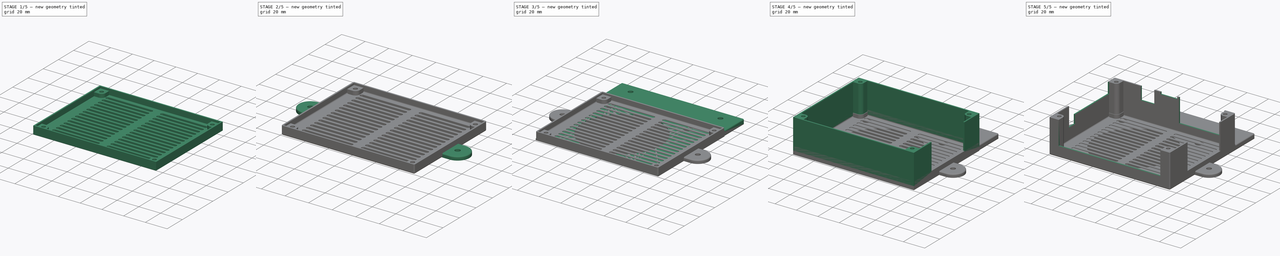
[diagram: build sequence overview — one tinted view per stage of 5, left to right]
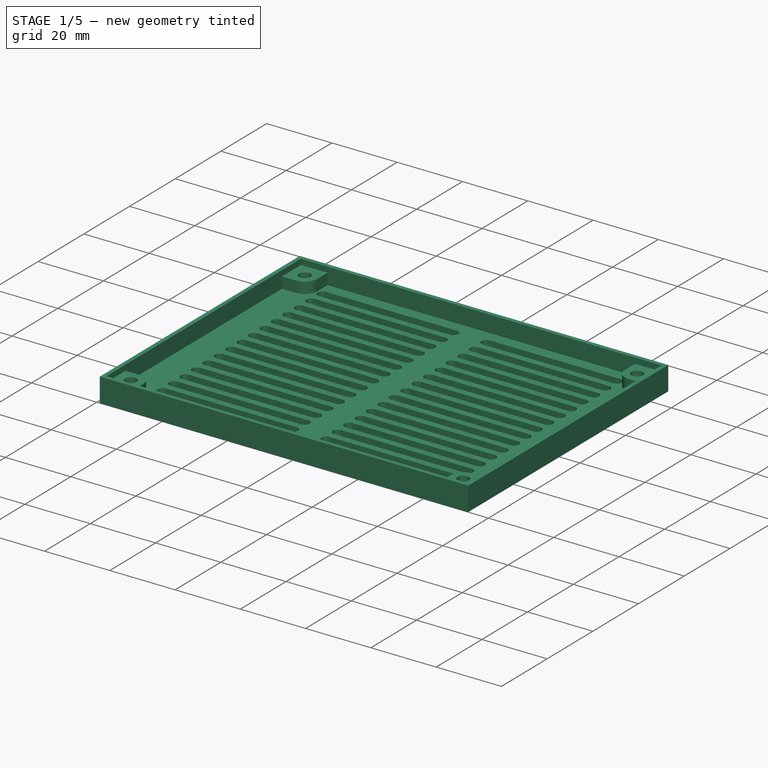
[diagram: stage 1 of 5 — iso view after this stage's code; geometry added in this stage tinted green]
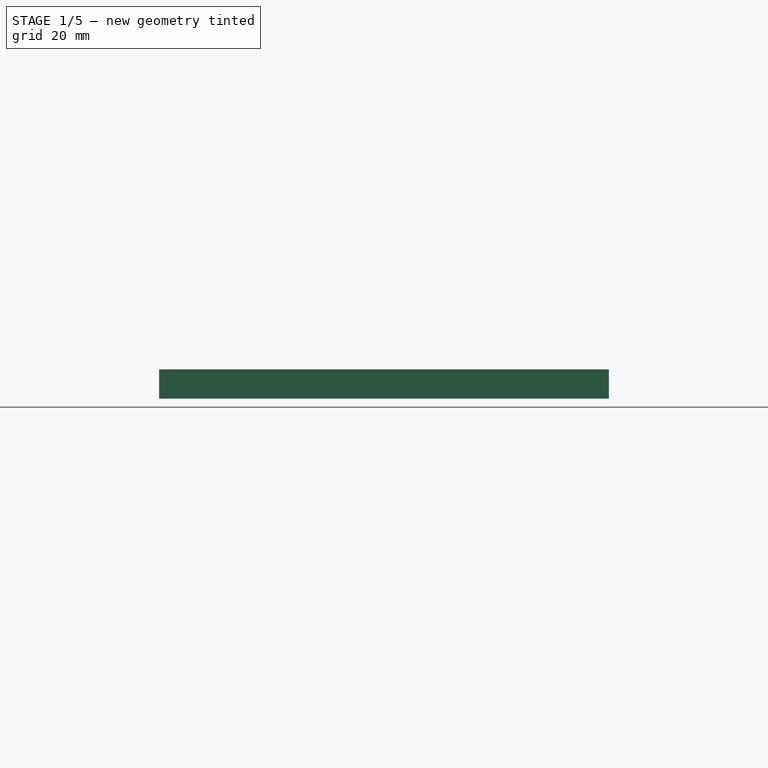
[diagram: stage 1 of 5 — front view after this stage's code; geometry added in this stage tinted green]
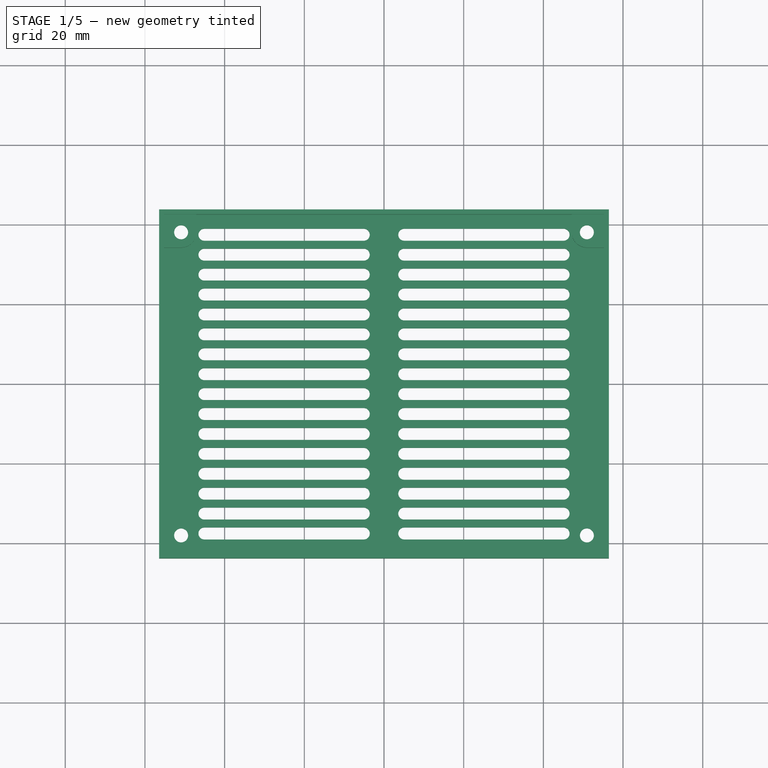
[diagram: stage 1 of 5 — top view after this stage's code; geometry added in this stage tinted green]
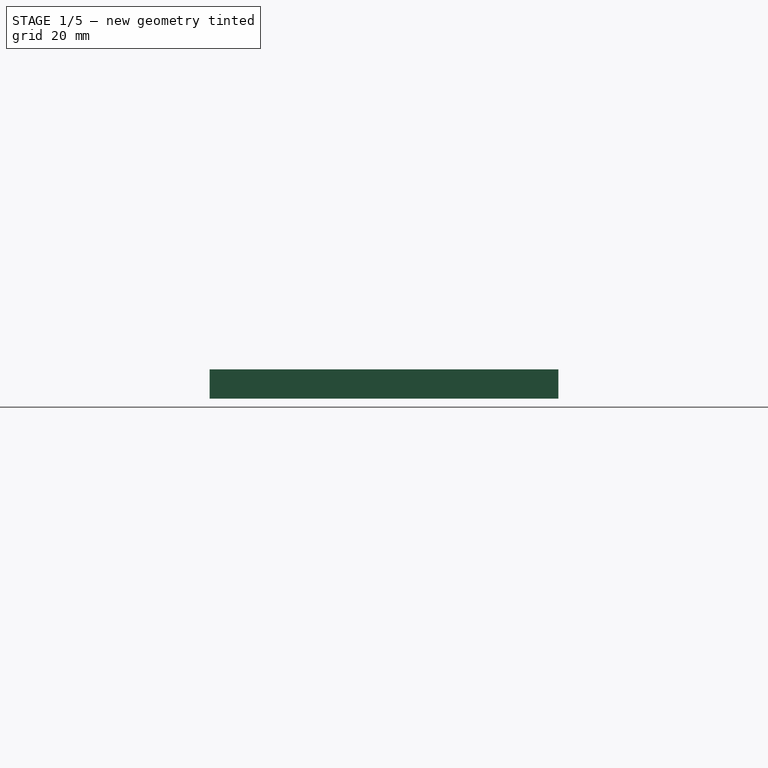
[diagram: stage 1 of 5 — right view after this stage's code; geometry added in this stage tinted green]
FCSTD DOCUMENT  (FreeCAD 0.18.1R)
Label: SKRCaseV4
License: All rights reserved
LicenseURL: http://en.wikipedia.org/wiki/All_rights_reserved
objects: Sketcher::SketchObject×14, PartDesign::Pad×9, PartDesign::Pocket×4, PartDesign::Fillet×3, PartDesign::Body×3, Spreadsheet::Sheet×2, PartDesign::Chamfer×1, PartDesign::FeatureBase×1, App::Part×1
note: 48 computed .brp shape members not serialized (recipe doc carries the construction recipe); baked Part::Feature solids carry a one-line shape summary decoded from their .brp

FEATURE [PartDesign::Body] Body001  label="Cap"
  Group = -> [Sketch006,Pad005,Chamfer,Sketch007,Pad006,Sketch009,Pad007,Sketch008,Pocket,Sketch010,Pocket001,Sketch011,Pocket002,Sketch012,Pocket003,Fillet001]
  Origin = -> Origin002
  Tip = -> Fillet001
FEATURE [Sketcher::SketchObject] Sketch013  label="VFlaps"
  MapMode = 5
  Support = -> [XY_Plane005]
  expr: Constraints[16] = Screws.M3Radius
  expr: Constraints[85] = Template.Constraints.SupportRadius
  expr: Constraints[12] = Template.Constraints.PCBLong
  expr: Constraints[139] = Template.Constraints.WallThickness
  expr: Constraints[138] = Template.Constraints.Tolerance
  expr: Constraints[171] = Screws.M4Radius
  expr: Constraints[19] = Template.Constraints.HoleDistanceShort
  expr: Constraints[18] = Template.Constraints.HoleDistanceLong
  expr: Constraints[17] = Template.Constraints.PCBShort
  sketch-geometry (64):
    g0: LineSegment [constr] StartX=-54.835 StartY=42.15 StartZ=0 EndX=54.835 EndY=42.15 EndZ=0
    g1: LineSegment [constr] StartX=54.835 StartY=42.15 StartZ=0 EndX=54.835 EndY=-42.15 EndZ=0
    g2: LineSegment [constr] StartX=54.835 StartY=-42.15 StartZ=0 EndX=-54.835 EndY=-42.15 EndZ=0
    g3: LineSegment [constr] StartX=-54.835 StartY=-42.15 StartZ=0 EndX=-54.835 EndY=42.15 EndZ=0
    g4: Circle [constr] CenterX=-50.925 CenterY=38.05 CenterZ=0 NormalX=0 NormalY=0 NormalZ=1 AngleXU=0 Radius=1.75
    g5: Circle [constr] CenterX=50.925 CenterY=38.05 CenterZ=0 NormalX=0 NormalY=0 NormalZ=1 AngleXU=0 Radius=1.75
    g6: Circle [constr] CenterX=-50.925 CenterY=-38.05 CenterZ=0 NormalX=0 NormalY=0 NormalZ=1 AngleXU=0 Radius=1.75
    g7: Circle [constr] CenterX=50.925 CenterY=-38.05 CenterZ=0 NormalX=0 NormalY=0 NormalZ=1 AngleXU=0 Radius=1.75
    g8: LineSegment [constr] StartX=-55.235 StartY=42.55 StartZ=0 EndX=-47.115 EndY=42.55 EndZ=0
    g9: LineSegment [constr] StartX=-47.115 StartY=42.55 StartZ=0 EndX=47.115 EndY=42.55 EndZ=0
    g10: LineSegment [constr] StartX=47.115 StartY=42.55 StartZ=0 EndX=55.235 EndY=42.55 EndZ=0
    g11: LineSegment [constr] StartX=-55.235 StartY=42.55 StartZ=0 EndX=-55.235 EndY=34.24 EndZ=0
    g12: LineSegment [constr] StartX=-55.235 StartY=34.24 StartZ=0 EndX=-55.235 EndY=-34.24 EndZ=0
    g13: LineSegment [constr] StartX=-55.235 StartY=-34.24 StartZ=0 EndX=-55.235 EndY=-42.55 EndZ=0
    g14: LineSegment [constr] StartX=-55.235 StartY=-42.55 StartZ=0 EndX=-47.115 EndY=-42.55 EndZ=0
    g15: LineSegment [constr] StartX=-47.115 StartY=-42.55 StartZ=0 EndX=47.115 EndY=-42.55 EndZ=0
    g16: LineSegment [constr] StartX=47.115 StartY=-42.55 StartZ=0 EndX=55.235 EndY=-42.55 EndZ=0
    g17: LineSegment [constr] StartX=55.235 StartY=-42.55 StartZ=0 EndX=55.235 EndY=-34.24 EndZ=0
    g18: LineSegment [constr] StartX=55.235 StartY=-34.24 StartZ=0 EndX=55.235 EndY=34.24 EndZ=0
    g19: LineSegment [constr] StartX=55.235 StartY=34.24 StartZ=0 EndX=55.235 EndY=42.55 EndZ=0
    g20: LineSegment [constr] StartX=-55.235 StartY=34.24 StartZ=0 EndX=-50.925 EndY=34.24 EndZ=0
    g21: LineSegment [constr] StartX=-47.115 StartY=42.55 StartZ=0 EndX=-47.115 EndY=38.05 EndZ=0
    g22: ArcOfCircle [constr] CenterX=-50.925 CenterY=38.05 CenterZ=0 NormalX=0 NormalY=0 NormalZ=1 AngleXU=0 Radius=3.81 StartAngle=4.71239 EndAngle=6.28319
    g23: LineSegment [constr] StartX=-50.925 StartY=38.05 StartZ=0 EndX=-50.925 EndY=34.24 EndZ=0
    g24: LineSegment [constr] StartX=-50.925 StartY=38.05 StartZ=0 EndX=-47.115 EndY=38.05 EndZ=0
    g25: LineSegment [constr] StartX=-54.835 StartY=42.15 StartZ=0 EndX=-54.835 EndY=42.55 EndZ=0
    g26: LineSegment [constr] StartX=-54.835 StartY=42.15 StartZ=0 EndX=-55.235 EndY=42.15 EndZ=0
    g27: LineSegment [constr] StartX=54.835 StartY=-42.15 StartZ=0 EndX=54.835 EndY=-42.55 EndZ=0
    g28: LineSegment [constr] StartX=54.835 StartY=-42.15 StartZ=0 EndX=55.235 EndY=-42.15 EndZ=0
    g29: LineSegment [constr] StartX=55.235 StartY=-34.24 StartZ=0 EndX=50.925 EndY=-34.24 EndZ=0
    g30: LineSegment [constr] StartX=47.115 StartY=-42.55 StartZ=0 EndX=47.115 EndY=-38.05 EndZ=0
    g31: ArcOfCircle [constr] CenterX=50.925 CenterY=-38.05 CenterZ=0 NormalX=0 NormalY=0 NormalZ=1 AngleXU=0 Radius=3.81 StartAngle=1.5708 EndAngle=3.14159
    g32: LineSegment [constr] StartX=50.925 StartY=-38.05 StartZ=0 EndX=50.925 EndY=-34.24 EndZ=0
    g33: LineSegment [constr] StartX=50.925 StartY=-38.05 StartZ=0 EndX=47.115 EndY=-38.05 EndZ=0
    g34: LineSegment [constr] StartX=47.115 StartY=42.55 StartZ=0 EndX=47.115 EndY=38.05 EndZ=0
    g35: LineSegment [constr] StartX=47.115 StartY=38.05 StartZ=0 EndX=50.925 EndY=38.05 EndZ=0
    g36: LineSegment [constr] StartX=55.235 StartY=34.24 StartZ=0 EndX=50.925 EndY=34.24 EndZ=0
    g37: LineSegment [constr] StartX=50.925 StartY=34.24 StartZ=0 EndX=50.925 EndY=38.05 EndZ=0
    g38: ArcOfCircle [constr] CenterX=50.925 CenterY=38.05 CenterZ=0 NormalX=0 NormalY=0 NormalZ=1 AngleXU=0 Radius=3.81 StartAngle=3.14159 EndAngle=4.71239
    g39: LineSegment [constr] StartX=-47.115 StartY=-42.55 StartZ=0 EndX=-47.115 EndY=-38.05 EndZ=0
    g40: LineSegment [constr] StartX=-47.115 StartY=-38.05 StartZ=0 EndX=-50.925 EndY=-38.05 EndZ=0
    g41: LineSegment [constr] StartX=-55.235 StartY=-34.24 StartZ=0 EndX=-50.925 EndY=-34.24 EndZ=0
    g42: LineSegment [constr] StartX=-50.925 StartY=-34.24 StartZ=0 EndX=-50.925 EndY=-38.05 EndZ=0
    g43: ArcOfCircle [constr] CenterX=-50.925 CenterY=-38.05 CenterZ=0 NormalX=0 NormalY=0 NormalZ=1 AngleXU=0 Radius=3.81 StartAngle=2e-16 EndAngle=1.5708
    g44: LineSegment [constr] StartX=-56.455 StartY=43.77 StartZ=0 EndX=56.455 EndY=43.77 EndZ=0
    g45: LineSegment [constr] StartX=56.455 StartY=43.77 StartZ=0 EndX=56.455 EndY=-43.77 EndZ=0
    g46: LineSegment [constr] StartX=56.455 StartY=-43.77 StartZ=0 EndX=-56.455 EndY=-43.77 EndZ=0
    g47: LineSegment [constr] StartX=-56.455 StartY=-43.77 StartZ=0 EndX=-56.455 EndY=43.77 EndZ=0
    g48: LineSegment [constr] StartX=-55.235 StartY=42.55 StartZ=0 EndX=-55.235 EndY=43.77 EndZ=0
    g49: LineSegment [constr] StartX=-55.235 StartY=42.55 StartZ=0 EndX=-56.455 EndY=42.55 EndZ=0
    g50: LineSegment [constr] StartX=55.235 StartY=-42.55 StartZ=0 EndX=56.455 EndY=-42.55 EndZ=0
    g51: LineSegment [constr] StartX=55.235 StartY=-42.55 StartZ=0 EndX=55.235 EndY=-43.77 EndZ=0
    g52: LineSegment StartX=-56.455 StartY=-10 StartZ=0 EndX=-62.455 EndY=-10 EndZ=0
    g53: LineSegment [constr] StartX=-62.455 StartY=-10 StartZ=0 EndX=-62.455 EndY=10 EndZ=0
    g54: LineSegment StartX=-62.455 StartY=10 StartZ=0 EndX=-56.455 EndY=10 EndZ=0
    g55: LineSegment StartX=-56.455 StartY=10 StartZ=0 EndX=-56.455 EndY=-10 EndZ=0
    g56: LineSegment StartX=56.455 StartY=-10 StartZ=0 EndX=62.455 EndY=-10 EndZ=0
    g57: LineSegment [constr] StartX=62.455 StartY=-10 StartZ=0 EndX=62.455 EndY=10 EndZ=0
    g58: LineSegment StartX=62.455 StartY=10 StartZ=0 EndX=56.455 EndY=10 EndZ=0
    g59: LineSegment StartX=56.455 StartY=10 StartZ=0 EndX=56.455 EndY=-10 EndZ=0
    g60: ArcOfCircle CenterX=-62.455 CenterY=1e-16 CenterZ=0 NormalX=0 NormalY=0 NormalZ=1 AngleXU=0 Radius=10 StartAngle=1.5708 EndAngle=4.71239
    g61: ArcOfCircle CenterX=62.455 CenterY=1e-16 CenterZ=0 NormalX=0 NormalY=0 NormalZ=1 AngleXU=0 Radius=10 StartAngle=4.71239 EndAngle=7.85398
    g62: Circle CenterX=-62.455 CenterY=1e-16 CenterZ=0 NormalX=0 NormalY=0 NormalZ=1 AngleXU=0 Radius=2.2
    g63: Circle CenterX=62.455 CenterY=1e-16 CenterZ=0 NormalX=0 NormalY=0 NormalZ=1 AngleXU=0 Radius=2.2
  constraints (172):
    c: Coincident(g0,g1)
    c: Coincident(g1,g2)
    c: Coincident(g2,g3)
    c: Coincident(g3,g0)
    c: Horizontal(g0)
    c: Horizontal(g2)
    c: Vertical(g1)
    c: Vertical(g3)
    c: Symmetric(g0,g1,g-1)
    c: Symmetric(g4,g5,g-2)
    c: Symmetric(g6,g7,g-2)
    c: Symmetric(g6,g4,g-1)
    c: DistanceX(g0,g0) = 109.67
    c: Equal(g4,g5)
    c: Equal(g5,g7)
    c: Equal(g7,g6)
    c: Radius(g4) = 1.75
    c: DistanceY(g3,g3) = 84.3
    c: DistanceX(g4,g5) = 101.85
    c: DistanceY(g6,g4) = 76.1
    c: Horizontal(g8)
    c: Coincident(g8,g9)
    c: Horizontal(g9)
    c: Coincident(g9,g10)
    c: Horizontal(g10)
    c: Coincident(g8,g11)
    c: Vertical(g11)
    c: Coincident(g11,g12)
    c: Vertical(g12)
    c: Coincident(g12,g13)
    c: Vertical(g13)
    c: Coincident(g13,g14)
    c: Horizontal(g14)
    c: Coincident(g14,g15)
    c: Horizontal(g15)
    c: Coincident(g15,g16)
    c: Horizontal(g16)
    c: Coincident(g16,g17)
    c: Vertical(g17)
    c: Coincident(g17,g18)
    c: Vertical(g18)
    c: Coincident(g18,g19)
    c: Coincident(g19,g10)
    c: Vertical(g19)
    c: Coincident(g20,g11)
    c: Horizontal(g20)
    c: Coincident(g21,g8)
    c: Vertical(g21)
    c: Coincident(g22,g4)
    c: Coincident(g22,g21)
    c: Coincident(g22,g20)
    c: Coincident(g23,g4)
    c: Coincident(g23,g20)
    c: Vertical(g23)
    c: Coincident(g24,g4)
    c: Coincident(g24,g21)
    c: Horizontal(g24)
    c: Coincident(g25,g0)
    c: PointOnObject(g25,g8)
    c: Vertical(g25)
    c: Coincident(g26,g0)
    c: PointOnObject(g26,g11)
    c: Horizontal(g26)
    c: Coincident(g27,g1)
    c: PointOnObject(g27,g16)
    c: Vertical(g27)
    c: Coincident(g28,g1)
    c: PointOnObject(g28,g17)
    c: Horizontal(g28)
    c: Equal(g28,g27)
    c: Equal(g27,g25)
    c: Equal(g25,g26)
    c: Coincident(g29,g17)
    c: Horizontal(g29)
    c: Coincident(g30,g15)
    c: Vertical(g30)
    c: Coincident(g31,g7)
    c: Coincident(g31,g29)
    c: Coincident(g31,g30)
    c: Coincident(g32,g7)
    c: Coincident(g32,g29)
    c: Vertical(g32)
    c: Coincident(g33,g7)
    c: Coincident(g33,g30)
    c: Horizontal(g33)
    c: Radius(g22) = 3.81
    c: Coincident(g34,g9)
    c: Vertical(g34)
    c: Coincident(g35,g34)
    c: Coincident(g35,g5)
    c: Horizontal(g35)
    c: Coincident(g36,g18)
    c: Horizontal(g36)
    c: Coincident(g37,g36)
    c: Coincident(g37,g5)
    c: Vertical(g37)
    c: Coincident(g38,g5)
    c: Coincident(g38,g34)
    c: Coincident(g38,g36)
    c: Coincident(g14,g39)
    c: Vertical(g39)
    c: Coincident(g39,g40)
    c: Coincident(g40,g6)
    c: Horizontal(g40)
    c: Coincident(g12,g41)
    c: Horizontal(g41)
    c: Coincident(g41,g42)
    c: Coincident(g42,g6)
    c: Vertical(g42)
    c: Coincident(g43,g6)
    c: Coincident(g43,g41)
    c: Coincident(g43,g39)
    c: Equal(g22,g38)
    c: Equal(g38,g31)
    c: Equal(g31,g43)
    c: Coincident(g44,g45)
    c: Coincident(g45,g46)
    c: Coincident(g46,g47)
    c: Coincident(g47,g44)
    c: Horizontal(g44)
    c: Horizontal(g46)
    c: Vertical(g45)
    c: Vertical(g47)
    c: Coincident(g48,g8)
    c: PointOnObject(g48,g44)
    c: Vertical(g48)
    c: Coincident(g49,g8)
    c: PointOnObject(g49,g47)
    c: Horizontal(g49)
    c: Coincident(g50,g16)
    c: PointOnObject(g50,g45)
    c: Horizontal(g50)
    c: Coincident(g51,g16)
    c: PointOnObject(g51,g46)
    c: Vertical(g51)
    c: Equal(g51,g50)
    c: Equal(g50,g48)
    c: Equal(g48,g49)
    c: DistanceX(g26,g26) = 0.4
    c: DistanceX(g49,g49) = 1.22
    c: Coincident(g52,g53)
    c: Coincident(g53,g54)
    c: Coincident(g54,g55)
    c: Coincident(g55,g52)
    c: Horizontal(g52)
    c: Horizontal(g54)
    c: Vertical(g53)
    c: PointOnObject(g52,g47)
    c: Coincident(g56,g57)
    c: Coincident(g57,g58)
    c: Coincident(g58,g59)
    c: Coincident(g59,g56)
    c: Horizontal(g56)
    c: Horizontal(g58)
    c: Vertical(g57)
    c: PointOnObject(g56,g45)
    c: Symmetric(g54,g52,g-1)
    c: Symmetric(g58,g56,g-1)
    c: Equal(g55,g59)
    c: DistanceY(g53,g53) = 20
    c: PointOnObject(g60,g53)
    c: Coincident(g60,g54)
    c: Coincident(g60,g52)
    c: PointOnObject(g61,g57)
    c: Coincident(g61,g58)
    c: Coincident(g61,g56)
    c: DistanceX(g54,g54) = 6
    c: Equal(g54,g58)
    c: Coincident(g62,g60)
    c: Coincident(g63,g61)
    c: Equal(g63,g62)
    c: Radius(g62) = 2.2
FEATURE [Sketcher::SketchObject] Sketch  label="Template"
  MapMode = 5
  Support = -> [XY_Plane001]
  expr: Constraints.SupportRadius = Screws.M3NutRadius + 0.41mm
  expr: Constraints[84] = Screws.M3NutRadius
  sketch-geometry (76):
    g0: LineSegment [constr] StartX=-54.835 StartY=42.15 StartZ=0 EndX=54.835 EndY=42.15 EndZ=0
    g1: LineSegment [constr] StartX=54.835 StartY=42.15 StartZ=0 EndX=54.835 EndY=-42.15 EndZ=0
    g2: LineSegment [constr] StartX=54.835 StartY=-42.15 StartZ=0 EndX=-54.835 EndY=-42.15 EndZ=0
    g3: LineSegment [constr] StartX=-54.835 StartY=-42.15 StartZ=0 EndX=-54.835 EndY=42.15 EndZ=0
    g4: LineSegment [constr] StartX=-47.9805 StartY=36.35 StartZ=0 EndX=-47.9805 EndY=39.75 EndZ=0
    g5: LineSegment [constr] StartX=-47.9805 StartY=39.75 StartZ=0 EndX=-50.925 EndY=41.45 EndZ=0
    g6: LineSegment [constr] StartX=-50.925 StartY=41.45 StartZ=0 EndX=-53.8695 EndY=39.75 EndZ=0
    g7: LineSegment [constr] StartX=-53.8695 StartY=39.75 StartZ=0 EndX=-53.8695 EndY=36.35 EndZ=0
    g8: LineSegment [constr] StartX=-53.8695 StartY=36.35 StartZ=0 EndX=-50.925 EndY=34.65 EndZ=0
    g9: LineSegment [constr] StartX=-50.925 StartY=34.65 StartZ=0 EndX=-47.9805 EndY=36.35 EndZ=0
    g10: Circle [constr] CenterX=-50.925 CenterY=38.05 CenterZ=0 NormalX=0 NormalY=0 NormalZ=1 AngleXU=0 Radius=3.4
    g11: LineSegment [constr] StartX=47.9805 StartY=36.35 StartZ=0 EndX=47.9805 EndY=39.75 EndZ=0
    g12: LineSegment [constr] StartX=47.9805 StartY=39.75 StartZ=0 EndX=50.925 EndY=41.45 EndZ=0
    g13: LineSegment [constr] StartX=50.925 StartY=41.45 StartZ=0 EndX=53.8695 EndY=39.75 EndZ=0
    g14: LineSegment [constr] StartX=53.8695 StartY=39.75 StartZ=0 EndX=53.8695 EndY=36.35 EndZ=0
    g15: LineSegment [constr] StartX=53.8695 StartY=36.35 StartZ=0 EndX=50.925 EndY=34.65 EndZ=0
    g16: LineSegment [constr] StartX=50.925 StartY=34.65 StartZ=0 EndX=47.9805 EndY=36.35 EndZ=0
    g17: Circle [constr] CenterX=50.925 CenterY=38.05 CenterZ=0 NormalX=0 NormalY=0 NormalZ=1 AngleXU=0 Radius=3.4
    g18: LineSegment [constr] StartX=-50.925 StartY=-34.65 StartZ=0 EndX=-47.9805 EndY=-36.35 EndZ=0
    g19: LineSegment [constr] StartX=-47.9805 StartY=-36.35 StartZ=0 EndX=-47.9805 EndY=-39.75 EndZ=0
    g20: LineSegment [constr] StartX=-47.9805 StartY=-39.75 StartZ=0 EndX=-50.925 EndY=-41.45 EndZ=0
    g21: LineSegment [constr] StartX=-50.925 StartY=-41.45 StartZ=0 EndX=-53.8695 EndY=-39.75 EndZ=0
    g22: LineSegment [constr] StartX=-53.8695 StartY=-39.75 StartZ=0 EndX=-53.8695 EndY=-36.35 EndZ=0
    g23: LineSegment [constr] StartX=-53.8695 StartY=-36.35 StartZ=0 EndX=-50.925 EndY=-34.65 EndZ=0
    g24: Circle [constr] CenterX=-50.925 CenterY=-38.05 CenterZ=0 NormalX=0 NormalY=0 NormalZ=1 AngleXU=0 Radius=3.4
    g25: LineSegment [constr] StartX=47.9805 StartY=-36.35 StartZ=0 EndX=47.9805 EndY=-39.75 EndZ=0
    g26: LineSegment [constr] StartX=47.9805 StartY=-39.75 StartZ=0 EndX=50.925 EndY=-41.45 EndZ=0
    g27: LineSegment [constr] StartX=50.925 StartY=-41.45 StartZ=0 EndX=53.8695 EndY=-39.75 EndZ=0
    g28: LineSegment [constr] StartX=53.8695 StartY=-39.75 StartZ=0 EndX=53.8695 EndY=-36.35 EndZ=0
    g29: LineSegment [constr] StartX=53.8695 StartY=-36.35 StartZ=0 EndX=50.925 EndY=-34.65 EndZ=0
    g30: LineSegment [constr] StartX=50.925 StartY=-34.65 StartZ=0 EndX=47.9805 EndY=-36.35 EndZ=0
    g31: Circle [constr] CenterX=50.925 CenterY=-38.05 CenterZ=0 NormalX=0 NormalY=0 NormalZ=1 AngleXU=0 Radius=3.4
    g32: LineSegment [constr] StartX=-55.235 StartY=42.55 StartZ=0 EndX=-47.115 EndY=42.55 EndZ=0
    g33: LineSegment [constr] StartX=-47.115 StartY=42.55 StartZ=0 EndX=47.115 EndY=42.55 EndZ=0
    g34: LineSegment [constr] StartX=47.115 StartY=42.55 StartZ=0 EndX=55.235 EndY=42.55 EndZ=0
    g35: LineSegment [constr] StartX=-55.235 StartY=42.55 StartZ=0 EndX=-55.235 EndY=34.24 EndZ=0
    g36: LineSegment [constr] StartX=-55.235 StartY=34.24 StartZ=0 EndX=-55.235 EndY=-34.24 EndZ=0
    g37: LineSegment [constr] StartX=-55.235 StartY=-34.24 StartZ=0 EndX=-55.235 EndY=-42.55 EndZ=0
    g38: LineSegment [constr] StartX=-55.235 StartY=-42.55 StartZ=0 EndX=-47.115 EndY=-42.55 EndZ=0
    g39: LineSegment [constr] StartX=-47.115 StartY=-42.55 StartZ=0 EndX=47.115 EndY=-42.55 EndZ=0
    g40: LineSegment [constr] StartX=47.115 StartY=-42.55 StartZ=0 EndX=55.235 EndY=-42.55 EndZ=0
    g41: LineSegment [constr] StartX=55.235 StartY=-42.55 StartZ=0 EndX=55.235 EndY=-34.24 EndZ=0
    g42: LineSegment [constr] StartX=55.235 StartY=-34.24 StartZ=0 EndX=55.235 EndY=34.24 EndZ=0
    g43: LineSegment [constr] StartX=55.235 StartY=34.24 StartZ=0 EndX=55.235 EndY=42.55 EndZ=0
    g44: LineSegment [constr] StartX=-55.235 StartY=34.24 StartZ=0 EndX=-50.925 EndY=34.24 EndZ=0
    g45: LineSegment [constr] StartX=-47.115 StartY=42.55 StartZ=0 EndX=-47.115 EndY=38.05 EndZ=0
    g46: ArcOfCircle [constr] CenterX=-50.925 CenterY=38.05 CenterZ=0 NormalX=0 NormalY=0 NormalZ=1 AngleXU=0 Radius=3.81 StartAngle=4.71239 EndAngle=6.28319
    g47: LineSegment [constr] StartX=-50.925 StartY=38.05 StartZ=0 EndX=-50.925 EndY=34.24 EndZ=0
    g48: LineSegment [constr] StartX=-50.925 StartY=38.05 StartZ=0 EndX=-47.115 EndY=38.05 EndZ=0
    g49: LineSegment [constr] StartX=-54.835 StartY=42.15 StartZ=0 EndX=-54.835 EndY=42.55 EndZ=0
    g50: LineSegment [constr] StartX=-54.835 StartY=42.15 StartZ=0 EndX=-55.235 EndY=42.15 EndZ=0
    g51: LineSegment [constr] StartX=54.835 StartY=-42.15 StartZ=0 EndX=54.835 EndY=-42.55 EndZ=0
    g52: LineSegment [constr] StartX=54.835 StartY=-42.15 StartZ=0 EndX=55.235 EndY=-42.15 EndZ=0
    g53: LineSegment [constr] StartX=55.235 StartY=-34.24 StartZ=0 EndX=50.925 EndY=-34.24 EndZ=0
    g54: LineSegment [constr] StartX=47.115 StartY=-42.55 StartZ=0 EndX=47.115 EndY=-38.05 EndZ=0
    g55: ArcOfCircle [constr] CenterX=50.925 CenterY=-38.05 CenterZ=0 NormalX=0 NormalY=0 NormalZ=1 AngleXU=0 Radius=3.81 StartAngle=1.5708 EndAngle=3.14159
    g56: LineSegment [constr] StartX=50.925 StartY=-38.05 StartZ=0 EndX=50.925 EndY=-34.24 EndZ=0
    g57: LineSegment [constr] StartX=50.925 StartY=-38.05 StartZ=0 EndX=47.115 EndY=-38.05 EndZ=0
    g58: LineSegment [constr] StartX=47.115 StartY=42.55 StartZ=0 EndX=47.115 EndY=38.05 EndZ=0
    g59: LineSegment [constr] StartX=47.115 StartY=38.05 StartZ=0 EndX=50.925 EndY=38.05 EndZ=0
    g60: LineSegment [constr] StartX=55.235 StartY=34.24 StartZ=0 EndX=50.925 EndY=34.24 EndZ=0
    g61: LineSegment [constr] StartX=50.925 StartY=34.24 StartZ=0 EndX=50.925 EndY=38.05 EndZ=0
    g62: ArcOfCircle [constr] CenterX=50.925 CenterY=38.05 CenterZ=0 NormalX=0 NormalY=0 NormalZ=1 AngleXU=0 Radius=3.81 StartAngle=3.14159 EndAngle=4.71239
    g63: LineSegment [constr] StartX=-47.115 StartY=-42.55 StartZ=0 EndX=-47.115 EndY=-38.05 EndZ=0
    g64: LineSegment [constr] StartX=-47.115 StartY=-38.05 StartZ=0 EndX=-50.925 EndY=-38.05 EndZ=0
    g65: LineSegment [constr] StartX=-55.235 StartY=-34.24 StartZ=0 EndX=-50.925 EndY=-34.24 EndZ=0
    g66: LineSegment [constr] StartX=-50.925 StartY=-34.24 StartZ=0 EndX=-50.925 EndY=-38.05 EndZ=0
    g67: ArcOfCircle [constr] CenterX=-50.925 CenterY=-38.05 CenterZ=0 NormalX=0 NormalY=0 NormalZ=1 AngleXU=0 Radius=3.81 StartAngle=2e-16 EndAngle=1.5708
    g68: LineSegment [constr] StartX=-56.455 StartY=43.77 StartZ=0 EndX=56.455 EndY=43.77 EndZ=0
    g69: LineSegment [constr] StartX=56.455 StartY=43.77 StartZ=0 EndX=56.455 EndY=-43.77 EndZ=0
    g70: LineSegment [constr] StartX=56.455 StartY=-43.77 StartZ=0 EndX=-56.455 EndY=-43.77 EndZ=0
    g71: LineSegment [constr] StartX=-56.455 StartY=-43.77 StartZ=0 EndX=-56.455 EndY=43.77 EndZ=0
    g72: LineSegment [constr] StartX=-55.235 StartY=42.55 StartZ=0 EndX=-55.235 EndY=43.77 EndZ=0
    g73: LineSegment [constr] StartX=-55.235 StartY=42.55 StartZ=0 EndX=-56.455 EndY=42.55 EndZ=0
    g74: LineSegment [constr] StartX=55.235 StartY=-42.55 StartZ=0 EndX=56.455 EndY=-42.55 EndZ=0
    g75: LineSegment [constr] StartX=55.235 StartY=-42.55 StartZ=0 EndX=55.235 EndY=-43.77 EndZ=0
  constraints (198):
    c: Coincident(g0,g1)
    c: Coincident(g1,g2)
    c: Coincident(g2,g3)
    c: Coincident(g3,g0)
    c: Horizontal(g0)
    c: Horizontal(g2)
    c: Vertical(g1)
    c: Vertical(g3)
    c: Symmetric(g0,g1,g-1)
    c: Coincident(g4,g5)
    c: Coincident(g5,g6)
    c: Coincident(g6,g7)
    c: Coincident(g7,g8)
    c: Coincident(g8,g9)
    c: Coincident(g9,g4)
    c: Equal(g4, g5-g9) x5
    c: PointOnObject(g4,g10)
    c: PointOnObject(g5,g10)
    c: PointOnObject(g6,g10)
    c: PointOnObject(g7,g10)
    c: PointOnObject(g8,g10)
    c: PointOnObject(g9,g10)
    c: Coincident(g11,g12)
    c: Coincident(g12,g13)
    c: Coincident(g13,g14)
    c: Coincident(g14,g15)
    c: Coincident(g15,g16)
    c: Coincident(g16,g11)
    c: Equal(g11, g12-g16) x5
    c: PointOnObject(g11,g17)
    c: PointOnObject(g12,g17)
    c: PointOnObject(g13,g17)
    c: PointOnObject(g14,g17)
    c: PointOnObject(g15,g17)
    c: PointOnObject(g16,g17)
    c: Symmetric(g10,g17,g-2)
    c: Coincident(g18,g19)
    c: Coincident(g19,g20)
    c: Coincident(g20,g21)
    c: Coincident(g21,g22)
    c: Coincident(g22,g23)
    c: Coincident(g23,g18)
    c: Equal(g18, g19-g23) x5
    c: PointOnObject(g18,g24)
    c: PointOnObject(g19,g24)
    c: PointOnObject(g20,g24)
    c: PointOnObject(g21,g24)
    c: PointOnObject(g22,g24)
    c: PointOnObject(g23,g24)
    c: Coincident(g25,g26)
    c: Coincident(g26,g27)
    c: Coincident(g27,g28)
    c: Coincident(g28,g29)
    c: Coincident(g29,g30)
    c: Coincident(g30,g25)
    c: Equal(g25, g26-g30) x5
    c: PointOnObject(g25,g31)
    c: PointOnObject(g26,g31)
    c: PointOnObject(g27,g31)
    c: PointOnObject(g28,g31)
    c: PointOnObject(g29,g31)
    c: PointOnObject(g30,g31)
    c: Symmetric(g24,g31,g-2)
    c: Symmetric(g24,g10,g-1)
    c: DistanceX(g0,g0) = 109.67  'PCBLong'
    c: Equal(g10,g17)
    c: Equal(g17,g31)
    c: Equal(g31,g24)
    c: Radius(g10) = 3.4
    c: DistanceY(g3,g3) = 84.3  'PCBShort'
    c: Vertical(g7)
    c: Vertical(g11)
    c: Vertical(g25)
    c: Vertical(g22)
    c: DistanceX(g10,g17) = 101.85  'HoleDistanceLong'
    c: DistanceY(g24,g10) = 76.1  'HoleDistanceShort'
    c: Horizontal(g32)
    c: Coincident(g32,g33)
    c: Horizontal(g33)
    c: Coincident(g33,g34)
    c: Horizontal(g34)
    c: Coincident(g32,g35)
    c: Vertical(g35)
    c: Coincident(g35,g36)
    c: Vertical(g36)
    c: Coincident(g36,g37)
    c: Vertical(g37)
    c: Coincident(g37,g38)
    c: Horizontal(g38)
    c: Coincident(g38,g39)
    c: Horizontal(g39)
    c: Coincident(g39,g40)
    c: Horizontal(g40)
    c: Coincident(g40,g41)
    c: Vertical(g41)
    c: Coincident(g41,g42)
    c: Vertical(g42)
    c: Coincident(g42,g43)
    c: Coincident(g43,g34)
    c: Vertical(g43)
    c: Coincident(g44,g35)
    c: Horizontal(g44)
    c: Coincident(g45,g32)
    c: Vertical(g45)
    c: Coincident(g46,g10)
    c: Coincident(g46,g45)
    c: Coincident(g46,g44)
    c: Coincident(g47,g10)
    c: Coincident(g47,g44)
    c: Vertical(g47)
    c: Coincident(g48,g10)
    c: Coincident(g48,g45)
    c: Horizontal(g48)
    c: Coincident(g49,g0)
    c: PointOnObject(g49,g32)
    c: Vertical(g49)
    c: Coincident(g50,g0)
    c: PointOnObject(g50,g35)
    c: Horizontal(g50)
    c: Coincident(g51,g1)
    c: PointOnObject(g51,g40)
    c: Vertical(g51)
    c: Coincident(g52,g1)
    c: PointOnObject(g52,g41)
    c: Horizontal(g52)
    c: Equal(g52,g51)
    c: Equal(g51,g49)
    c: Equal(g49,g50)
    c: Coincident(g53,g41)
    c: Horizontal(g53)
    c: Coincident(g54,g39)
    c: Vertical(g54)
    c: Coincident(g55,g31)
    c: Coincident(g55,g53)
    c: Coincident(g55,g54)
    c: Coincident(g56,g31)
    c: Coincident(g56,g53)
    c: Vertical(g56)
    c: Coincident(g57,g31)
    c: Coincident(g57,g54)
    c: Horizontal(g57)
    c: Radius(g46) = 3.81  'SupportRadius'
    c: Coincident(g58,g33)
    c: Vertical(g58)
    c: Coincident(g59,g58)
    c: Coincident(g59,g17)
    c: Horizontal(g59)
    c: Coincident(g60,g42)
    c: Horizontal(g60)
    c: Coincident(g61,g60)
    c: Coincident(g61,g17)
    c: Vertical(g61)
    c: Coincident(g62,g17)
    c: Coincident(g62,g58)
    c: Coincident(g62,g60)
    c: Coincident(g38,g63)
    c: Vertical(g63)
    c: Coincident(g63,g64)
    c: Coincident(g64,g24)
    c: Horizontal(g64)
    c: Coincident(g36,g65)
    c: Horizontal(g65)
    c: Coincident(g65,g66)
    c: Coincident(g66,g24)
    c: Vertical(g66)
    c: Coincident(g67,g24)
    c: Coincident(g67,g65)
    c: Coincident(g67,g63)
    c: Equal(g46,g62)
    c: Equal(g62,g55)
    c: Equal(g55,g67)
    c: Coincident(g68,g69)
    c: Coincident(g69,g70)
    c: Coincident(g70,g71)
    c: Coincident(g71,g68)
    c: Horizontal(g68)
    c: Horizontal(g70)
    c: Vertical(g69)
    c: Vertical(g71)
    c: Coincident(g72,g32)
    c: PointOnObject(g72,g68)
    c: Vertical(g72)
    c: Coincident(g73,g32)
    c: PointOnObject(g73,g71)
    c: Horizontal(g73)
    c: Coincident(g74,g40)
    c: PointOnObject(g74,g69)
    c: Horizontal(g74)
    c: Coincident(g75,g40)
    c: PointOnObject(g75,g70)
    c: Vertical(g75)
    c: Equal(g75,g74)
    c: Equal(g74,g72)
    c: Equal(g72,g73)
    c: DistanceX(g50,g50) = 0.4  'Tolerance'
    c: DistanceX(g73,g73) = 1.22  'WallThickness'
    c: DistanceX(g68,g68) = 112.91  'TotalLong'
    c: DistanceY(g71,g71) = 87.54  'TotalShort'
FEATURE [Sketcher::SketchObject] Sketch001  label="Base"
  MapMode = 5
  Support = -> [XY_Plane001]
  expr: Constraints[210] = Template.Constraints.Tolerance
  expr: Constraints[91] = Template.Constraints.HoleDistanceShort
  expr: Constraints[157] = Template.Constraints.SupportRadius
  expr: Constraints[85] = Template.Constraints.PCBShort
  expr: Constraints[80] = Template.Constraints.PCBLong
  expr: Constraints[90] = Template.Constraints.HoleDistanceLong
  expr: Constraints[211] = Template.Constraints.WallThickness
  expr: Constraints[84] = Screws.M3NutRadius
  sketch-geometry (302):
    g0: LineSegment [constr] StartX=-54.835 StartY=42.15 StartZ=0 EndX=54.835 EndY=42.15 EndZ=0
    g1: LineSegment [constr] StartX=54.835 StartY=42.15 StartZ=0 EndX=54.835 EndY=-42.15 EndZ=0
    g2: LineSegment [constr] StartX=54.835 StartY=-42.15 StartZ=0 EndX=-54.835 EndY=-42.15 EndZ=0
    g3: LineSegment [constr] StartX=-54.835 StartY=-42.15 StartZ=0 EndX=-54.835 EndY=42.15 EndZ=0
    g4: LineSegment StartX=-47.9805 StartY=36.35 StartZ=0 EndX=-47.9805 EndY=39.75 EndZ=0
    g5: LineSegment StartX=-47.9805 StartY=39.75 StartZ=0 EndX=-50.925 EndY=41.45 EndZ=0
    g6: LineSegment StartX=-50.925 StartY=41.45 StartZ=0 EndX=-53.8695 EndY=39.75 EndZ=0
    g7: LineSegment StartX=-53.8695 StartY=39.75 StartZ=0 EndX=-53.8695 EndY=36.35 EndZ=0
    g8: LineSegment StartX=-53.8695 StartY=36.35 StartZ=0 EndX=-50.925 EndY=34.65 EndZ=0
    g9: LineSegment StartX=-50.925 StartY=34.65 StartZ=0 EndX=-47.9805 EndY=36.35 EndZ=0
    g10: Circle [constr] CenterX=-50.925 CenterY=38.05 CenterZ=0 NormalX=0 NormalY=0 NormalZ=1 AngleXU=0 Radius=3.4
    g11: LineSegment StartX=47.9805 StartY=36.35 StartZ=0 EndX=47.9805 EndY=39.75 EndZ=0
    g12: LineSegment StartX=47.9805 StartY=39.75 StartZ=0 EndX=50.925 EndY=41.45 EndZ=0
    g13: LineSegment StartX=50.925 StartY=41.45 StartZ=0 EndX=53.8695 EndY=39.75 EndZ=0
    g14: LineSegment StartX=53.8695 StartY=39.75 StartZ=0 EndX=53.8695 EndY=36.35 EndZ=0
    g15: LineSegment StartX=53.8695 StartY=36.35 StartZ=0 EndX=50.925 EndY=34.65 EndZ=0
    g16: LineSegment StartX=50.925 StartY=34.65 StartZ=0 EndX=47.9805 EndY=36.35 EndZ=0
    g17: Circle [constr] CenterX=50.925 CenterY=38.05 CenterZ=0 NormalX=0 NormalY=0 NormalZ=1 AngleXU=0 Radius=3.4
    g18: LineSegment StartX=-50.925 StartY=-34.65 StartZ=0 EndX=-47.9805 EndY=-36.35 EndZ=0
    g19: LineSegment StartX=-47.9805 StartY=-36.35 StartZ=0 EndX=-47.9805 EndY=-39.75 EndZ=0
    g20: LineSegment StartX=-47.9805 StartY=-39.75 StartZ=0 EndX=-50.925 EndY=-41.45 EndZ=0
    g21: LineSegment StartX=-50.925 StartY=-41.45 StartZ=0 EndX=-53.8695 EndY=-39.75 EndZ=0
    g22: LineSegment StartX=-53.8695 StartY=-39.75 StartZ=0 EndX=-53.8695 EndY=-36.35 EndZ=0
    g23: LineSegment StartX=-53.8695 StartY=-36.35 StartZ=0 EndX=-50.925 EndY=-34.65 EndZ=0
    g24: Circle [constr] CenterX=-50.925 CenterY=-38.05 CenterZ=0 NormalX=0 NormalY=0 NormalZ=1 AngleXU=0 Radius=3.4
    g25: LineSegment StartX=47.9805 StartY=-36.35 StartZ=0 EndX=47.9805 EndY=-39.75 EndZ=0
    g26: LineSegment StartX=47.9805 StartY=-39.75 StartZ=0 EndX=50.925 EndY=-41.45 EndZ=0
    g27: LineSegment StartX=50.925 StartY=-41.45 StartZ=0 EndX=53.8695 EndY=-39.75 EndZ=0
    g28: LineSegment StartX=53.8695 StartY=-39.75 StartZ=0 EndX=53.8695 EndY=-36.35 EndZ=0
    g29: LineSegment StartX=53.8695 StartY=-36.35 StartZ=0 EndX=50.925 EndY=-34.65 EndZ=0
    g30: LineSegment StartX=50.925 StartY=-34.65 StartZ=0 EndX=47.9805 EndY=-36.35 EndZ=0
    g31: Circle [constr] CenterX=50.925 CenterY=-38.05 CenterZ=0 NormalX=0 NormalY=0 NormalZ=1 AngleXU=0 Radius=3.4
    g32: LineSegment [constr] StartX=-55.235 StartY=42.55 StartZ=0 EndX=-47.115 EndY=42.55 EndZ=0
    g33: LineSegment [constr] StartX=-47.115 StartY=42.55 StartZ=0 EndX=47.115 EndY=42.55 EndZ=0
    g34: LineSegment [constr] StartX=47.115 StartY=42.55 StartZ=0 EndX=55.235 EndY=42.55 EndZ=0
    g35: LineSegment [constr] StartX=-55.235 StartY=42.55 StartZ=0 EndX=-55.235 EndY=34.24 EndZ=0
    g36: LineSegment [constr] StartX=-55.235 StartY=34.24 StartZ=0 EndX=-55.235 EndY=-34.24 EndZ=0
    g37: LineSegment [constr] StartX=-55.235 StartY=-34.24 StartZ=0 EndX=-55.235 EndY=-42.55 EndZ=0
    g38: LineSegment [constr] StartX=-55.235 StartY=-42.55 StartZ=0 EndX=-47.115 EndY=-42.55 EndZ=0
    g39: LineSegment [constr] StartX=-47.115 StartY=-42.55 StartZ=0 EndX=47.115 EndY=-42.55 EndZ=0
    g40: LineSegment [constr] StartX=47.115 StartY=-42.55 StartZ=0 EndX=55.235 EndY=-42.55 EndZ=0
    g41: LineSegment [constr] StartX=55.235 StartY=-42.55 StartZ=0 EndX=55.235 EndY=-34.24 EndZ=0
    g42: LineSegment [constr] StartX=55.235 StartY=-34.24 StartZ=0 EndX=55.235 EndY=34.24 EndZ=0
    g43: LineSegment [constr] StartX=55.235 StartY=34.24 StartZ=0 EndX=55.235 EndY=42.55 EndZ=0
    g44: LineSegment [constr] StartX=-55.235 StartY=34.24 StartZ=0 EndX=-50.925 EndY=34.24 EndZ=0
    g45: LineSegment [constr] StartX=-47.115 StartY=42.55 StartZ=0 EndX=-47.115 EndY=38.05 EndZ=0
    g46: ArcOfCircle [constr] CenterX=-50.925 CenterY=38.05 CenterZ=0 NormalX=0 NormalY=0 NormalZ=1 AngleXU=0 Radius=3.81 StartAngle=4.71239 EndAngle=6.28319
    g47: LineSegment [constr] StartX=-50.925 StartY=38.05 StartZ=0 EndX=-50.925 EndY=34.24 EndZ=0
    g48: LineSegment [constr] StartX=-50.925 StartY=38.05 StartZ=0 EndX=-47.115 EndY=38.05 EndZ=0
    g49: LineSegment [constr] StartX=-54.835 StartY=42.15 StartZ=0 EndX=-54.835 EndY=42.55 EndZ=0
    g50: LineSegment [constr] StartX=-54.835 StartY=42.15 StartZ=0 EndX=-55.235 EndY=42.15 EndZ=0
    g51: LineSegment [constr] StartX=54.835 StartY=-42.15 StartZ=0 EndX=54.835 EndY=-42.55 EndZ=0
    g52: LineSegment [constr] StartX=54.835 StartY=-42.15 StartZ=0 EndX=55.235 EndY=-42.15 EndZ=0
    g53: LineSegment [constr] StartX=55.235 StartY=-34.24 StartZ=0 EndX=50.925 EndY=-34.24 EndZ=0
    g54: LineSegment [constr] StartX=47.115 StartY=-42.55 StartZ=0 EndX=47.115 EndY=-38.05 EndZ=0
    g55: ArcOfCircle [constr] CenterX=50.925 CenterY=-38.05 CenterZ=0 NormalX=0 NormalY=0 NormalZ=1 AngleXU=0 Radius=3.81 StartAngle=1.5708 EndAngle=3.14159
    g56: LineSegment [constr] StartX=50.925 StartY=-38.05 StartZ=0 EndX=50.925 EndY=-34.24 EndZ=0
    g57: LineSegment [constr] StartX=50.925 StartY=-38.05 StartZ=0 EndX=47.115 EndY=-38.05 EndZ=0
    g58: LineSegment [constr] StartX=47.115 StartY=42.55 StartZ=0 EndX=47.115 EndY=38.05 EndZ=0
    g59: LineSegment [constr] StartX=47.115 StartY=38.05 StartZ=0 EndX=50.925 EndY=38.05 EndZ=0
    g60: LineSegment [constr] StartX=55.235 StartY=34.24 StartZ=0 EndX=50.925 EndY=34.24 EndZ=0
    g61: LineSegment [constr] StartX=50.925 StartY=34.24 StartZ=0 EndX=50.925 EndY=38.05 EndZ=0
    g62: ArcOfCircle [constr] CenterX=50.925 CenterY=38.05 CenterZ=0 NormalX=0 NormalY=0 NormalZ=1 AngleXU=0 Radius=3.81 StartAngle=3.14159 EndAngle=4.71239
    g63: LineSegment [constr] StartX=-47.115 StartY=-42.55 StartZ=0 EndX=-47.115 EndY=-38.05 EndZ=0
    g64: LineSegment [constr] StartX=-47.115 StartY=-38.05 StartZ=0 EndX=-50.925 EndY=-38.05 EndZ=0
    g65: LineSegment [constr] StartX=-55.235 StartY=-34.24 StartZ=0 EndX=-50.925 EndY=-34.24 EndZ=0
    g66: LineSegment [constr] StartX=-50.925 StartY=-34.24 StartZ=0 EndX=-50.925 EndY=-38.05 EndZ=0
    g67: ArcOfCircle [constr] CenterX=-50.925 CenterY=-38.05 CenterZ=0 NormalX=0 NormalY=0 NormalZ=1 AngleXU=0 Radius=3.81 StartAngle=2e-16 EndAngle=1.5708
    g68: LineSegment StartX=-56.455 StartY=43.77 StartZ=0 EndX=56.455 EndY=43.77 EndZ=0
    g69: LineSegment StartX=56.455 StartY=43.77 StartZ=0 EndX=56.455 EndY=-43.77 EndZ=0
    g70: LineSegment StartX=56.455 StartY=-43.77 StartZ=0 EndX=-56.455 EndY=-43.77 EndZ=0
    g71: LineSegment StartX=-56.455 StartY=-43.77 StartZ=0 EndX=-56.455 EndY=43.77 EndZ=0
    g72: LineSegment [constr] StartX=-55.235 StartY=42.55 StartZ=0 EndX=-55.235 EndY=43.77 EndZ=0
    g73: LineSegment [constr] StartX=-55.235 StartY=42.55 StartZ=0 EndX=-56.455 EndY=42.55 EndZ=0
    g74: LineSegment [constr] StartX=55.235 StartY=-42.55 StartZ=0 EndX=56.455 EndY=-42.55 EndZ=0
    g75: LineSegment [constr] StartX=55.235 StartY=-42.55 StartZ=0 EndX=55.235 EndY=-43.77 EndZ=0
    g76: LineSegment StartX=-45.0783 StartY=39 StartZ=0 EndX=-5.07833 EndY=39 EndZ=0
    g77: LineSegment [constr] StartX=-5.07833 StartY=39 StartZ=0 EndX=-5.07833 EndY=36 EndZ=0
    g78: LineSegment StartX=-5.07833 StartY=36 StartZ=0 EndX=-45.0783 EndY=36 EndZ=0
    g79: LineSegment [constr] StartX=-45.0783 StartY=36 StartZ=0 EndX=-45.0783 EndY=39 EndZ=0
    g80: LineSegment StartX=5.07833 StartY=39 StartZ=0 EndX=45.0783 EndY=39 EndZ=0
    g81: LineSegment [constr] StartX=45.0783 StartY=39 StartZ=0 EndX=45.0783 EndY=36 EndZ=0
    g82: LineSegment StartX=45.0783 StartY=36 StartZ=0 EndX=5.07833 EndY=36 EndZ=0
    g83: LineSegment [constr] StartX=5.07833 StartY=36 StartZ=0 EndX=5.07833 EndY=39 EndZ=0
    g84: ArcOfCircle CenterX=-45.0783 CenterY=37.5 CenterZ=0 NormalX=0 NormalY=0 NormalZ=1 AngleXU=0 Radius=1.5 StartAngle=1.5708 EndAngle=4.71239
    g85: ArcOfCircle CenterX=-5.07833 CenterY=37.5 CenterZ=0 NormalX=0 NormalY=0 NormalZ=1 AngleXU=0 Radius=1.5 StartAngle=4.71239 EndAngle=7.85398
    g86: ArcOfCircle CenterX=5.07833 CenterY=37.5 CenterZ=0 NormalX=0 NormalY=0 NormalZ=1 AngleXU=0 Radius=1.5 StartAngle=1.5708 EndAngle=4.71239
    g87: ArcOfCircle CenterX=45.0783 CenterY=37.5 CenterZ=0 NormalX=0 NormalY=0 NormalZ=1 AngleXU=0 Radius=1.5 StartAngle=4.71239 EndAngle=7.85398
    g88: LineSegment [constr] StartX=-5.07833 StartY=39 StartZ=0 EndX=5.07833 EndY=39 EndZ=0
    g89: LineSegment [constr] StartX=-45.0783 StartY=36 StartZ=0 EndX=-55.235 EndY=36 EndZ=0
    g90: LineSegment [constr] StartX=-45.0783 StartY=36 StartZ=0 EndX=-45.0783 EndY=34 EndZ=0
    g91: LineSegment StartX=-45.0783 StartY=34 StartZ=0 EndX=-5.07833 EndY=34 EndZ=0
    g92: LineSegment [constr] StartX=-5.07833 StartY=34 StartZ=0 EndX=-5.07833 EndY=31 EndZ=0
    g93: LineSegment StartX=-5.07833 StartY=31 StartZ=0 EndX=-45.0783 EndY=31 EndZ=0
    g94: LineSegment [constr] StartX=-45.0783 StartY=31 StartZ=0 EndX=-45.0783 EndY=34 EndZ=0
    g95: LineSegment StartX=5.07833 StartY=34 StartZ=0 EndX=45.0783 EndY=34 EndZ=0
    g96: LineSegment [constr] StartX=45.0783 StartY=34 StartZ=0 EndX=45.0783 EndY=31 EndZ=0
    g97: LineSegment StartX=45.0783 StartY=31 StartZ=0 EndX=5.07833 EndY=31 EndZ=0
    g98: LineSegment [constr] StartX=5.07833 StartY=31 StartZ=0 EndX=5.07833 EndY=34 EndZ=0
    g99: ArcOfCircle CenterX=-45.0783 CenterY=32.5 CenterZ=0 NormalX=0 NormalY=0 NormalZ=1 AngleXU=0 Radius=1.5 StartAngle=1.5708 EndAngle=4.71239
    g100: ArcOfCircle CenterX=-5.07833 CenterY=32.5 CenterZ=0 NormalX=0 NormalY=0 NormalZ=1 AngleXU=0 Radius=1.5 StartAngle=4.71239 EndAngle=7.85398
    g101: ArcOfCircle CenterX=5.07833 CenterY=32.5 CenterZ=0 NormalX=0 NormalY=0 NormalZ=1 AngleXU=0 Radius=1.5 StartAngle=1.5708 EndAngle=4.71239
    g102: ArcOfCircle CenterX=45.0783 CenterY=32.5 CenterZ=0 NormalX=0 NormalY=0 NormalZ=1 AngleXU=0 Radius=1.5 StartAngle=4.71239 EndAngle=7.85398
    g103: LineSegment [constr] StartX=-5.07833 StartY=34 StartZ=0 EndX=5.07833 EndY=34 EndZ=0
    g104: LineSegment [constr] StartX=-45.0783 StartY=31 StartZ=0 EndX=-45.0783 EndY=29 EndZ=0
    g105: LineSegment StartX=-45.0783 StartY=29 StartZ=0 EndX=-5.07833 EndY=29 EndZ=0
    g106: LineSegment [constr] StartX=-5.07833 StartY=29 StartZ=0 EndX=-5.07833 EndY=26 EndZ=0
    g107: LineSegment StartX=-5.07833 StartY=26 StartZ=0 EndX=-45.0783 EndY=26 EndZ=0
    g108: LineSegment [constr] StartX=-45.0783 StartY=26 StartZ=0 EndX=-45.0783 EndY=29 EndZ=0
    g109: LineSegment StartX=5.07833 StartY=29 StartZ=0 EndX=45.0783 EndY=29 EndZ=0
    g110: LineSegment [constr] StartX=45.0783 StartY=29 StartZ=0 EndX=45.0783 EndY=26 EndZ=0
    g111: LineSegment StartX=45.0783 StartY=26 StartZ=0 EndX=5.07833 EndY=26 EndZ=0
    g112: LineSegment [constr] StartX=5.07833 StartY=26 StartZ=0 EndX=5.07833 EndY=29 EndZ=0
    g113: ArcOfCircle CenterX=-45.0783 CenterY=27.5 CenterZ=0 NormalX=0 NormalY=0 NormalZ=1 AngleXU=0 Radius=1.5 StartAngle=1.5708 EndAngle=4.71239
    g114: ArcOfCircle CenterX=-5.07833 CenterY=27.5 CenterZ=0 NormalX=0 NormalY=0 NormalZ=1 AngleXU=0 Radius=1.5 StartAngle=4.71239 EndAngle=7.85398
    g115: ArcOfCircle CenterX=5.07833 CenterY=27.5 CenterZ=0 NormalX=0 NormalY=0 NormalZ=1 AngleXU=0 Radius=1.5 StartAngle=1.5708 EndAngle=4.71239
    g116: ArcOfCircle CenterX=45.0783 CenterY=27.5 CenterZ=0 NormalX=0 NormalY=0 NormalZ=1 AngleXU=0 Radius=1.5 StartAngle=4.71239 EndAngle=7.85398
    g117: LineSegment [constr] StartX=-5.07833 StartY=29 StartZ=0 EndX=5.07833 EndY=29 EndZ=0
    g118: LineSegment [constr] StartX=-45.0783 StartY=26 StartZ=0 EndX=-45.0783 EndY=24 EndZ=0
    g119: LineSegment StartX=-45.0783 StartY=24 StartZ=0 EndX=-5.07833 EndY=24 EndZ=0
    g120: LineSegment [constr] StartX=-5.07833 StartY=24 StartZ=0 EndX=-5.07833 EndY=21 EndZ=0
    g121: LineSegment StartX=-5.07833 StartY=21 StartZ=0 EndX=-45.0783 EndY=21 EndZ=0
    g122: LineSegment [constr] StartX=-45.0783 StartY=21 StartZ=0 EndX=-45.0783 EndY=24 EndZ=0
    g123: LineSegment StartX=5.07833 StartY=24 StartZ=0 EndX=45.0783 EndY=24 EndZ=0
    g124: LineSegment [constr] StartX=45.0783 StartY=24 StartZ=0 EndX=45.0783 EndY=21 EndZ=0
    g125: LineSegment StartX=45.0783 StartY=21 StartZ=0 EndX=5.07833 EndY=21 EndZ=0
    g126: LineSegment [constr] StartX=5.07833 StartY=21 StartZ=0 EndX=5.07833 EndY=24 EndZ=0
    g127: ArcOfCircle CenterX=-45.0783 CenterY=22.5 CenterZ=0 NormalX=0 NormalY=0 NormalZ=1 AngleXU=0 Radius=1.5 StartAngle=1.5708 EndAngle=4.71239
    g128: ArcOfCircle CenterX=-5.07833 CenterY=22.5 CenterZ=0 NormalX=0 NormalY=0 NormalZ=1 AngleXU=0 Radius=1.5 StartAngle=4.71239 EndAngle=7.85398
    g129: ArcOfCircle CenterX=5.07833 CenterY=22.5 CenterZ=0 NormalX=0 NormalY=0 NormalZ=1 AngleXU=0 Radius=1.5 StartAngle=1.5708 EndAngle=4.71239
    g130: ArcOfCircle CenterX=45.0783 CenterY=22.5 CenterZ=0 NormalX=0 NormalY=0 NormalZ=1 AngleXU=0 Radius=1.5 StartAngle=4.71239 EndAngle=7.85398
    g131: LineSegment [constr] StartX=-5.07833 StartY=24 StartZ=0 EndX=5.07833 EndY=24 EndZ=0
    g132: LineSegment [constr] StartX=-45.0783 StartY=21 StartZ=0 EndX=-45.0783 EndY=19 EndZ=0
    g133: LineSegment StartX=-45.0783 StartY=19 StartZ=0 EndX=-5.07833 EndY=19 EndZ=0
    g134: LineSegment [constr] StartX=-5.07833 StartY=19 StartZ=0 EndX=-5.07833 EndY=16 EndZ=0
    g135: LineSegment StartX=-5.07833 StartY=16 StartZ=0 EndX=-45.0783 EndY=16 EndZ=0
    g136: LineSegment [constr] StartX=-45.0783 StartY=16 StartZ=0 EndX=-45.0783 EndY=19 EndZ=0
    g137: LineSegment StartX=5.07833 StartY=19 StartZ=0 EndX=45.0783 EndY=19 EndZ=0
    g138: LineSegment [constr] StartX=45.0783 StartY=19 StartZ=0 EndX=45.0783 EndY=16 EndZ=0
    g139: LineSegment StartX=45.0783 StartY=16 StartZ=0 EndX=5.07833 EndY=16 EndZ=0
    g140: LineSegment [constr] StartX=5.07833 StartY=16 StartZ=0 EndX=5.07833 EndY=19 EndZ=0
    g141: ArcOfCircle CenterX=-45.0783 CenterY=17.5 CenterZ=0 NormalX=0 NormalY=0 NormalZ=1 AngleXU=0 Radius=1.5 StartAngle=1.5708 EndAngle=4.71239
    g142: ArcOfCircle CenterX=-5.07833 CenterY=17.5 CenterZ=0 NormalX=0 NormalY=0 NormalZ=1 AngleXU=0 Radius=1.5 StartAngle=4.71239 EndAngle=7.85398
    g143: ArcOfCircle CenterX=5.07833 CenterY=17.5 CenterZ=0 NormalX=0 NormalY=0 NormalZ=1 AngleXU=0 Radius=1.5 StartAngle=1.5708 EndAngle=4.71239
    g144: ArcOfCircle CenterX=45.0783 CenterY=17.5 CenterZ=0 NormalX=0 NormalY=0 NormalZ=1 AngleXU=0 Radius=1.5 StartAngle=4.71239 EndAngle=7.85398
    g145: LineSegment [constr] StartX=-5.07833 StartY=19 StartZ=0 EndX=5.07833 EndY=19 EndZ=0
    g146: LineSegment [constr] StartX=-45.0783 StartY=16 StartZ=0 EndX=-45.0783 EndY=14 EndZ=0
    g147: LineSegment StartX=-45.0783 StartY=14 StartZ=0 EndX=-5.07833 EndY=14 EndZ=0
    g148: LineSegment [constr] StartX=-5.07833 StartY=14 StartZ=0 EndX=-5.07833 EndY=11 EndZ=0
    g149: LineSegment StartX=-5.07833 StartY=11 StartZ=0 EndX=-45.0783 EndY=11 EndZ=0
    g150: LineSegment [constr] StartX=-45.0783 StartY=11 StartZ=0 EndX=-45.0783 EndY=14 EndZ=0
    g151: LineSegment StartX=5.07833 StartY=14 StartZ=0 EndX=45.0783 EndY=14 EndZ=0
    g152: LineSegment [constr] StartX=45.0783 StartY=14 StartZ=0 EndX=45.0783 EndY=11 EndZ=0
    g153: LineSegment StartX=45.0783 StartY=11 StartZ=0 EndX=5.07833 EndY=11 EndZ=0
    g154: LineSegment [constr] StartX=5.07833 StartY=11 StartZ=0 EndX=5.07833 EndY=14 EndZ=0
    g155: ArcOfCircle CenterX=-45.0783 CenterY=12.5 CenterZ=0 NormalX=0 NormalY=0 NormalZ=1 AngleXU=0 Radius=1.5 StartAngle=1.5708 EndAngle=4.71239
    g156: ArcOfCircle CenterX=-5.07833 CenterY=12.5 CenterZ=0 NormalX=0 NormalY=0 NormalZ=1 AngleXU=0 Radius=1.5 StartAngle=4.71239 EndAngle=7.85398
    g157: ArcOfCircle CenterX=5.07833 CenterY=12.5 CenterZ=0 NormalX=0 NormalY=0 NormalZ=1 AngleXU=0 Radius=1.5 StartAngle=1.5708 EndAngle=4.71239
    g158: ArcOfCircle CenterX=45.0783 CenterY=12.5 CenterZ=0 NormalX=0 NormalY=0 NormalZ=1 AngleXU=0 Radius=1.5 StartAngle=4.71239 EndAngle=7.85398
    g159: LineSegment [constr] StartX=-5.07833 StartY=14 StartZ=0 EndX=5.07833 EndY=14 EndZ=0
    g160: LineSegment [constr] StartX=-45.0783 StartY=11 StartZ=0 EndX=-45.0783 EndY=9 EndZ=0
    g161: LineSegment StartX=-45.0783 StartY=9 StartZ=0 EndX=-5.07833 EndY=9 EndZ=0
    g162: LineSegment [constr] StartX=-5.07833 StartY=9 StartZ=0 EndX=-5.07833 EndY=6 EndZ=0
    g163: LineSegment StartX=-5.07833 StartY=6 StartZ=0 EndX=-45.0783 EndY=6 EndZ=0
    g164: LineSegment [constr] StartX=-45.0783 StartY=6 StartZ=0 EndX=-45.0783 EndY=9 EndZ=0
    g165: LineSegment StartX=5.07833 StartY=9 StartZ=0 EndX=45.0783 EndY=9 EndZ=0
    g166: LineSegment [constr] StartX=45.0783 StartY=9 StartZ=0 EndX=45.0783 EndY=6 EndZ=0
    g167: LineSegment StartX=45.0783 StartY=6 StartZ=0 EndX=5.07833 EndY=6 EndZ=0
    g168: LineSegment [constr] StartX=5.07833 StartY=6 StartZ=0 EndX=5.07833 EndY=9 EndZ=0
    g169: ArcOfCircle CenterX=-45.0783 CenterY=7.5 CenterZ=0 NormalX=0 NormalY=0 NormalZ=1 AngleXU=0 Radius=1.5 StartAngle=1.5708 EndAngle=4.71239
    g170: ArcOfCircle CenterX=-5.07833 CenterY=7.5 CenterZ=0 NormalX=0 NormalY=0 NormalZ=1 AngleXU=0 Radius=1.5 StartAngle=4.71239 EndAngle=7.85398
    g171: ArcOfCircle CenterX=5.07833 CenterY=7.5 CenterZ=0 NormalX=0 NormalY=0 NormalZ=1 AngleXU=0 Radius=1.5 StartAngle=1.5708 EndAngle=4.71239
    g172: ArcOfCircle CenterX=45.0783 CenterY=7.5 CenterZ=0 NormalX=0 NormalY=0 NormalZ=1 AngleXU=0 Radius=1.5 StartAngle=4.71239 EndAngle=7.85398
    g173: LineSegment [constr] StartX=-5.07833 StartY=9 StartZ=0 EndX=5.07833 EndY=9 EndZ=0
    g174: LineSegment [constr] StartX=-45.0783 StartY=6 StartZ=0 EndX=-45.0783 EndY=4 EndZ=0
    g175: LineSegment StartX=-45.0783 StartY=4 StartZ=0 EndX=-5.07833 EndY=4 EndZ=0
    g176: LineSegment [constr] StartX=-5.07833 StartY=4 StartZ=0 EndX=-5.07833 EndY=1 EndZ=0
    g177: LineSegment StartX=-5.07833 StartY=1 StartZ=0 EndX=-45.0783 EndY=1 EndZ=0
    g178: LineSegment [constr] StartX=-45.0783 StartY=1 StartZ=0 EndX=-45.0783 EndY=4 EndZ=0
    g179: LineSegment StartX=5.07833 StartY=4 StartZ=0 EndX=45.0783 EndY=4 EndZ=0
    g180: LineSegment [constr] StartX=45.0783 StartY=4 StartZ=0 EndX=45.0783 EndY=1 EndZ=0
    g181: LineSegment StartX=45.0783 StartY=1 StartZ=0 EndX=5.07833 EndY=1 EndZ=0
    g182: LineSegment [constr] StartX=5.07833 StartY=1 StartZ=0 EndX=5.07833 EndY=4 EndZ=0
    g183: ArcOfCircle CenterX=-45.0783 CenterY=2.5 CenterZ=0 NormalX=0 NormalY=0 NormalZ=1 AngleXU=0 Radius=1.5 StartAngle=1.5708 EndAngle=4.71239
    g184: ArcOfCircle CenterX=-5.07833 CenterY=2.5 CenterZ=0 NormalX=0 NormalY=0 NormalZ=1 AngleXU=0 Radius=1.5 StartAngle=4.71239 EndAngle=7.85398
    g185: ArcOfCircle CenterX=5.07833 CenterY=2.5 CenterZ=0 NormalX=0 NormalY=0 NormalZ=1 AngleXU=0 Radius=1.5 StartAngle=1.5708 EndAngle=4.71239
    g186: ArcOfCircle CenterX=45.0783 CenterY=2.5 CenterZ=0 NormalX=0 NormalY=0 NormalZ=1 AngleXU=0 Radius=1.5 StartAngle=4.71239 EndAngle=7.85398
    g187: LineSegment [constr] StartX=-5.07833 StartY=4 StartZ=0 EndX=5.07833 EndY=4 EndZ=0
    g188: LineSegment [constr] StartX=-45.0783 StartY=1 StartZ=0 EndX=-45.0783 EndY=-1 EndZ=0
    g189: LineSegment StartX=-45.0783 StartY=-1 StartZ=0 EndX=-5.07833 EndY=-1 EndZ=0
    g190: LineSegment [constr] StartX=-5.07833 StartY=-1 StartZ=0 EndX=-5.07833 EndY=-4 EndZ=0
    g191: LineSegment StartX=-5.07833 StartY=-4 StartZ=0 EndX=-45.0783 EndY=-4 EndZ=0
    g192: LineSegment [constr] StartX=-45.0783 StartY=-4 StartZ=0 EndX=-45.0783 EndY=-1 EndZ=0
    g193: LineSegment StartX=5.07833 StartY=-1 StartZ=0 EndX=45.0783 EndY=-1 EndZ=0
    g194: LineSegment [constr] StartX=45.0783 StartY=-1 StartZ=0 EndX=45.0783 EndY=-4 EndZ=0
    g195: LineSegment StartX=45.0783 StartY=-4 StartZ=0 EndX=5.07833 EndY=-4 EndZ=0
    g196: LineSegment [constr] StartX=5.07833 StartY=-4 StartZ=0 EndX=5.07833 EndY=-1 EndZ=0
    g197: ArcOfCircle CenterX=-45.0783 CenterY=-2.5 CenterZ=0 NormalX=0 NormalY=0 NormalZ=1 AngleXU=0 Radius=1.5 StartAngle=1.5708 EndAngle=4.71239
    g198: ArcOfCircle CenterX=-5.07833 CenterY=-2.5 CenterZ=0 NormalX=0 NormalY=0 NormalZ=1 AngleXU=0 Radius=1.5 StartAngle=4.71239 EndAngle=7.85398
    g199: ArcOfCircle CenterX=5.07833 CenterY=-2.5 CenterZ=0 NormalX=0 NormalY=0 NormalZ=1 AngleXU=0 Radius=1.5 StartAngle=1.5708 EndAngle=4.71239
    g200: ArcOfCircle CenterX=45.0783 CenterY=-2.5 CenterZ=0 NormalX=0 NormalY=0 NormalZ=1 AngleXU=0 Radius=1.5 StartAngle=4.71239 EndAngle=7.85398
    g201: LineSegment [constr] StartX=-5.07833 StartY=-1 StartZ=0 EndX=5.07833 EndY=-1 EndZ=0
    g202: LineSegment [constr] StartX=-45.0783 StartY=-4 StartZ=0 EndX=-45.0783 EndY=-6 EndZ=0
    g203: LineSegment StartX=-45.0783 StartY=-6 StartZ=0 EndX=-5.07833 EndY=-6 EndZ=0
    g204: LineSegment [constr] StartX=-5.07833 StartY=-6 StartZ=0 EndX=-5.07833 EndY=-9 EndZ=0
    g205: LineSegment StartX=-5.07833 StartY=-9 StartZ=0 EndX=-45.0783 EndY=-9 EndZ=0
    g206: LineSegment [constr] StartX=-45.0783 StartY=-9 StartZ=0 EndX=-45.0783 EndY=-6 EndZ=0
    g207: LineSegment StartX=5.07833 StartY=-6 StartZ=0 EndX=45.0783 EndY=-6 EndZ=0
    g208: LineSegment [constr] StartX=45.0783 StartY=-6 StartZ=0 EndX=45.0783 EndY=-9 EndZ=0
    g209: LineSegment StartX=45.0783 StartY=-9 StartZ=0 EndX=5.07833 EndY=-9 EndZ=0
    g210: LineSegment [constr] StartX=5.07833 StartY=-9 StartZ=0 EndX=5.07833 EndY=-6 EndZ=0
    g211: ArcOfCircle CenterX=-45.0783 CenterY=-7.5 CenterZ=0 NormalX=0 NormalY=0 NormalZ=1 AngleXU=0 Radius=1.5 StartAngle=1.5708 EndAngle=4.71239
    g212: ArcOfCircle CenterX=-5.07833 CenterY=-7.5 CenterZ=0 NormalX=0 NormalY=0 NormalZ=1 AngleXU=0 Radius=1.5 StartAngle=4.71239 EndAngle=7.85398
    g213: ArcOfCircle CenterX=5.07833 CenterY=-7.5 CenterZ=0 NormalX=0 NormalY=0 NormalZ=1 AngleXU=0 Radius=1.5 StartAngle=1.5708 EndAngle=4.71239
    g214: ArcOfCircle CenterX=45.0783 CenterY=-7.5 CenterZ=0 NormalX=0 NormalY=0 NormalZ=1 AngleXU=0 Radius=1.5 StartAngle=4.71239 EndAngle=7.85398
    g215: LineSegment [constr] StartX=-5.07833 StartY=-6 StartZ=0 EndX=5.07833 EndY=-6 EndZ=0
    g216: LineSegment [constr] StartX=-45.0783 StartY=-9 StartZ=0 EndX=-45.0783 EndY=-11 EndZ=0
    g217: LineSegment StartX=-45.0783 StartY=-11 StartZ=0 EndX=-5.07833 EndY=-11 EndZ=0
    g218: LineSegment [constr] StartX=-5.07833 StartY=-11 StartZ=0 EndX=-5.07833 EndY=-14 EndZ=0
    g219: LineSegment StartX=-5.07833 StartY=-14 StartZ=0 EndX=-45.0783 EndY=-14 EndZ=0
    g220: LineSegment [constr] StartX=-45.0783 StartY=-14 StartZ=0 EndX=-45.0783 EndY=-11 EndZ=0
    g221: LineSegment StartX=5.07833 StartY=-11 StartZ=0 EndX=45.0783 EndY=-11 EndZ=0
    g222: LineSegment [constr] StartX=45.0783 StartY=-11 StartZ=0 EndX=45.0783 EndY=-14 EndZ=0
    g223: LineSegment StartX=45.0783 StartY=-14 StartZ=0 EndX=5.07833 EndY=-14 EndZ=0
    g224: LineSegment [constr] StartX=5.07833 StartY=-14 StartZ=0 EndX=5.07833 EndY=-11 EndZ=0
    g225: ArcOfCircle CenterX=-45.0783 CenterY=-12.5 CenterZ=0 NormalX=0 NormalY=0 NormalZ=1 AngleXU=0 Radius=1.5 StartAngle=1.5708 EndAngle=4.71239
    g226: ArcOfCircle CenterX=-5.07833 CenterY=-12.5 CenterZ=0 NormalX=0 NormalY=0 NormalZ=1 AngleXU=0 Radius=1.5 StartAngle=4.71239 EndAngle=7.85398
    g227: ArcOfCircle CenterX=5.07833 CenterY=-12.5 CenterZ=0 NormalX=0 NormalY=0 NormalZ=1 AngleXU=0 Radius=1.5 StartAngle=1.5708 EndAngle=4.71239
    g228: ArcOfCircle CenterX=45.0783 CenterY=-12.5 CenterZ=0 NormalX=0 NormalY=0 NormalZ=1 AngleXU=0 Radius=1.5 StartAngle=4.71239 EndAngle=7.85398
    g229: LineSegment [constr] StartX=-5.07833 StartY=-11 StartZ=0 EndX=5.07833 EndY=-11 EndZ=0
    g230: LineSegment [constr] StartX=-45.0783 StartY=-14 StartZ=0 EndX=-45.0783 EndY=-16 EndZ=0
    g231: LineSegment StartX=-45.0783 StartY=-16 StartZ=0 EndX=-5.07833 EndY=-16 EndZ=0
    g232: LineSegment [constr] StartX=-5.07833 StartY=-16 StartZ=0 EndX=-5.07833 EndY=-19 EndZ=0
    g233: LineSegment StartX=-5.07833 StartY=-19 StartZ=0 EndX=-45.0783 EndY=-19 EndZ=0
    g234: LineSegment [constr] StartX=-45.0783 StartY=-19 StartZ=0 EndX=-45.0783 EndY=-16 EndZ=0
    g235: LineSegment StartX=5.07833 StartY=-16 StartZ=0 EndX=45.0783 EndY=-16 EndZ=0
    g236: LineSegment [constr] StartX=45.0783 StartY=-16 StartZ=0 EndX=45.0783 EndY=-19 EndZ=0
    g237: LineSegment StartX=45.0783 StartY=-19 StartZ=0 EndX=5.07833 EndY=-19 EndZ=0
    g238: LineSegment [constr] StartX=5.07833 StartY=-19 StartZ=0 EndX=5.07833 EndY=-16 EndZ=0
    g239: ArcOfCircle CenterX=-45.0783 CenterY=-17.5 CenterZ=0 NormalX=0 NormalY=0 NormalZ=1 AngleXU=0 Radius=1.5 StartAngle=1.5708 EndAngle=4.71239
    g240: ArcOfCircle CenterX=-5.07833 CenterY=-17.5 CenterZ=0 NormalX=0 NormalY=0 NormalZ=1 AngleXU=0 Radius=1.5 StartAngle=4.71239 EndAngle=7.85398
    g241: ArcOfCircle CenterX=5.07833 CenterY=-17.5 CenterZ=0 NormalX=0 NormalY=0 NormalZ=1 AngleXU=0 Radius=1.5 StartAngle=1.5708 EndAngle=4.71239
    g242: ArcOfCircle CenterX=45.0783 CenterY=-17.5 CenterZ=0 NormalX=0 NormalY=0 NormalZ=1 AngleXU=0 Radius=1.5 StartAngle=4.71239 EndAngle=7.85398
    g243: LineSegment [constr] StartX=-5.07833 StartY=-16 StartZ=0 EndX=5.07833 EndY=-16 EndZ=0
    g244: LineSegment [constr] StartX=-45.0783 StartY=-19 StartZ=0 EndX=-45.0783 EndY=-21 EndZ=0
    g245: LineSegment StartX=-45.0783 StartY=-21 StartZ=0 EndX=-5.07833 EndY=-21 EndZ=0
    g246: LineSegment [constr] StartX=-5.07833 StartY=-21 StartZ=0 EndX=-5.07833 EndY=-24 EndZ=0
    g247: LineSegment StartX=-5.07833 StartY=-24 StartZ=0 EndX=-45.0783 EndY=-24 EndZ=0
    g248: LineSegment [constr] StartX=-45.0783 StartY=-24 StartZ=0 EndX=-45.0783 EndY=-21 EndZ=0
    g249: LineSegment StartX=5.07833 StartY=-21 StartZ=0 EndX=45.0783 EndY=-21 EndZ=0
    g250: LineSegment [constr] StartX=45.0783 StartY=-21 StartZ=0 EndX=45.0783 EndY=-24 EndZ=0
    g251: LineSegment StartX=45.0783 StartY=-24 StartZ=0 EndX=5.07833 EndY=-24 EndZ=0
    g252: LineSegment [constr] StartX=5.07833 StartY=-24 StartZ=0 EndX=5.07833 EndY=-21 EndZ=0
    g253: ArcOfCircle CenterX=-45.0783 CenterY=-22.5 CenterZ=0 NormalX=0 NormalY=0 NormalZ=1 AngleXU=0 Radius=1.5 StartAngle=1.5708 EndAngle=4.71239
    g254: ArcOfCircle CenterX=-5.07833 CenterY=-22.5 CenterZ=0 NormalX=0 NormalY=0 NormalZ=1 AngleXU=0 Radius=1.5 StartAngle=4.71239 EndAngle=7.85398
    g255: ArcOfCircle CenterX=5.07833 CenterY=-22.5 CenterZ=0 NormalX=0 NormalY=0 NormalZ=1 AngleXU=0 Radius=1.5 StartAngle=1.5708 EndAngle=4.71239
    g256: ArcOfCircle CenterX=45.0783 CenterY=-22.5 CenterZ=0 NormalX=0 NormalY=0 NormalZ=1 AngleXU=0 Radius=1.5 StartAngle=4.71239 EndAngle=7.85398
    g257: LineSegment [constr] StartX=-5.07833 StartY=-21 StartZ=0 EndX=5.07833 EndY=-21 EndZ=0
    g258: LineSegment [constr] StartX=-45.0783 StartY=-24 StartZ=0 EndX=-45.0783 EndY=-26 EndZ=0
    g259: LineSegment StartX=-45.0783 StartY=-26 StartZ=0 EndX=-5.07833 EndY=-26 EndZ=0
    g260: LineSegment [constr] StartX=-5.07833 StartY=-26 StartZ=0 EndX=-5.07833 EndY=-29 EndZ=0
    g261: LineSegment StartX=-5.07833 StartY=-29 StartZ=0 EndX=-45.0783 EndY=-29 EndZ=0
    g262: LineSegment [constr] StartX=-45.0783 StartY=-29 StartZ=0 EndX=-45.0783 EndY=-26 EndZ=0
    g263: LineSegment StartX=5.07833 StartY=-26 StartZ=0 EndX=45.0783 EndY=-26 EndZ=0
    g264: LineSegment [constr] StartX=45.0783 StartY=-26 StartZ=0 EndX=45.0783 EndY=-29 EndZ=0
    g265: LineSegment StartX=45.0783 StartY=-29 StartZ=0 EndX=5.07833 EndY=-29 EndZ=0
    g266: LineSegment [constr] StartX=5.07833 StartY=-29 StartZ=0 EndX=5.07833 EndY=-26 EndZ=0
    g267: ArcOfCircle CenterX=-45.0783 CenterY=-27.5 CenterZ=0 NormalX=0 NormalY=0 NormalZ=1 AngleXU=0 Radius=1.5 StartAngle=1.5708 EndAngle=4.71239
    g268: ArcOfCircle CenterX=-5.07833 CenterY=-27.5 CenterZ=0 NormalX=0 NormalY=0 NormalZ=1 AngleXU=0 Radius=1.5 StartAngle=4.71239 EndAngle=7.85398
    g269: ArcOfCircle CenterX=5.07833 CenterY=-27.5 CenterZ=0 NormalX=0 NormalY=0 NormalZ=1 AngleXU=0 Radius=1.5 StartAngle=1.5708 EndAngle=4.71239
    g270: ArcOfCircle CenterX=45.0783 CenterY=-27.5 CenterZ=0 NormalX=0 NormalY=0 NormalZ=1 AngleXU=0 Radius=1.5 StartAngle=4.71239 EndAngle=7.85398
    g271: LineSegment [constr] StartX=-5.07833 StartY=-26 StartZ=0 EndX=5.07833 EndY=-26 EndZ=0
    g272: LineSegment [constr] StartX=-45.0783 StartY=-29 StartZ=0 EndX=-45.0783 EndY=-31 EndZ=0
    g273: LineSegment StartX=-45.0783 StartY=-31 StartZ=0 EndX=-5.07833 EndY=-31 EndZ=0
    g274: LineSegment [constr] StartX=-5.07833 StartY=-31 StartZ=0 EndX=-5.07833 EndY=-34 EndZ=0
    g275: LineSegment StartX=-5.07833 StartY=-34 StartZ=0 EndX=-45.0783 EndY=-34 EndZ=0
    g276: LineSegment [constr] StartX=-45.0783 StartY=-34 StartZ=0 EndX=-45.0783 EndY=-31 EndZ=0
    g277: LineSegment StartX=5.07833 StartY=-31 StartZ=0 EndX=45.0783 EndY=-31 EndZ=0
    g278: LineSegment [constr] StartX=45.0783 StartY=-31 StartZ=0 EndX=45.0783 EndY=-34 EndZ=0
    g279: LineSegment StartX=45.0783 StartY=-34 StartZ=0 EndX=5.07833 EndY=-34 EndZ=0
    g280: LineSegment [constr] StartX=5.07833 StartY=-34 StartZ=0 EndX=5.07833 EndY=-31 EndZ=0
    g281: ArcOfCircle CenterX=-45.0783 CenterY=-32.5 CenterZ=0 NormalX=0 NormalY=0 NormalZ=1 AngleXU=0 Radius=1.5 StartAngle=1.5708 EndAngle=4.71239
    g282: ArcOfCircle CenterX=-5.07833 CenterY=-32.5 CenterZ=0 NormalX=0 NormalY=0 NormalZ=1 AngleXU=0 Radius=1.5 StartAngle=4.71239 EndAngle=7.85398
    g283: ArcOfCircle CenterX=5.07833 CenterY=-32.5 CenterZ=0 NormalX=0 NormalY=0 NormalZ=1 AngleXU=0 Radius=1.5 StartAngle=1.5708 EndAngle=4.71239
    g284: ArcOfCircle CenterX=45.0783 CenterY=-32.5 CenterZ=0 NormalX=0 NormalY=0 NormalZ=1 AngleXU=0 Radius=1.5 StartAngle=4.71239 EndAngle=7.85398
    g285: LineSegment [constr] StartX=-5.07833 StartY=-31 StartZ=0 EndX=5.07833 EndY=-31 EndZ=0
    g286: LineSegment [constr] StartX=-45.0783 StartY=-34 StartZ=0 EndX=-45.0783 EndY=-36 EndZ=0
    g287: LineSegment StartX=-45.0783 StartY=-36 StartZ=0 EndX=-5.07833 EndY=-36 EndZ=0
    g288: LineSegment [constr] StartX=-5.07833 StartY=-36 StartZ=0 EndX=-5.07833 EndY=-39 EndZ=0
    g289: LineSegment StartX=-5.07833 StartY=-39 StartZ=0 EndX=-45.0783 EndY=-39 EndZ=0
    g290: LineSegment [constr] StartX=-45.0783 StartY=-39 StartZ=0 EndX=-45.0783 EndY=-36 EndZ=0
    g291: LineSegment StartX=5.07833 StartY=-36 StartZ=0 EndX=45.0783 EndY=-36 EndZ=0
    g292: LineSegment [constr] StartX=45.0783 StartY=-36 StartZ=0 EndX=45.0783 EndY=-39 EndZ=0
    g293: LineSegment StartX=45.0783 StartY=-39 StartZ=0 EndX=5.07833 EndY=-39 EndZ=0
    g294: LineSegment [constr] StartX=5.07833 StartY=-39 StartZ=0 EndX=5.07833 EndY=-36 EndZ=0
    g295: ArcOfCircle CenterX=-45.0783 CenterY=-37.5 CenterZ=0 NormalX=0 NormalY=0 NormalZ=1 AngleXU=0 Radius=1.5 StartAngle=1.5708 EndAngle=4.71239
    g296: ArcOfCircle CenterX=-5.07833 CenterY=-37.5 CenterZ=0 NormalX=0 NormalY=0 NormalZ=1 AngleXU=0 Radius=1.5 StartAngle=4.71239 EndAngle=7.85398
    g297: ArcOfCircle CenterX=5.07833 CenterY=-37.5 CenterZ=0 NormalX=0 NormalY=0 NormalZ=1 AngleXU=0 Radius=1.5 StartAngle=1.5708 EndAngle=4.71239
    g298: ArcOfCircle CenterX=45.0783 CenterY=-37.5 CenterZ=0 NormalX=0 NormalY=0 NormalZ=1 AngleXU=0 Radius=1.5 StartAngle=4.71239 EndAngle=7.85398
    g299: LineSegment [constr] StartX=-5.07833 StartY=-36 StartZ=0 EndX=5.07833 EndY=-36 EndZ=0
    g300: LineSegment [constr] StartX=5.07833 StartY=39 StartZ=0 EndX=5.07833 EndY=42.15 EndZ=0
    g301: LineSegment [constr] StartX=5.07833 StartY=-39 StartZ=0 EndX=5.07833 EndY=-42.15 EndZ=0
  constraints (842):
    c: Coincident(g0,g1)
    c: Coincident(g1,g2)
    c: Coincident(g2,g3)
    c: Coincident(g3,g0)
    c: Horizontal(g0)
    c: Horizontal(g2)
    c: Vertical(g1)
    c: Vertical(g3)
    c: Symmetric(g0,g1,g-1)
    c: Coincident(g4,g5)
    c: Coincident(g5,g6)
    c: Coincident(g6,g7)
    c: Coincident(g7,g8)
    c: Coincident(g8,g9)
    c: Coincident(g9,g4)
    c: Equal(g4, g5-g9) x5
    c: PointOnObject(g4,g10)
    c: PointOnObject(g5,g10)
    c: PointOnObject(g6,g10)
    c: PointOnObject(g7,g10)
    c: PointOnObject(g8,g10)
    c: PointOnObject(g9,g10)
    c: Coincident(g11,g12)
    c: Coincident(g12,g13)
    c: Coincident(g13,g14)
    c: Coincident(g14,g15)
    c: Coincident(g15,g16)
    c: Coincident(g16,g11)
    c: Equal(g11, g12-g16) x5
    c: PointOnObject(g11,g17)
    c: PointOnObject(g12,g17)
    c: PointOnObject(g13,g17)
    c: PointOnObject(g14,g17)
    c: PointOnObject(g15,g17)
    c: PointOnObject(g16,g17)
    c: Symmetric(g10,g17,g-2)
    c: Coincident(g18,g19)
    c: Coincident(g19,g20)
    c: Coincident(g20,g21)
    c: Coincident(g21,g22)
    c: Coincident(g22,g23)
    c: Coincident(g23,g18)
    c: Equal(g18, g19-g23) x5
    c: PointOnObject(g18,g24)
    c: PointOnObject(g19,g24)
    c: PointOnObject(g20,g24)
    c: PointOnObject(g21,g24)
    c: PointOnObject(g22,g24)
    c: PointOnObject(g23,g24)
    c: Coincident(g25,g26)
    c: Coincident(g26,g27)
    c: Coincident(g27,g28)
    c: Coincident(g28,g29)
    c: Coincident(g29,g30)
    c: Coincident(g30,g25)
    c: Equal(g25, g26-g30) x5
    c: PointOnObject(g25,g31)
    c: PointOnObject(g26,g31)
    c: PointOnObject(g27,g31)
    c: PointOnObject(g28,g31)
    c: PointOnObject(g29,g31)
    c: PointOnObject(g30,g31)
    c: Symmetric(g24,g31,g-2)
    c: Symmetric(g24,g10,g-1)
    c: DistanceX(g0,g0) = 109.67
    c: Equal(g10,g17)
    c: Equal(g17,g31)
    c: Equal(g31,g24)
    c: Radius(g10) = 3.4
    c: DistanceY(g3,g3) = 84.3
    c: Vertical(g7)
    c: Vertical(g11)
    c: Vertical(g25)
    c: Vertical(g22)
    c: DistanceX(g10,g17) = 101.85
    c: DistanceY(g24,g10) = 76.1
    c: Horizontal(g32)
    c: Coincident(g32,g33)
    c: Horizontal(g33)
    c: Coincident(g33,g34)
    c: Horizontal(g34)
    c: Coincident(g32,g35)
    c: Vertical(g35)
    c: Coincident(g35,g36)
    c: Vertical(g36)
    c: Coincident(g36,g37)
    c: Vertical(g37)
    c: Coincident(g37,g38)
    c: Horizontal(g38)
    c: Coincident(g38,g39)
    c: Horizontal(g39)
    c: Coincident(g39,g40)
    c: Horizontal(g40)
    c: Coincident(g40,g41)
    c: Vertical(g41)
    c: Coincident(g41,g42)
    c: Vertical(g42)
    c: Coincident(g42,g43)
    c: Coincident(g43,g34)
    c: Vertical(g43)
    c: Coincident(g44,g35)
    c: Horizontal(g44)
    c: Coincident(g45,g32)
    c: Vertical(g45)
    c: Coincident(g46,g10)
    c: Coincident(g46,g45)
    c: Coincident(g46,g44)
    c: Coincident(g47,g10)
    c: Coincident(g47,g44)
    c: Vertical(g47)
    c: Coincident(g48,g10)
    c: Coincident(g48,g45)
    c: Horizontal(g48)
    c: Coincident(g49,g0)
    c: PointOnObject(g49,g32)
    c: Vertical(g49)
    c: Coincident(g50,g0)
    c: PointOnObject(g50,g35)
    c: Horizontal(g50)
    c: Coincident(g51,g1)
    c: PointOnObject(g51,g40)
    c: Vertical(g51)
    c: Coincident(g52,g1)
    c: PointOnObject(g52,g41)
    c: Horizontal(g52)
    c: Equal(g52,g51)
    c: Equal(g51,g49)
    c: Equal(g49,g50)
    c: Coincident(g53,g41)
    c: Horizontal(g53)
    c: Coincident(g54,g39)
    c: Vertical(g54)
    c: Coincident(g55,g31)
    c: Coincident(g55,g53)
    c: Coincident(g55,g54)
    c: Coincident(g56,g31)
    c: Coincident(g56,g53)
    c: Vertical(g56)
    c: Coincident(g57,g31)
    c: Coincident(g57,g54)
    c: Horizontal(g57)
    c: Radius(g46) = 3.81
    c: Coincident(g58,g33)
    c: Vertical(g58)
    c: Coincident(g59,g58)
    c: Coincident(g59,g17)
    c: Horizontal(g59)
    c: Coincident(g60,g42)
    c: Horizontal(g60)
    c: Coincident(g61,g60)
    c: Coincident(g61,g17)
    c: Vertical(g61)
    c: Coincident(g62,g17)
    c: Coincident(g62,g58)
    c: Coincident(g62,g60)
    c: Coincident(g38,g63)
    c: Vertical(g63)
    c: Coincident(g63,g64)
    c: Coincident(g64,g24)
    c: Horizontal(g64)
    c: Coincident(g36,g65)
    c: Horizontal(g65)
    c: Coincident(g65,g66)
    c: Coincident(g66,g24)
    c: Vertical(g66)
    c: Coincident(g67,g24)
    c: Coincident(g67,g65)
    c: Coincident(g67,g63)
    c: Equal(g46,g62)
    c: Equal(g62,g55)
    c: Equal(g55,g67)
    c: Coincident(g68,g69)
    c: Coincident(g69,g70)
    c: Coincident(g70,g71)
    c: Coincident(g71,g68)
    c: Horizontal(g68)
    c: Horizontal(g70)
    c: Vertical(g69)
    c: Vertical(g71)
    c: Coincident(g72,g32)
    c: PointOnObject(g72,g68)
    c: Vertical(g72)
    c: Coincident(g73,g32)
    c: PointOnObject(g73,g71)
    c: Horizontal(g73)
    c: Coincident(g74,g40)
    c: PointOnObject(g74,g69)
    c: Horizontal(g74)
    c: Coincident(g75,g40)
    c: PointOnObject(g75,g70)
    c: Vertical(g75)
    c: Equal(g75,g74)
    c: Equal(g74,g72)
    c: Equal(g72,g73)
    c: DistanceX(g50,g50) = 0.4
    c: DistanceX(g73,g73) = 1.22
    c: Coincident(g76,g77)
    c: Coincident(g77,g78)
    c: Coincident(g78,g79)
    c: Coincident(g79,g76)
    c: Horizontal(g76)
    c: Horizontal(g78)
    c: Vertical(g77)
    c: Vertical(g79)
    c: Coincident(g80,g81)
    c: Coincident(g81,g82)
    c: Coincident(g82,g83)
    c: Coincident(g83,g80)
    c: Horizontal(g80)
    c: Horizontal(g82)
    c: Vertical(g81)
    c: Vertical(g83)
    c: Equal(g77,g83)
    c: Equal(g76,g80)
    c: PointOnObject(g84,g79)
    c: Coincident(g84,g76)
    c: Coincident(g84,g78)
    c: PointOnObject(g85,g77)
    c: Coincident(g85,g76)
    c: Coincident(g85,g78)
    c: PointOnObject(g86,g83)
    c: Coincident(g86,g80)
    c: Coincident(g86,g82)
    c: PointOnObject(g87,g81)
    c: Coincident(g87,g80)
    c: Coincident(g87,g82)
    c: DistanceX(g76,g76) = 40
    c: Coincident(g88,g76)
    c: Coincident(g88,g80)
    c: Symmetric(g76,g80,g-2)
    c: Coincident(g89,g78)
    c: PointOnObject(g89,g35)
    c: Horizontal(g89)
    c: Equal(g89,g88)
    c: Radius(g85) = 1.5
    c: Coincident(g90,g78)
    c: Vertical(g90)
    c: Coincident(g91,g92)
    c: Coincident(g92,g93)
    c: Coincident(g93,g94)
    c: Coincident(g94,g91)
    c: Horizontal(g91)
    c: Horizontal(g93)
    c: Vertical(g92)
    c: Vertical(g94)
    c: Coincident(g95,g96)
    c: Coincident(g96,g97)
    c: Coincident(g97,g98)
    c: Coincident(g98,g95)
    c: Horizontal(g95)
    c: Horizontal(g97)
    c: Vertical(g96)
    c: Vertical(g98)
    c: Equal(g92,g98)
    c: Equal(g91,g95)
    c: PointOnObject(g99,g94)
    c: Coincident(g99,g91)
    c: Coincident(g99,g93)
    c: PointOnObject(g100,g92)
    c: Coincident(g100,g91)
    c: Coincident(g100,g93)
    c: PointOnObject(g101,g98)
    c: Coincident(g101,g95)
    c: Coincident(g101,g97)
    c: PointOnObject(g102,g96)
    c: Coincident(g102,g95)
    c: Coincident(g102,g97)
    c: Equal(g76,g91) = 40
    c: Coincident(g103,g91)
    c: Coincident(g103,g95)
    c: Equal(g85,g100) = 1.5
    c: Coincident(g104,g93)
    c: Vertical(g104)
    c: Equal(g90,g104) = 2
    c: Coincident(g105,g106)
    c: Coincident(g106,g107)
    c: Coincident(g107,g108)
    c: Coincident(g108,g105)
    c: Horizontal(g105)
    c: Horizontal(g107)
    c: Vertical(g106)
    c: Vertical(g108)
    c: Coincident(g109,g110)
    c: Coincident(g110,g111)
    c: Coincident(g111,g112)
    c: Coincident(g112,g109)
    c: Horizontal(g109)
    c: Horizontal(g111)
    c: Vertical(g110)
    c: Vertical(g112)
    c: Equal(g106,g112)
    c: Equal(g105,g109)
    c: PointOnObject(g113,g108)
    c: Coincident(g113,g105)
    c: Coincident(g113,g107)
    c: PointOnObject(g114,g106)
    c: Coincident(g114,g105)
    c: Coincident(g114,g107)
    c: PointOnObject(g115,g112)
    c: Coincident(g115,g109)
    c: Coincident(g115,g111)
    c: PointOnObject(g116,g110)
    c: Coincident(g116,g109)
    c: Coincident(g116,g111)
    c: Equal(g76,g105) = 40
    c: Coincident(g117,g105)
    c: Coincident(g117,g109)
    c: Equal(g85,g114) = 1.5
    c: Coincident(g118,g107)
    c: Vertical(g118)
    c: Equal(g90,g118) = 2
    c: Coincident(g119,g120)
    c: Coincident(g120,g121)
    c: Coincident(g121,g122)
    c: Coincident(g122,g119)
    c: Horizontal(g119)
    c: Horizontal(g121)
    c: Vertical(g120)
    c: Vertical(g122)
    c: Coincident(g123,g124)
    c: Coincident(g124,g125)
    c: Coincident(g125,g126)
    c: Coincident(g126,g123)
    c: Horizontal(g123)
    c: Horizontal(g125)
    c: Vertical(g124)
    c: Vertical(g126)
    c: Equal(g120,g126)
    c: Equal(g119,g123)
    c: PointOnObject(g127,g122)
    c: Coincident(g127,g119)
    c: Coincident(g127,g121)
    c: PointOnObject(g128,g120)
    c: Coincident(g128,g119)
    c: Coincident(g128,g121)
    c: PointOnObject(g129,g126)
    c: Coincident(g129,g123)
    c: Coincident(g129,g125)
    c: PointOnObject(g130,g124)
    c: Coincident(g130,g123)
    c: Coincident(g130,g125)
    c: Equal(g76,g119) = 40
    c: Coincident(g131,g119)
    c: Coincident(g131,g123)
    c: Equal(g85,g128) = 1.5
    c: Coincident(g132,g121)
    c: Vertical(g132)
    c: Equal(g90,g132) = 2
    c: Coincident(g133,g134)
    c: Coincident(g134,g135)
    c: Coincident(g135,g136)
    c: Coincident(g136,g133)
    c: Horizontal(g133)
    c: Horizontal(g135)
    c: Vertical(g134)
    c: Vertical(g136)
    c: Coincident(g137,g138)
    c: Coincident(g138,g139)
    c: Coincident(g139,g140)
    c: Coincident(g140,g137)
    c: Horizontal(g137)
    c: Horizontal(g139)
    c: Vertical(g138)
    c: Vertical(g140)
    c: Equal(g134,g140)
    c: Equal(g133,g137)
    c: PointOnObject(g141,g136)
    c: Coincident(g141,g133)
    c: Coincident(g141,g135)
    c: PointOnObject(g142,g134)
    c: Coincident(g142,g133)
    c: Coincident(g142,g135)
    c: PointOnObject(g143,g140)
    c: Coincident(g143,g137)
    c: Coincident(g143,g139)
    c: PointOnObject(g144,g138)
    c: Coincident(g144,g137)
    c: Coincident(g144,g139)
    c: Equal(g76,g133) = 40
    c: Coincident(g145,g133)
    c: Coincident(g145,g137)
    c: Equal(g85,g142) = 1.5
    c: Coincident(g146,g135)
    c: Vertical(g146)
    c: Equal(g90,g146) = 2
    c: Coincident(g147,g148)
    c: Coincident(g148,g149)
    c: Coincident(g149,g150)
    c: Coincident(g150,g147)
    c: Horizontal(g147)
    c: Horizontal(g149)
    c: Vertical(g148)
    c: Vertical(g150)
    c: Coincident(g151,g152)
    c: Coincident(g152,g153)
    c: Coincident(g153,g154)
    c: Coincident(g154,g151)
    c: Horizontal(g151)
    c: Horizontal(g153)
    c: Vertical(g152)
    c: Vertical(g154)
    c: Equal(g148,g154)
    c: Equal(g147,g151)
    c: PointOnObject(g155,g150)
    c: Coincident(g155,g147)
    c: Coincident(g155,g149)
    c: PointOnObject(g156,g148)
    c: Coincident(g156,g147)
    c: Coincident(g156,g149)
    c: PointOnObject(g157,g154)
    c: Coincident(g157,g151)
    c: Coincident(g157,g153)
    c: PointOnObject(g158,g152)
    c: Coincident(g158,g151)
    c: Coincident(g158,g153)
    c: Equal(g76,g147) = 40
    c: Coincident(g159,g147)
    c: Coincident(g159,g151)
    c: Equal(g85,g156) = 1.5
    c: Coincident(g160,g149)
    c: Vertical(g160)
    c: Equal(g90,g160) = 2
    c: Coincident(g161,g162)
    c: Coincident(g162,g163)
    c: Coincident(g163,g164)
    c: Coincident(g164,g161)
    c: Horizontal(g161)
    c: Horizontal(g163)
    c: Vertical(g162)
    c: Vertical(g164)
    c: Coincident(g165,g166)
    c: Coincident(g166,g167)
    c: Coincident(g167,g168)
    c: Coincident(g168,g165)
    c: Horizontal(g165)
    c: Horizontal(g167)
    c: Vertical(g166)
    c: Vertical(g168)
    c: Equal(g162,g168)
    c: Equal(g161,g165)
    c: PointOnObject(g169,g164)
    c: Coincident(g169,g161)
    c: Coincident(g169,g163)
    c: PointOnObject(g170,g162)
    c: Coincident(g170,g161)
    c: Coincident(g170,g163)
    c: PointOnObject(g171,g168)
    c: Coincident(g171,g165)
    c: Coincident(g171,g167)
    c: PointOnObject(g172,g166)
    c: Coincident(g172,g165)
    c: Coincident(g172,g167)
    c: Equal(g76,g161) = 40
    c: Coincident(g173,g161)
    c: Coincident(g173,g165)
    c: Equal(g85,g170) = 1.5
    c: Coincident(g174,g163)
    c: Vertical(g174)
    c: Equal(g90,g174) = 2
    c: Coincident(g175,g176)
    c: Coincident(g176,g177)
    c: Coincident(g177,g178)
    c: Coincident(g178,g175)
    c: Horizontal(g175)
    c: Horizontal(g177)
    c: Vertical(g176)
    c: Vertical(g178)
    c: Coincident(g179,g180)
    c: Coincident(g180,g181)
    c: Coincident(g181,g182)
    c: Coincident(g182,g179)
    c: Horizontal(g179)
    c: Horizontal(g181)
    c: Vertical(g180)
    c: Vertical(g182)
    c: Equal(g176,g182)
    c: Equal(g175,g179)
    c: PointOnObject(g183,g178)
    c: Coincident(g183,g175)
    c: Coincident(g183,g177)
    c: PointOnObject(g184,g176)
    c: Coincident(g184,g175)
    c: Coincident(g184,g177)
    c: PointOnObject(g185,g182)
    c: Coincident(g185,g179)
    c: Coincident(g185,g181)
    c: PointOnObject(g186,g180)
    c: Coincident(g186,g179)
    c: Coincident(g186,g181)
    c: Equal(g76,g175) = 40
    c: Coincident(g187,g175)
    c: Coincident(g187,g179)
    c: Equal(g85,g184) = 1.5
    c: Coincident(g188,g177)
    c: Vertical(g188)
    c: Equal(g90,g188) = 2
    c: Coincident(g189,g190)
    c: Coincident(g190,g191)
    c: Coincident(g191,g192)
    c: Coincident(g192,g189)
    c: Horizontal(g189)
    c: Horizontal(g191)
    c: Vertical(g190)
    c: Vertical(g192)
    c: Coincident(g193,g194)
    c: Coincident(g194,g195)
    c: Coincident(g195,g196)
    c: Coincident(g196,g193)
    c: Horizontal(g193)
    c: Horizontal(g195)
    c: Vertical(g194)
    c: Vertical(g196)
    c: Equal(g190,g196)
    c: Equal(g189,g193)
    c: PointOnObject(g197,g192)
    c: Coincident(g197,g189)
    c: Coincident(g197,g191)
    c: PointOnObject(g198,g190)
    c: Coincident(g198,g189)
    c: Coincident(g198,g191)
    c: PointOnObject(g199,g196)
    c: Coincident(g199,g193)
    c: Coincident(g199,g195)
    c: PointOnObject(g200,g194)
    c: Coincident(g200,g193)
    c: Coincident(g200,g195)
    c: Equal(g76,g189) = 40
    c: Coincident(g201,g189)
    c: Coincident(g201,g193)
    c: Equal(g85,g198) = 1.5
    c: Coincident(g202,g191)
    c: Vertical(g202)
    c: Equal(g90,g202) = 2
    c: Coincident(g203,g204)
    c: Coincident(g204,g205)
    c: Coincident(g205,g206)
    c: Coincident(g206,g203)
    c: Horizontal(g203)
    c: Horizontal(g205)
    c: Vertical(g204)
    c: Vertical(g206)
    c: Coincident(g207,g208)
    c: Coincident(g208,g209)
    c: Coincident(g209,g210)
    c: Coincident(g210,g207)
    c: Horizontal(g207)
    c: Horizontal(g209)
    c: Vertical(g208)
    c: Vertical(g210)
    c: Equal(g204,g210)
    c: Equal(g203,g207)
    c: PointOnObject(g211,g206)
    c: Coincident(g211,g203)
    c: Coincident(g211,g205)
    c: PointOnObject(g212,g204)
    c: Coincident(g212,g203)
    c: Coincident(g212,g205)
    c: PointOnObject(g213,g210)
    c: Coincident(g213,g207)
    c: Coincident(g213,g209)
    c: PointOnObject(g214,g208)
    c: Coincident(g214,g207)
    c: Coincident(g214,g209)
    c: Equal(g76,g203) = 40
    c: Coincident(g215,g203)
    c: Coincident(g215,g207)
    c: Equal(g85,g212) = 1.5
    c: Coincident(g216,g205)
    c: Vertical(g216)
    c: Equal(g90,g216) = 2
    c: Coincident(g217,g218)
    c: Coincident(g218,g219)
    c: Coincident(g219,g220)
    c: Coincident(g220,g217)
    c: Horizontal(g217)
    c: Horizontal(g219)
    c: Vertical(g218)
    c: Vertical(g220)
    c: Coincident(g221,g222)
    c: Coincident(g222,g223)
    c: Coincident(g223,g224)
    c: Coincident(g224,g221)
    c: Horizontal(g221)
    c: Horizontal(g223)
    c: Vertical(g222)
    c: Vertical(g224)
    c: Equal(g218,g224)
    c: Equal(g217,g221)
    c: PointOnObject(g225,g220)
    c: Coincident(g225,g217)
    c: Coincident(g225,g219)
    c: PointOnObject(g226,g218)
    c: Coincident(g226,g217)
    c: Coincident(g226,g219)
    c: PointOnObject(g227,g224)
    c: Coincident(g227,g221)
    c: Coincident(g227,g223)
    c: PointOnObject(g228,g222)
    c: Coincident(g228,g221)
    c: Coincident(g228,g223)
    c: Equal(g76,g217) = 40
    c: Coincident(g229,g217)
    c: Coincident(g229,g221)
    c: Equal(g85,g226) = 1.5
    c: Coincident(g230,g219)
    c: Vertical(g230)
    c: Equal(g90,g230) = 2
    c: Coincident(g231,g232)
    c: Coincident(g232,g233)
    c: Coincident(g233,g234)
    c: Coincident(g234,g231)
    c: Horizontal(g231)
    c: Horizontal(g233)
    c: Vertical(g232)
    c: Vertical(g234)
    c: Coincident(g235,g236)
    c: Coincident(g236,g237)
    c: Coincident(g237,g238)
    c: Coincident(g238,g235)
    c: Horizontal(g235)
    c: Horizontal(g237)
    c: Vertical(g236)
    c: Vertical(g238)
    c: Equal(g232,g238)
    c: Equal(g231,g235)
    c: PointOnObject(g239,g234)
    c: Coincident(g239,g231)
    c: Coincident(g239,g233)
    c: PointOnObject(g240,g232)
    c: Coincident(g240,g231)
    c: Coincident(g240,g233)
    c: PointOnObject(g241,g238)
    c: Coincident(g241,g235)
    c: Coincident(g241,g237)
    c: PointOnObject(g242,g236)
    c: Coincident(g242,g235)
    c: Coincident(g242,g237)
    c: Equal(g76,g231) = 40
    c: Coincident(g243,g231)
    c: Coincident(g243,g235)
    c: Equal(g85,g240) = 1.5
    c: Coincident(g244,g233)
    c: Vertical(g244)
    c: Equal(g90,g244) = 2
    c: Coincident(g245,g246)
    c: Coincident(g246,g247)
    c: Coincident(g247,g248)
    c: Coincident(g248,g245)
    c: Horizontal(g245)
    c: Horizontal(g247)
    c: Vertical(g246)
    c: Vertical(g248)
    c: Coincident(g249,g250)
    c: Coincident(g250,g251)
    c: Coincident(g251,g252)
    c: Coincident(g252,g249)
    c: Horizontal(g249)
    c: Horizontal(g251)
    c: Vertical(g250)
    c: Vertical(g252)
    c: Equal(g246,g252)
    c: Equal(g245,g249)
    c: PointOnObject(g253,g248)
    c: Coincident(g253,g245)
    c: Coincident(g253,g247)
    c: PointOnObject(g254,g246)
    c: Coincident(g254,g245)
    c: Coincident(g254,g247)
    c: PointOnObject(g255,g252)
    c: Coincident(g255,g249)
    c: Coincident(g255,g251)
    c: PointOnObject(g256,g250)
    c: Coincident(g256,g249)
    c: Coincident(g256,g251)
    c: Equal(g76,g245) = 40
    c: Coincident(g257,g245)
    c: Coincident(g257,g249)
    c: Equal(g85,g254) = 1.5
    c: Coincident(g258,g247)
    c: Vertical(g258)
    c: Equal(g90,g258) = 2
    c: Coincident(g259,g260)
    c: Coincident(g260,g261)
    c: Coincident(g261,g262)
    c: Coincident(g262,g259)
    c: Horizontal(g259)
    c: Horizontal(g261)
    c: Vertical(g260)
    c: Vertical(g262)
    c: Coincident(g263,g264)
    c: Coincident(g264,g265)
    c: Coincident(g265,g266)
    c: Coincident(g266,g263)
    c: Horizontal(g263)
    c: Horizontal(g265)
    c: Vertical(g264)
    c: Vertical(g266)
    c: Equal(g260,g266)
    c: Equal(g259,g263)
    c: PointOnObject(g267,g262)
    c: Coincident(g267,g259)
    c: Coincident(g267,g261)
    c: PointOnObject(g268,g260)
    c: Coincident(g268,g259)
    c: Coincident(g268,g261)
    c: PointOnObject(g269,g266)
    c: Coincident(g269,g263)
    c: Coincident(g269,g265)
    c: PointOnObject(g270,g264)
    c: Coincident(g270,g263)
    c: Coincident(g270,g265)
    c: Equal(g76,g259) = 40
    c: Coincident(g271,g259)
    c: Coincident(g271,g263)
    c: Equal(g85,g268) = 1.5
    c: Coincident(g272,g261)
    c: Vertical(g272)
    c: Equal(g90,g272) = 2
    c: Coincident(g273,g274)
    c: Coincident(g274,g275)
    c: Coincident(g275,g276)
    c: Coincident(g276,g273)
    c: Horizontal(g273)
    c: Horizontal(g275)
    c: Vertical(g274)
    c: Vertical(g276)
    c: Coincident(g277,g278)
    c: Coincident(g278,g279)
    c: Coincident(g279,g280)
    c: Coincident(g280,g277)
    c: Horizontal(g277)
    c: Horizontal(g279)
    c: Vertical(g278)
    c: Vertical(g280)
    c: Equal(g274,g280)
    c: Equal(g273,g277)
    c: PointOnObject(g281,g276)
    c: Coincident(g281,g273)
    c: Coincident(g281,g275)
    c: PointOnObject(g282,g274)
    c: Coincident(g282,g273)
    c: Coincident(g282,g275)
    c: PointOnObject(g283,g280)
    c: Coincident(g283,g277)
    c: Coincident(g283,g279)
    c: PointOnObject(g284,g278)
    c: Coincident(g284,g277)
    c: Coincident(g284,g279)
    c: Equal(g76,g273) = 40
    c: Coincident(g285,g273)
    c: Coincident(g285,g277)
    c: Equal(g85,g282) = 1.5
    c: Coincident(g286,g275)
    c: Vertical(g286)
    c: Equal(g90,g286) = 2
    c: Coincident(g287,g288)
    c: Coincident(g288,g289)
    c: Coincident(g289,g290)
    c: Coincident(g290,g287)
    c: Horizontal(g287)
    c: Horizontal(g289)
    c: Vertical(g288)
    c: Vertical(g290)
    c: Coincident(g291,g292)
    c: Coincident(g292,g293)
    c: Coincident(g293,g294)
    c: Coincident(g294,g291)
    c: Horizontal(g291)
    c: Horizontal(g293)
    c: Vertical(g292)
    c: Vertical(g294)
    c: Equal(g288,g294)
    c: Equal(g287,g291)
    c: PointOnObject(g295,g290)
    c: Coincident(g295,g287)
    c: Coincident(g295,g289)
    c: PointOnObject(g296,g288)
    c: Coincident(g296,g287)
    c: Coincident(g296,g289)
    c: PointOnObject(g297,g294)
    c: Coincident(g297,g291)
    c: Coincident(g297,g293)
    c: PointOnObject(g298,g292)
    c: Coincident(g298,g291)
    c: Coincident(g298,g293)
    c: Equal(g76,g287) = 40
    c: Coincident(g299,g287)
    c: Coincident(g299,g291)
    c: Equal(g85,g296) = 1.5
    c: Coincident(g90,g91)
    c: Coincident(g104,g105)
    c: Coincident(g118,g119)
    c: Coincident(g132,g133)
    c: Coincident(g160,g161)
    c: Coincident(g174,g175)
    c: Coincident(g188,g189)
    c: Coincident(g202,g203)
    c: Coincident(g216,g217)
    c: Coincident(g230,g231)
    c: Coincident(g244,g245)
    c: Coincident(g258,g259)
    c: Coincident(g272,g273)
    c: Coincident(g286,g287)
    c: Coincident(g146,g147)
    c: Horizontal(g103)
    c: Horizontal(g117)
    c: Horizontal(g131)
    c: Horizontal(g145)
    c: Horizontal(g159)
    c: Horizontal(g173)
    c: Horizontal(g187)
    c: Horizontal(g201)
    c: Horizontal(g215)
    c: Horizontal(g229)
    c: Horizontal(g243)
    c: Horizontal(g257)
    c: Horizontal(g271)
    c: Horizontal(g285)
    c: Horizontal(g299)
    c: Equal(g88,g103)
    c: Equal(g103,g117)
    c: Equal(g117,g131)
    c: Equal(g131,g145)
    c: Equal(g145,g159)
    c: Equal(g159,g173)
    c: Equal(g173,g187)
    c: Equal(g187,g201)
    c: Equal(g201,g215)
    c: Equal(g215,g229)
    c: Equal(g229,g243)
    c: Equal(g243,g257)
    c: Equal(g257,g271)
    c: Equal(g271,g285)
    c: Equal(g285,g299)
    c: DistanceY(g118,g118) = 2
    c: Coincident(g300,g80)
    c: PointOnObject(g300,g0)
    c: Vertical(g300)
    c: Coincident(g301,g293)
    c: PointOnObject(g301,g2)
    c: Vertical(g301)
    c: Equal(g301,g300)
FEATURE [PartDesign::Pad] Pad  label="Base_"
  Length = 2.2
  Length2 = 100
  Profile = -> Sketch001
  Type = 0
FEATURE [Sketcher::SketchObject] Sketch002  label="PCBSpacer"
  AttachmentOffset = pos=(0,0,2.2) rot=(0,0,1;0rad)
  MapMode = 5
  Placement = pos=(0,0,2.2) rot=(0,0,1;0rad)
  Support = -> [XY_Plane001]
  expr: AttachmentOffset.Base.z = Base.AttachmentOffset.Base.z + Base_.Length
  expr: Constraints[210] = Template.Constraints.Tolerance
  expr: Constraints[91] = Template.Constraints.HoleDistanceShort
  expr: Constraints[157] = Template.Constraints.SupportRadius
  expr: Constraints[85] = Template.Constraints.PCBShort
  expr: Constraints[80] = Template.Constraints.PCBLong
  expr: Constraints[90] = Template.Constraints.HoleDistanceLong
  expr: Constraints[211] = Template.Constraints.WallThickness
  expr: Constraints[84] = Screws.M3NutRadius
  sketch-geometry (76):
    g0: LineSegment [constr] StartX=-54.835 StartY=42.15 StartZ=0 EndX=54.835 EndY=42.15 EndZ=0
    g1: LineSegment [constr] StartX=54.835 StartY=42.15 StartZ=0 EndX=54.835 EndY=-42.15 EndZ=0
    g2: LineSegment [constr] StartX=54.835 StartY=-42.15 StartZ=0 EndX=-54.835 EndY=-42.15 EndZ=0
    g3: LineSegment [constr] StartX=-54.835 StartY=-42.15 StartZ=0 EndX=-54.835 EndY=42.15 EndZ=0
    g4: LineSegment StartX=-47.9805 StartY=36.35 StartZ=0 EndX=-47.9805 EndY=39.75 EndZ=0
    g5: LineSegment StartX=-47.9805 StartY=39.75 StartZ=0 EndX=-50.925 EndY=41.45 EndZ=0
    g6: LineSegment StartX=-50.925 StartY=41.45 StartZ=0 EndX=-53.8695 EndY=39.75 EndZ=0
    g7: LineSegment StartX=-53.8695 StartY=39.75 StartZ=0 EndX=-53.8695 EndY=36.35 EndZ=0
    g8: LineSegment StartX=-53.8695 StartY=36.35 StartZ=0 EndX=-50.925 EndY=34.65 EndZ=0
    g9: LineSegment StartX=-50.925 StartY=34.65 StartZ=0 EndX=-47.9805 EndY=36.35 EndZ=0
    g10: Circle [constr] CenterX=-50.925 CenterY=38.05 CenterZ=0 NormalX=0 NormalY=0 NormalZ=1 AngleXU=0 Radius=3.4
    g11: LineSegment StartX=47.9805 StartY=36.35 StartZ=0 EndX=47.9805 EndY=39.75 EndZ=0
    g12: LineSegment StartX=47.9805 StartY=39.75 StartZ=0 EndX=50.925 EndY=41.45 EndZ=0
    g13: LineSegment StartX=50.925 StartY=41.45 StartZ=0 EndX=53.8695 EndY=39.75 EndZ=0
    g14: LineSegment StartX=53.8695 StartY=39.75 StartZ=0 EndX=53.8695 EndY=36.35 EndZ=0
    g15: LineSegment StartX=53.8695 StartY=36.35 StartZ=0 EndX=50.925 EndY=34.65 EndZ=0
    g16: LineSegment StartX=50.925 StartY=34.65 StartZ=0 EndX=47.9805 EndY=36.35 EndZ=0
    g17: Circle [constr] CenterX=50.925 CenterY=38.05 CenterZ=0 NormalX=0 NormalY=0 NormalZ=1 AngleXU=0 Radius=3.4
    g18: LineSegment StartX=-50.925 StartY=-34.65 StartZ=0 EndX=-47.9805 EndY=-36.35 EndZ=0
    g19: LineSegment StartX=-47.9805 StartY=-36.35 StartZ=0 EndX=-47.9805 EndY=-39.75 EndZ=0
    g20: LineSegment StartX=-47.9805 StartY=-39.75 StartZ=0 EndX=-50.925 EndY=-41.45 EndZ=0
    g21: LineSegment StartX=-50.925 StartY=-41.45 StartZ=0 EndX=-53.8695 EndY=-39.75 EndZ=0
    g22: LineSegment StartX=-53.8695 StartY=-39.75 StartZ=0 EndX=-53.8695 EndY=-36.35 EndZ=0
    g23: LineSegment StartX=-53.8695 StartY=-36.35 StartZ=0 EndX=-50.925 EndY=-34.65 EndZ=0
    g24: Circle [constr] CenterX=-50.925 CenterY=-38.05 CenterZ=0 NormalX=0 NormalY=0 NormalZ=1 AngleXU=0 Radius=3.4
    g25: LineSegment StartX=47.9805 StartY=-36.35 StartZ=0 EndX=47.9805 EndY=-39.75 EndZ=0
    g26: LineSegment StartX=47.9805 StartY=-39.75 StartZ=0 EndX=50.925 EndY=-41.45 EndZ=0
    g27: LineSegment StartX=50.925 StartY=-41.45 StartZ=0 EndX=53.8695 EndY=-39.75 EndZ=0
    g28: LineSegment StartX=53.8695 StartY=-39.75 StartZ=0 EndX=53.8695 EndY=-36.35 EndZ=0
    g29: LineSegment StartX=53.8695 StartY=-36.35 StartZ=0 EndX=50.925 EndY=-34.65 EndZ=0
    g30: LineSegment StartX=50.925 StartY=-34.65 StartZ=0 EndX=47.9805 EndY=-36.35 EndZ=0
    g31: Circle [constr] CenterX=50.925 CenterY=-38.05 CenterZ=0 NormalX=0 NormalY=0 NormalZ=1 AngleXU=0 Radius=3.4
    g32: LineSegment [constr] StartX=-55.235 StartY=42.55 StartZ=0 EndX=-47.115 EndY=42.55 EndZ=0
    g33: LineSegment StartX=-47.115 StartY=42.55 StartZ=0 EndX=47.115 EndY=42.55 EndZ=0
    g34: LineSegment [constr] StartX=47.115 StartY=42.55 StartZ=0 EndX=55.235 EndY=42.55 EndZ=0
    g35: LineSegment [constr] StartX=-55.235 StartY=42.55 StartZ=0 EndX=-55.235 EndY=34.24 EndZ=0
    g36: LineSegment StartX=-55.235 StartY=34.24 StartZ=0 EndX=-55.235 EndY=-34.24 EndZ=0
    g37: LineSegment [constr] StartX=-55.235 StartY=-34.24 StartZ=0 EndX=-55.235 EndY=-42.55 EndZ=0
    g38: LineSegment [constr] StartX=-55.235 StartY=-42.55 StartZ=0 EndX=-47.115 EndY=-42.55 EndZ=0
    g39: LineSegment StartX=-47.115 StartY=-42.55 StartZ=0 EndX=47.115 EndY=-42.55 EndZ=0
    g40: LineSegment [constr] StartX=47.115 StartY=-42.55 StartZ=0 EndX=55.235 EndY=-42.55 EndZ=0
    g41: LineSegment [constr] StartX=55.235 StartY=-42.55 StartZ=0 EndX=55.235 EndY=-34.24 EndZ=0
    g42: LineSegment StartX=55.235 StartY=-34.24 StartZ=0 EndX=55.235 EndY=34.24 EndZ=0
    g43: LineSegment [constr] StartX=55.235 StartY=34.24 StartZ=0 EndX=55.235 EndY=42.55 EndZ=0
    g44: LineSegment StartX=-55.235 StartY=34.24 StartZ=0 EndX=-50.925 EndY=34.24 EndZ=0
    g45: LineSegment StartX=-47.115 StartY=42.55 StartZ=0 EndX=-47.115 EndY=38.05 EndZ=0
    g46: ArcOfCircle CenterX=-50.925 CenterY=38.05 CenterZ=0 NormalX=0 NormalY=0 NormalZ=1 AngleXU=0 Radius=3.81 StartAngle=4.71239 EndAngle=6.28319
    g47: LineSegment [constr] StartX=-50.925 StartY=38.05 StartZ=0 EndX=-50.925 EndY=34.24 EndZ=0
    g48: LineSegment [constr] StartX=-50.925 StartY=38.05 StartZ=0 EndX=-47.115 EndY=38.05 EndZ=0
    g49: LineSegment [constr] StartX=-54.835 StartY=42.15 StartZ=0 EndX=-54.835 EndY=42.55 EndZ=0
    g50: LineSegment [constr] StartX=-54.835 StartY=42.15 StartZ=0 EndX=-55.235 EndY=42.15 EndZ=0
    g51: LineSegment [constr] StartX=54.835 StartY=-42.15 StartZ=0 EndX=54.835 EndY=-42.55 EndZ=0
    g52: LineSegment [constr] StartX=54.835 StartY=-42.15 StartZ=0 EndX=55.235 EndY=-42.15 EndZ=0
    g53: LineSegment StartX=55.235 StartY=-34.24 StartZ=0 EndX=50.925 EndY=-34.24 EndZ=0
    g54: LineSegment StartX=47.115 StartY=-42.55 StartZ=0 EndX=47.115 EndY=-38.05 EndZ=0
    g55: ArcOfCircle CenterX=50.925 CenterY=-38.05 CenterZ=0 NormalX=0 NormalY=0 NormalZ=1 AngleXU=0 Radius=3.81 StartAngle=1.5708 EndAngle=3.14159
    g56: LineSegment [constr] StartX=50.925 StartY=-38.05 StartZ=0 EndX=50.925 EndY=-34.24 EndZ=0
    g57: LineSegment [constr] StartX=50.925 StartY=-38.05 StartZ=0 EndX=47.115 EndY=-38.05 EndZ=0
    g58: LineSegment StartX=47.115 StartY=42.55 StartZ=0 EndX=47.115 EndY=38.05 EndZ=0
    g59: LineSegment [constr] StartX=47.115 StartY=38.05 StartZ=0 EndX=50.925 EndY=38.05 EndZ=0
    g60: LineSegment StartX=55.235 StartY=34.24 StartZ=0 EndX=50.925 EndY=34.24 EndZ=0
    g61: LineSegment [constr] StartX=50.925 StartY=34.24 StartZ=0 EndX=50.925 EndY=38.05 EndZ=0
    g62: ArcOfCircle CenterX=50.925 CenterY=38.05 CenterZ=0 NormalX=0 NormalY=0 NormalZ=1 AngleXU=0 Radius=3.81 StartAngle=3.14159 EndAngle=4.71239
    g63: LineSegment StartX=-47.115 StartY=-42.55 StartZ=0 EndX=-47.115 EndY=-38.05 EndZ=0
    g64: LineSegment [constr] StartX=-47.115 StartY=-38.05 StartZ=0 EndX=-50.925 EndY=-38.05 EndZ=0
    g65: LineSegment StartX=-55.235 StartY=-34.24 StartZ=0 EndX=-50.925 EndY=-34.24 EndZ=0
    g66: LineSegment [constr] StartX=-50.925 StartY=-34.24 StartZ=0 EndX=-50.925 EndY=-38.05 EndZ=0
    g67: ArcOfCircle CenterX=-50.925 CenterY=-38.05 CenterZ=0 NormalX=0 NormalY=0 NormalZ=1 AngleXU=0 Radius=3.81 StartAngle=2e-16 EndAngle=1.5708
    g68: LineSegment StartX=-56.455 StartY=43.77 StartZ=0 EndX=56.455 EndY=43.77 EndZ=0
    g69: LineSegment StartX=56.455 StartY=43.77 StartZ=0 EndX=56.455 EndY=-43.77 EndZ=0
    g70: LineSegment StartX=56.455 StartY=-43.77 StartZ=0 EndX=-56.455 EndY=-43.77 EndZ=0
    g71: LineSegment StartX=-56.455 StartY=-43.77 StartZ=0 EndX=-56.455 EndY=43.77 EndZ=0
    g72: LineSegment [constr] StartX=-55.235 StartY=42.55 StartZ=0 EndX=-55.235 EndY=43.77 EndZ=0
    g73: LineSegment [constr] StartX=-55.235 StartY=42.55 StartZ=0 EndX=-56.455 EndY=42.55 EndZ=0
    g74: LineSegment [constr] StartX=55.235 StartY=-42.55 StartZ=0 EndX=56.455 EndY=-42.55 EndZ=0
    g75: LineSegment [constr] StartX=55.235 StartY=-42.55 StartZ=0 EndX=55.235 EndY=-43.77 EndZ=0
  constraints (196):
    c: Coincident(g0,g1)
    c: Coincident(g1,g2)
    c: Coincident(g2,g3)
    c: Coincident(g3,g0)
    c: Horizontal(g0)
    c: Horizontal(g2)
    c: Vertical(g1)
    c: Vertical(g3)
    c: Symmetric(g0,g1,g-1)
    c: Coincident(g4,g5)
    c: Coincident(g5,g6)
    c: Coincident(g6,g7)
    c: Coincident(g7,g8)
    c: Coincident(g8,g9)
    c: Coincident(g9,g4)
    c: Equal(g4, g5-g9) x5
    c: PointOnObject(g4,g10)
    c: PointOnObject(g5,g10)
    c: PointOnObject(g6,g10)
    c: PointOnObject(g7,g10)
    c: PointOnObject(g8,g10)
    c: PointOnObject(g9,g10)
    c: Coincident(g11,g12)
    c: Coincident(g12,g13)
    c: Coincident(g13,g14)
    c: Coincident(g14,g15)
    c: Coincident(g15,g16)
    c: Coincident(g16,g11)
    c: Equal(g11, g12-g16) x5
    c: PointOnObject(g11,g17)
    c: PointOnObject(g12,g17)
    c: PointOnObject(g13,g17)
    c: PointOnObject(g14,g17)
    c: PointOnObject(g15,g17)
    c: PointOnObject(g16,g17)
    c: Symmetric(g10,g17,g-2)
    c: Coincident(g18,g19)
    c: Coincident(g19,g20)
    c: Coincident(g20,g21)
    c: Coincident(g21,g22)
    c: Coincident(g22,g23)
    c: Coincident(g23,g18)
    c: Equal(g18, g19-g23) x5
    c: PointOnObject(g18,g24)
    c: PointOnObject(g19,g24)
    c: PointOnObject(g20,g24)
    c: PointOnObject(g21,g24)
    c: PointOnObject(g22,g24)
    c: PointOnObject(g23,g24)
    c: Coincident(g25,g26)
    c: Coincident(g26,g27)
    c: Coincident(g27,g28)
    c: Coincident(g28,g29)
    c: Coincident(g29,g30)
    c: Coincident(g30,g25)
    c: Equal(g25, g26-g30) x5
    c: PointOnObject(g25,g31)
    c: PointOnObject(g26,g31)
    c: PointOnObject(g27,g31)
    c: PointOnObject(g28,g31)
    c: PointOnObject(g29,g31)
    c: PointOnObject(g30,g31)
    c: Symmetric(g24,g31,g-2)
    c: Symmetric(g24,g10,g-1)
    c: DistanceX(g0,g0) = 109.67
    c: Equal(g10,g17)
    c: Equal(g17,g31)
    c: Equal(g31,g24)
    c: Radius(g10) = 3.4
    c: DistanceY(g3,g3) = 84.3
    c: Vertical(g7)
    c: Vertical(g11)
    c: Vertical(g25)
    c: Vertical(g22)
    c: DistanceX(g10,g17) = 101.85
    c: DistanceY(g24,g10) = 76.1
    c: Horizontal(g32)
    c: Coincident(g32,g33)
    c: Horizontal(g33)
    c: Coincident(g33,g34)
    c: Horizontal(g34)
    c: Coincident(g32,g35)
    c: Vertical(g35)
    c: Coincident(g35,g36)
    c: Vertical(g36)
    c: Coincident(g36,g37)
    c: Vertical(g37)
    c: Coincident(g37,g38)
    c: Horizontal(g38)
    c: Coincident(g38,g39)
    c: Horizontal(g39)
    c: Coincident(g39,g40)
    c: Horizontal(g40)
    c: Coincident(g40,g41)
    c: Vertical(g41)
    c: Coincident(g41,g42)
    c: Vertical(g42)
    c: Coincident(g42,g43)
    c: Coincident(g43,g34)
    c: Vertical(g43)
    c: Coincident(g44,g35)
    c: Horizontal(g44)
    c: Coincident(g45,g32)
    c: Vertical(g45)
    c: Coincident(g46,g10)
    c: Coincident(g46,g45)
    c: Coincident(g46,g44)
    c: Coincident(g47,g10)
    c: Coincident(g47,g44)
    c: Vertical(g47)
    c: Coincident(g48,g10)
    c: Coincident(g48,g45)
    c: Horizontal(g48)
    c: Coincident(g49,g0)
    c: PointOnObject(g49,g32)
    c: Vertical(g49)
    c: Coincident(g50,g0)
    c: PointOnObject(g50,g35)
    c: Horizontal(g50)
    c: Coincident(g51,g1)
    c: PointOnObject(g51,g40)
    c: Vertical(g51)
    c: Coincident(g52,g1)
    c: PointOnObject(g52,g41)
    c: Horizontal(g52)
    c: Equal(g52,g51)
    c: Equal(g51,g49)
    c: Equal(g49,g50)
    c: Coincident(g53,g41)
    c: Horizontal(g53)
    c: Coincident(g54,g39)
    c: Vertical(g54)
    c: Coincident(g55,g31)
    c: Coincident(g55,g53)
    c: Coincident(g55,g54)
    c: Coincident(g56,g31)
    c: Coincident(g56,g53)
    c: Vertical(g56)
    c: Coincident(g57,g31)
    c: Coincident(g57,g54)
    c: Horizontal(g57)
    c: Radius(g46) = 3.81
    c: Coincident(g58,g33)
    c: Vertical(g58)
    c: Coincident(g59,g58)
    c: Coincident(g59,g17)
    c: Horizontal(g59)
    c: Coincident(g60,g42)
    c: Horizontal(g60)
    c: Coincident(g61,g60)
    c: Coincident(g61,g17)
    c: Vertical(g61)
    c: Coincident(g62,g17)
    c: Coincident(g62,g58)
    c: Coincident(g62,g60)
    c: Coincident(g38,g63)
    c: Vertical(g63)
    c: Coincident(g63,g64)
    c: Coincident(g64,g24)
    c: Horizontal(g64)
    c: Coincident(g36,g65)
    c: Horizontal(g65)
    c: Coincident(g65,g66)
    c: Coincident(g66,g24)
    c: Vertical(g66)
    c: Coincident(g67,g24)
    c: Coincident(g67,g65)
    c: Coincident(g67,g63)
    c: Equal(g46,g62)
    c: Equal(g62,g55)
    c: Equal(g55,g67)
    c: Coincident(g68,g69)
    c: Coincident(g69,g70)
    c: Coincident(g70,g71)
    c: Coincident(g71,g68)
    c: Horizontal(g68)
    c: Horizontal(g70)
    c: Vertical(g69)
    c: Vertical(g71)
    c: Coincident(g72,g32)
    c: PointOnObject(g72,g68)
    c: Vertical(g72)
    c: Coincident(g73,g32)
    c: PointOnObject(g73,g71)
    c: Horizontal(g73)
    c: Coincident(g74,g40)
    c: PointOnObject(g74,g69)
    c: Horizontal(g74)
    c: Coincident(g75,g40)
    c: PointOnObject(g75,g70)
    c: Vertical(g75)
    c: Equal(g75,g74)
    c: Equal(g74,g72)
    c: Equal(g72,g73)
    c: DistanceX(g50,g50) = 0.4
    c: DistanceX(g73,g73) = 1.22
FEATURE [PartDesign::Pad] Pad001  label="PCBSpacer_"
  BaseFeature = -> Pad
  Length = 2.2
  Length2 = 100
  Profile = -> Sketch002
  Type = 0
FEATURE [Sketcher::SketchObject] Sketch003  label="PCBSupport"
  AttachmentOffset = pos=(0,0,4.4) rot=(0,0,1;0rad)
  MapMode = 5
  Placement = pos=(0,0,4.4) rot=(0,0,1;0rad)
  Support = -> [XY_Plane001]
  expr: AttachmentOffset.Base.z = PCBSpacer.AttachmentOffset.Base.z + PCBSpacer_.Length
  expr: Constraints[16] = Screws.M3Radius
  expr: Constraints[12] = Template.Constraints.PCBLong
  expr: Constraints[139] = Template.Constraints.WallThickness
  expr: Constraints[138] = Template.Constraints.Tolerance
  expr: Constraints[19] = Template.Constraints.HoleDistanceShort
  expr: Constraints[85] = Template.Constraints.SupportRadius
  expr: Constraints[18] = Template.Constraints.HoleDistanceLong
  expr: Constraints[17] = Template.Constraints.PCBShort
  sketch-geometry (52):
    g0: LineSegment [constr] StartX=-54.835 StartY=42.15 StartZ=0 EndX=54.835 EndY=42.15 EndZ=0
    g1: LineSegment [constr] StartX=54.835 StartY=42.15 StartZ=0 EndX=54.835 EndY=-42.15 EndZ=0
    g2: LineSegment [constr] StartX=54.835 StartY=-42.15 StartZ=0 EndX=-54.835 EndY=-42.15 EndZ=0
    g3: LineSegment [constr] StartX=-54.835 StartY=-42.15 StartZ=0 EndX=-54.835 EndY=42.15 EndZ=0
    g4: Circle CenterX=-50.925 CenterY=38.05 CenterZ=0 NormalX=0 NormalY=0 NormalZ=1 AngleXU=0 Radius=1.75
    g5: Circle CenterX=50.925 CenterY=38.05 CenterZ=0 NormalX=0 NormalY=0 NormalZ=1 AngleXU=0 Radius=1.75
    g6: Circle CenterX=-50.925 CenterY=-38.05 CenterZ=0 NormalX=0 NormalY=0 NormalZ=1 AngleXU=0 Radius=1.75
    g7: Circle CenterX=50.925 CenterY=-38.05 CenterZ=0 NormalX=0 NormalY=0 NormalZ=1 AngleXU=0 Radius=1.75
    g8: LineSegment [constr] StartX=-55.235 StartY=42.55 StartZ=0 EndX=-47.115 EndY=42.55 EndZ=0
    g9: LineSegment StartX=-47.115 StartY=42.55 StartZ=0 EndX=47.115 EndY=42.55 EndZ=0
    g10: LineSegment [constr] StartX=47.115 StartY=42.55 StartZ=0 EndX=55.235 EndY=42.55 EndZ=0
    g11: LineSegment [constr] StartX=-55.235 StartY=42.55 StartZ=0 EndX=-55.235 EndY=34.24 EndZ=0
    g12: LineSegment StartX=-55.235 StartY=34.24 StartZ=0 EndX=-55.235 EndY=-34.24 EndZ=0
    g13: LineSegment [constr] StartX=-55.235 StartY=-34.24 StartZ=0 EndX=-55.235 EndY=-42.55 EndZ=0
    g14: LineSegment [constr] StartX=-55.235 StartY=-42.55 StartZ=0 EndX=-47.115 EndY=-42.55 EndZ=0
    g15: LineSegment StartX=-47.115 StartY=-42.55 StartZ=0 EndX=47.115 EndY=-42.55 EndZ=0
    g16: LineSegment [constr] StartX=47.115 StartY=-42.55 StartZ=0 EndX=55.235 EndY=-42.55 EndZ=0
    g17: LineSegment [constr] StartX=55.235 StartY=-42.55 StartZ=0 EndX=55.235 EndY=-34.24 EndZ=0
    g18: LineSegment StartX=55.235 StartY=-34.24 StartZ=0 EndX=55.235 EndY=34.24 EndZ=0
    g19: LineSegment [constr] StartX=55.235 StartY=34.24 StartZ=0 EndX=55.235 EndY=42.55 EndZ=0
    g20: LineSegment StartX=-55.235 StartY=34.24 StartZ=0 EndX=-50.925 EndY=34.24 EndZ=0
    g21: LineSegment StartX=-47.115 StartY=42.55 StartZ=0 EndX=-47.115 EndY=38.05 EndZ=0
    g22: ArcOfCircle CenterX=-50.925 CenterY=38.05 CenterZ=0 NormalX=0 NormalY=0 NormalZ=1 AngleXU=0 Radius=3.81 StartAngle=4.71239 EndAngle=6.28319
    g23: LineSegment [constr] StartX=-50.925 StartY=38.05 StartZ=0 EndX=-50.925 EndY=34.24 EndZ=0
    g24: LineSegment [constr] StartX=-50.925 StartY=38.05 StartZ=0 EndX=-47.115 EndY=38.05 EndZ=0
    g25: LineSegment [constr] StartX=-54.835 StartY=42.15 StartZ=0 EndX=-54.835 EndY=42.55 EndZ=0
    g26: LineSegment [constr] StartX=-54.835 StartY=42.15 StartZ=0 EndX=-55.235 EndY=42.15 EndZ=0
    g27: LineSegment [constr] StartX=54.835 StartY=-42.15 StartZ=0 EndX=54.835 EndY=-42.55 EndZ=0
    g28: LineSegment [constr] StartX=54.835 StartY=-42.15 StartZ=0 EndX=55.235 EndY=-42.15 EndZ=0
    g29: LineSegment StartX=55.235 StartY=-34.24 StartZ=0 EndX=50.925 EndY=-34.24 EndZ=0
    g30: LineSegment StartX=47.115 StartY=-42.55 StartZ=0 EndX=47.115 EndY=-38.05 EndZ=0
    g31: ArcOfCircle CenterX=50.925 CenterY=-38.05 CenterZ=0 NormalX=0 NormalY=0 NormalZ=1 AngleXU=0 Radius=3.81 StartAngle=1.5708 EndAngle=3.14159
    g32: LineSegment [constr] StartX=50.925 StartY=-38.05 StartZ=0 EndX=50.925 EndY=-34.24 EndZ=0
    g33: LineSegment [constr] StartX=50.925 StartY=-38.05 StartZ=0 EndX=47.115 EndY=-38.05 EndZ=0
    g34: LineSegment StartX=47.115 StartY=42.55 StartZ=0 EndX=47.115 EndY=38.05 EndZ=0
    g35: LineSegment [constr] StartX=47.115 StartY=38.05 StartZ=0 EndX=50.925 EndY=38.05 EndZ=0
    g36: LineSegment StartX=55.235 StartY=34.24 StartZ=0 EndX=50.925 EndY=34.24 EndZ=0
    g37: LineSegment [constr] StartX=50.925 StartY=34.24 StartZ=0 EndX=50.925 EndY=38.05 EndZ=0
    g38: ArcOfCircle CenterX=50.925 CenterY=38.05 CenterZ=0 NormalX=0 NormalY=0 NormalZ=1 AngleXU=0 Radius=3.81 StartAngle=3.14159 EndAngle=4.71239
    g39: LineSegment StartX=-47.115 StartY=-42.55 StartZ=0 EndX=-47.115 EndY=-38.05 EndZ=0
    g40: LineSegment [constr] StartX=-47.115 StartY=-38.05 StartZ=0 EndX=-50.925 EndY=-38.05 EndZ=0
    g41: LineSegment StartX=-55.235 StartY=-34.24 StartZ=0 EndX=-50.925 EndY=-34.24 EndZ=0
    g42: LineSegment [constr] StartX=-50.925 StartY=-34.24 StartZ=0 EndX=-50.925 EndY=-38.05 EndZ=0
    g43: ArcOfCircle CenterX=-50.925 CenterY=-38.05 CenterZ=0 NormalX=0 NormalY=0 NormalZ=1 AngleXU=0 Radius=3.81 StartAngle=2e-16 EndAngle=1.5708
    g44: LineSegment StartX=-56.455 StartY=43.77 StartZ=0 EndX=56.455 EndY=43.77 EndZ=0
    g45: LineSegment StartX=56.455 StartY=43.77 StartZ=0 EndX=56.455 EndY=-43.77 EndZ=0
    g46: LineSegment StartX=56.455 StartY=-43.77 StartZ=0 EndX=-56.455 EndY=-43.77 EndZ=0
    g47: LineSegment StartX=-56.455 StartY=-43.77 StartZ=0 EndX=-56.455 EndY=43.77 EndZ=0
    g48: LineSegment [constr] StartX=-55.235 StartY=42.55 StartZ=0 EndX=-55.235 EndY=43.77 EndZ=0
    g49: LineSegment [constr] StartX=-55.235 StartY=42.55 StartZ=0 EndX=-56.455 EndY=42.55 EndZ=0
    g50: LineSegment [constr] StartX=55.235 StartY=-42.55 StartZ=0 EndX=56.455 EndY=-42.55 EndZ=0
    g51: LineSegment [constr] StartX=55.235 StartY=-42.55 StartZ=0 EndX=55.235 EndY=-43.77 EndZ=0
  constraints (140):
    c: Coincident(g0,g1)
    c: Coincident(g1,g2)
    c: Coincident(g2,g3)
    c: Coincident(g3,g0)
    c: Horizontal(g0)
    c: Horizontal(g2)
    c: Vertical(g1)
    c: Vertical(g3)
    c: Symmetric(g0,g1,g-1)
    c: Symmetric(g4,g5,g-2)
    c: Symmetric(g6,g7,g-2)
    c: Symmetric(g6,g4,g-1)
    c: DistanceX(g0,g0) = 109.67
    c: Equal(g4,g5)
    c: Equal(g5,g7)
    c: Equal(g7,g6)
    c: Radius(g4) = 1.75
    c: DistanceY(g3,g3) = 84.3
    c: DistanceX(g4,g5) = 101.85
    c: DistanceY(g6,g4) = 76.1
    c: Horizontal(g8)
    c: Coincident(g8,g9)
    c: Horizontal(g9)
    c: Coincident(g9,g10)
    c: Horizontal(g10)
    c: Coincident(g8,g11)
    c: Vertical(g11)
    c: Coincident(g11,g12)
    c: Vertical(g12)
    c: Coincident(g12,g13)
    c: Vertical(g13)
    c: Coincident(g13,g14)
    c: Horizontal(g14)
    c: Coincident(g14,g15)
    c: Horizontal(g15)
    c: Coincident(g15,g16)
    c: Horizontal(g16)
    c: Coincident(g16,g17)
    c: Vertical(g17)
    c: Coincident(g17,g18)
    c: Vertical(g18)
    c: Coincident(g18,g19)
    c: Coincident(g19,g10)
    c: Vertical(g19)
    c: Coincident(g20,g11)
    c: Horizontal(g20)
    c: Coincident(g21,g8)
    c: Vertical(g21)
    c: Coincident(g22,g4)
    c: Coincident(g22,g21)
    c: Coincident(g22,g20)
    c: Coincident(g23,g4)
    c: Coincident(g23,g20)
    c: Vertical(g23)
    c: Coincident(g24,g4)
    c: Coincident(g24,g21)
    c: Horizontal(g24)
    c: Coincident(g25,g0)
    c: PointOnObject(g25,g8)
    c: Vertical(g25)
    c: Coincident(g26,g0)
    c: PointOnObject(g26,g11)
    c: Horizontal(g26)
    c: Coincident(g27,g1)
    c: PointOnObject(g27,g16)
    c: Vertical(g27)
    c: Coincident(g28,g1)
    c: PointOnObject(g28,g17)
    c: Horizontal(g28)
    c: Equal(g28,g27)
    c: Equal(g27,g25)
    c: Equal(g25,g26)
    c: Coincident(g29,g17)
    c: Horizontal(g29)
    c: Coincident(g30,g15)
    c: Vertical(g30)
    c: Coincident(g31,g7)
    c: Coincident(g31,g29)
    c: Coincident(g31,g30)
    c: Coincident(g32,g7)
    c: Coincident(g32,g29)
    c: Vertical(g32)
    c: Coincident(g33,g7)
    c: Coincident(g33,g30)
    c: Horizontal(g33)
    c: Radius(g22) = 3.81
    c: Coincident(g34,g9)
    c: Vertical(g34)
    c: Coincident(g35,g34)
    c: Coincident(g35,g5)
    c: Horizontal(g35)
    c: Coincident(g36,g18)
    c: Horizontal(g36)
    c: Coincident(g37,g36)
    c: Coincident(g37,g5)
    c: Vertical(g37)
    c: Coincident(g38,g5)
    c: Coincident(g38,g34)
    c: Coincident(g38,g36)
    c: Coincident(g14,g39)
    c: Vertical(g39)
    c: Coincident(g39,g40)
    c: Coincident(g40,g6)
    c: Horizontal(g40)
    c: Coincident(g12,g41)
    c: Horizontal(g41)
    c: Coincident(g41,g42)
    c: Coincident(g42,g6)
    c: Vertical(g42)
    c: Coincident(g43,g6)
    c: Coincident(g43,g41)
    c: Coincident(g43,g39)
    c: Equal(g22,g38)
    c: Equal(g38,g31)
    c: Equal(g31,g43)
    c: Coincident(g44,g45)
    c: Coincident(g45,g46)
    c: Coincident(g46,g47)
    c: Coincident(g47,g44)
    c: Horizontal(g44)
    c: Horizontal(g46)
    c: Vertical(g45)
    c: Vertical(g47)
    c: Coincident(g48,g8)
    c: PointOnObject(g48,g44)
    c: Vertical(g48)
    c: Coincident(g49,g8)
    c: PointOnObject(g49,g47)
    c: Horizontal(g49)
    c: Coincident(g50,g16)
    c: PointOnObject(g50,g45)
    c: Horizontal(g50)
    c: Coincident(g51,g16)
    c: PointOnObject(g51,g46)
    c: Vertical(g51)
    c: Equal(g51,g50)
    c: Equal(g50,g48)
    c: Equal(g48,g49)
    c: DistanceX(g26,g26) = 0.4
    c: DistanceX(g49,g49) = 1.22
FEATURE [PartDesign::Pad] Pad002  label="PCBSupport_"
  BaseFeature = -> Pad001
  Length = 1.22
  Length2 = 100
  Profile = -> Sketch003
  Type = 0
  expr: Length = Template.Constraints.WallThickness
FEATURE [Sketcher::SketchObject] Sketch004  label="PCBWalls"
  AttachmentOffset = pos=(0,0,5.62) rot=(0,0,1;0rad)
  MapMode = 5
  Placement = pos=(0,0,5.62) rot=(0,0,1;0rad)
  Support = -> [XY_Plane001]
  expr: AttachmentOffset.Base.z = PCBSupport.AttachmentOffset.Base.z + PCBSupport_.Length
  expr: Constraints[16] = Screws.M3Radius
  expr: Constraints[12] = Template.Constraints.PCBLong
  expr: Constraints[139] = Template.Constraints.WallThickness
  expr: Constraints[138] = Template.Constraints.Tolerance
  expr: Constraints[19] = Template.Constraints.HoleDistanceShort
  expr: Constraints[85] = Template.Constraints.SupportRadius
  expr: Constraints[18] = Template.Constraints.HoleDistanceLong
  expr: Constraints[17] = Template.Constraints.PCBShort
  sketch-geometry (52):
    g0: LineSegment [constr] StartX=-54.835 StartY=42.15 StartZ=0 EndX=54.835 EndY=42.15 EndZ=0
    g1: LineSegment [constr] StartX=54.835 StartY=42.15 StartZ=0 EndX=54.835 EndY=-42.15 EndZ=0
    g2: LineSegment [constr] StartX=54.835 StartY=-42.15 StartZ=0 EndX=-54.835 EndY=-42.15 EndZ=0
    g3: LineSegment [constr] StartX=-54.835 StartY=-42.15 StartZ=0 EndX=-54.835 EndY=42.15 EndZ=0
    g4: Circle [constr] CenterX=-50.925 CenterY=38.05 CenterZ=0 NormalX=0 NormalY=0 NormalZ=1 AngleXU=0 Radius=1.75
    g5: Circle [constr] CenterX=50.925 CenterY=38.05 CenterZ=0 NormalX=0 NormalY=0 NormalZ=1 AngleXU=0 Radius=1.75
    g6: Circle [constr] CenterX=-50.925 CenterY=-38.05 CenterZ=0 NormalX=0 NormalY=0 NormalZ=1 AngleXU=0 Radius=1.75
    g7: Circle [constr] CenterX=50.925 CenterY=-38.05 CenterZ=0 NormalX=0 NormalY=0 NormalZ=1 AngleXU=0 Radius=1.75
    g8: LineSegment StartX=-55.235 StartY=42.55 StartZ=0 EndX=-47.115 EndY=42.55 EndZ=0
    g9: LineSegment StartX=-47.115 StartY=42.55 StartZ=0 EndX=47.115 EndY=42.55 EndZ=0
    g10: LineSegment StartX=47.115 StartY=42.55 StartZ=0 EndX=55.235 EndY=42.55 EndZ=0
    g11: LineSegment StartX=-55.235 StartY=42.55 StartZ=0 EndX=-55.235 EndY=34.24 EndZ=0
    g12: LineSegment StartX=-55.235 StartY=34.24 StartZ=0 EndX=-55.235 EndY=-34.24 EndZ=0
    g13: LineSegment StartX=-55.235 StartY=-34.24 StartZ=0 EndX=-55.235 EndY=-42.55 EndZ=0
    g14: LineSegment StartX=-55.235 StartY=-42.55 StartZ=0 EndX=-47.115 EndY=-42.55 EndZ=0
    g15: LineSegment StartX=-47.115 StartY=-42.55 StartZ=0 EndX=47.115 EndY=-42.55 EndZ=0
    g16: LineSegment StartX=47.115 StartY=-42.55 StartZ=0 EndX=55.235 EndY=-42.55 EndZ=0
    g17: LineSegment StartX=55.235 StartY=-42.55 StartZ=0 EndX=55.235 EndY=-34.24 EndZ=0
    g18: LineSegment StartX=55.235 StartY=-34.24 StartZ=0 EndX=55.235 EndY=34.24 EndZ=0
    g19: LineSegment StartX=55.235 StartY=34.24 StartZ=0 EndX=55.235 EndY=42.55 EndZ=0
    g20: LineSegment [constr] StartX=-55.235 StartY=34.24 StartZ=0 EndX=-50.925 EndY=34.24 EndZ=0
    g21: LineSegment [constr] StartX=-47.115 StartY=42.55 StartZ=0 EndX=-47.115 EndY=38.05 EndZ=0
    g22: ArcOfCircle [constr] CenterX=-50.925 CenterY=38.05 CenterZ=0 NormalX=0 NormalY=0 NormalZ=1 AngleXU=0 Radius=3.81 StartAngle=4.71239 EndAngle=6.28319
    g23: LineSegment [constr] StartX=-50.925 StartY=38.05 StartZ=0 EndX=-50.925 EndY=34.24 EndZ=0
    g24: LineSegment [constr] StartX=-50.925 StartY=38.05 StartZ=0 EndX=-47.115 EndY=38.05 EndZ=0
    g25: LineSegment [constr] StartX=-54.835 StartY=42.15 StartZ=0 EndX=-54.835 EndY=42.55 EndZ=0
    g26: LineSegment [constr] StartX=-54.835 StartY=42.15 StartZ=0 EndX=-55.235 EndY=42.15 EndZ=0
    g27: LineSegment [constr] StartX=54.835 StartY=-42.15 StartZ=0 EndX=54.835 EndY=-42.55 EndZ=0
    g28: LineSegment [constr] StartX=54.835 StartY=-42.15 StartZ=0 EndX=55.235 EndY=-42.15 EndZ=0
    g29: LineSegment [constr] StartX=55.235 StartY=-34.24 StartZ=0 EndX=50.925 EndY=-34.24 EndZ=0
    g30: LineSegment [constr] StartX=47.115 StartY=-42.55 StartZ=0 EndX=47.115 EndY=-38.05 EndZ=0
    g31: ArcOfCircle [constr] CenterX=50.925 CenterY=-38.05 CenterZ=0 NormalX=0 NormalY=0 NormalZ=1 AngleXU=0 Radius=3.81 StartAngle=1.5708 EndAngle=3.14159
    g32: LineSegment [constr] StartX=50.925 StartY=-38.05 StartZ=0 EndX=50.925 EndY=-34.24 EndZ=0
    g33: LineSegment [constr] StartX=50.925 StartY=-38.05 StartZ=0 EndX=47.115 EndY=-38.05 EndZ=0
    g34: LineSegment [constr] StartX=47.115 StartY=42.55 StartZ=0 EndX=47.115 EndY=38.05 EndZ=0
    g35: LineSegment [constr] StartX=47.115 StartY=38.05 StartZ=0 EndX=50.925 EndY=38.05 EndZ=0
    g36: LineSegment [constr] StartX=55.235 StartY=34.24 StartZ=0 EndX=50.925 EndY=34.24 EndZ=0
    g37: LineSegment [constr] StartX=50.925 StartY=34.24 StartZ=0 EndX=50.925 EndY=38.05 EndZ=0
    g38: ArcOfCircle [constr] CenterX=50.925 CenterY=38.05 CenterZ=0 NormalX=0 NormalY=0 NormalZ=1 AngleXU=0 Radius=3.81 StartAngle=3.14159 EndAngle=4.71239
    g39: LineSegment [constr] StartX=-47.115 StartY=-42.55 StartZ=0 EndX=-47.115 EndY=-38.05 EndZ=0
    g40: LineSegment [constr] StartX=-47.115 StartY=-38.05 StartZ=0 EndX=-50.925 EndY=-38.05 EndZ=0
    g41: LineSegment [constr] StartX=-55.235 StartY=-34.24 StartZ=0 EndX=-50.925 EndY=-34.24 EndZ=0
    g42: LineSegment [constr] StartX=-50.925 StartY=-34.24 StartZ=0 EndX=-50.925 EndY=-38.05 EndZ=0
    g43: ArcOfCircle [constr] CenterX=-50.925 CenterY=-38.05 CenterZ=0 NormalX=0 NormalY=0 NormalZ=1 AngleXU=0 Radius=3.81 StartAngle=2e-16 EndAngle=1.5708
    g44: LineSegment StartX=-56.455 StartY=43.77 StartZ=0 EndX=56.455 EndY=43.77 EndZ=0
    g45: LineSegment StartX=56.455 StartY=43.77 StartZ=0 EndX=56.455 EndY=-43.77 EndZ=0
    g46: LineSegment StartX=56.455 StartY=-43.77 StartZ=0 EndX=-56.455 EndY=-43.77 EndZ=0
    g47: LineSegment StartX=-56.455 StartY=-43.77 StartZ=0 EndX=-56.455 EndY=43.77 EndZ=0
    g48: LineSegment [constr] StartX=-55.235 StartY=42.55 StartZ=0 EndX=-55.235 EndY=43.77 EndZ=0
    g49: LineSegment [constr] StartX=-55.235 StartY=42.55 StartZ=0 EndX=-56.455 EndY=42.55 EndZ=0
    g50: LineSegment [constr] StartX=55.235 StartY=-42.55 StartZ=0 EndX=56.455 EndY=-42.55 EndZ=0
    g51: LineSegment [constr] StartX=55.235 StartY=-42.55 StartZ=0 EndX=55.235 EndY=-43.77 EndZ=0
  constraints (140):
    c: Coincident(g0,g1)
    c: Coincident(g1,g2)
    c: Coincident(g2,g3)
    c: Coincident(g3,g0)
    c: Horizontal(g0)
    c: Horizontal(g2)
    c: Vertical(g1)
    c: Vertical(g3)
    c: Symmetric(g0,g1,g-1)
    c: Symmetric(g4,g5,g-2)
    c: Symmetric(g6,g7,g-2)
    c: Symmetric(g6,g4,g-1)
    c: DistanceX(g0,g0) = 109.67
    c: Equal(g4,g5)
    c: Equal(g5,g7)
    c: Equal(g7,g6)
    c: Radius(g4) = 1.75
    c: DistanceY(g3,g3) = 84.3
    c: DistanceX(g4,g5) = 101.85
    c: DistanceY(g6,g4) = 76.1
    c: Horizontal(g8)
    c: Coincident(g8,g9)
    c: Horizontal(g9)
    c: Coincident(g9,g10)
    c: Horizontal(g10)
    c: Coincident(g8,g11)
    c: Vertical(g11)
    c: Coincident(g11,g12)
    c: Vertical(g12)
    c: Coincident(g12,g13)
    c: Vertical(g13)
    c: Coincident(g13,g14)
    c: Horizontal(g14)
    c: Coincident(g14,g15)
    c: Horizontal(g15)
    c: Coincident(g15,g16)
    c: Horizontal(g16)
    c: Coincident(g16,g17)
    c: Vertical(g17)
    c: Coincident(g17,g18)
    c: Vertical(g18)
    c: Coincident(g18,g19)
    c: Coincident(g19,g10)
    c: Vertical(g19)
    c: Coincident(g20,g11)
    c: Horizontal(g20)
    c: Coincident(g21,g8)
    c: Vertical(g21)
    c: Coincident(g22,g4)
    c: Coincident(g22,g21)
    c: Coincident(g22,g20)
    c: Coincident(g23,g4)
    c: Coincident(g23,g20)
    c: Vertical(g23)
    c: Coincident(g24,g4)
    c: Coincident(g24,g21)
    c: Horizontal(g24)
    c: Coincident(g25,g0)
    c: PointOnObject(g25,g8)
    c: Vertical(g25)
    c: Coincident(g26,g0)
    c: PointOnObject(g26,g11)
    c: Horizontal(g26)
    c: Coincident(g27,g1)
    c: PointOnObject(g27,g16)
    c: Vertical(g27)
    c: Coincident(g28,g1)
    c: PointOnObject(g28,g17)
    c: Horizontal(g28)
    c: Equal(g28,g27)
    c: Equal(g27,g25)
    c: Equal(g25,g26)
    c: Coincident(g29,g17)
    c: Horizontal(g29)
    c: Coincident(g30,g15)
    c: Vertical(g30)
    c: Coincident(g31,g7)
    c: Coincident(g31,g29)
    c: Coincident(g31,g30)
    c: Coincident(g32,g7)
    c: Coincident(g32,g29)
    c: Vertical(g32)
    c: Coincident(g33,g7)
    c: Coincident(g33,g30)
    c: Horizontal(g33)
    c: Radius(g22) = 3.81
    c: Coincident(g34,g9)
    c: Vertical(g34)
    c: Coincident(g35,g34)
    c: Coincident(g35,g5)
    c: Horizontal(g35)
    c: Coincident(g36,g18)
    c: Horizontal(g36)
    c: Coincident(g37,g36)
    c: Coincident(g37,g5)
    c: Vertical(g37)
    c: Coincident(g38,g5)
    c: Coincident(g38,g34)
    c: Coincident(g38,g36)
    c: Coincident(g14,g39)
    c: Vertical(g39)
    c: Coincident(g39,g40)
    c: Coincident(g40,g6)
    c: Horizontal(g40)
    c: Coincident(g12,g41)
    c: Horizontal(g41)
    c: Coincident(g41,g42)
    c: Coincident(g42,g6)
    c: Vertical(g42)
    c: Coincident(g43,g6)
    c: Coincident(g43,g41)
    c: Coincident(g43,g39)
    c: Equal(g22,g38)
    c: Equal(g38,g31)
    c: Equal(g31,g43)
    c: Coincident(g44,g45)
    c: Coincident(g45,g46)
    c: Coincident(g46,g47)
    c: Coincident(g47,g44)
    c: Horizontal(g44)
    c: Horizontal(g46)
    c: Vertical(g45)
    c: Vertical(g47)
    c: Coincident(g48,g8)
    c: PointOnObject(g48,g44)
    c: Vertical(g48)
    c: Coincident(g49,g8)
    c: PointOnObject(g49,g47)
    c: Horizontal(g49)
    c: Coincident(g50,g16)
    c: PointOnObject(g50,g45)
    c: Horizontal(g50)
    c: Coincident(g51,g16)
    c: PointOnObject(g51,g46)
    c: Vertical(g51)
    c: Equal(g51,g50)
    c: Equal(g50,g48)
    c: Equal(g48,g49)
    c: DistanceX(g26,g26) = 0.4
    c: DistanceX(g49,g49) = 1.22
FEATURE [PartDesign::Pad] Pad003  label="PCBWalls_"
  BaseFeature = -> Pad002
  Length = 1.7
  Length2 = 100
  Profile = -> Sketch004
  Type = 0
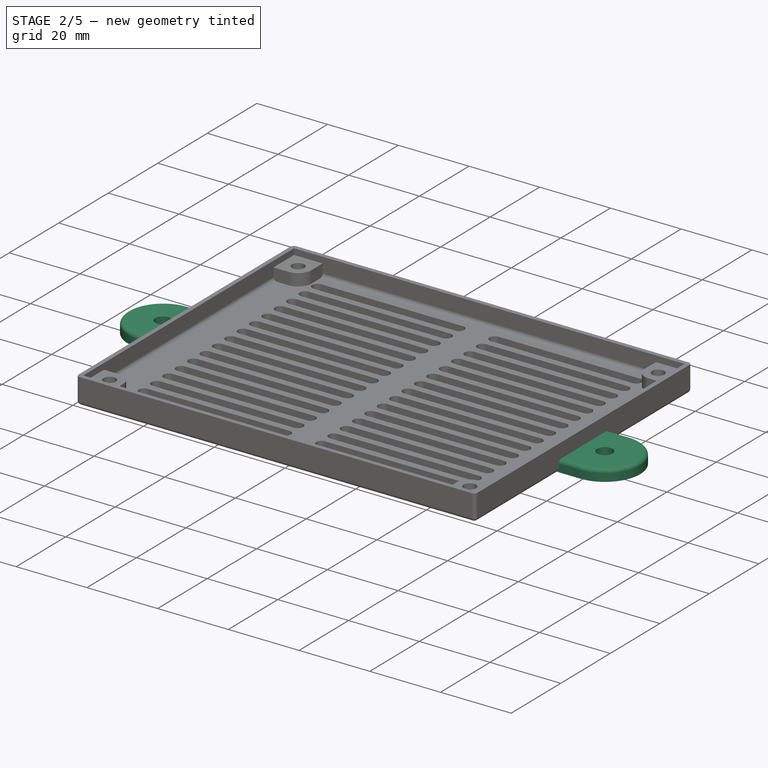
[diagram: stage 2 of 5 — iso view after this stage's code; geometry added in this stage tinted green]
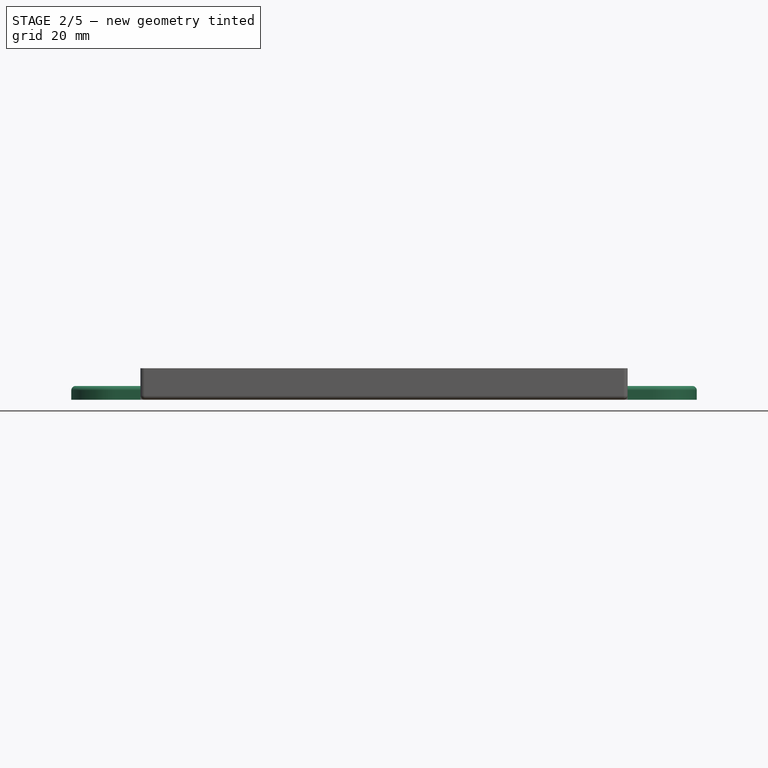
[diagram: stage 2 of 5 — front view after this stage's code; geometry added in this stage tinted green]
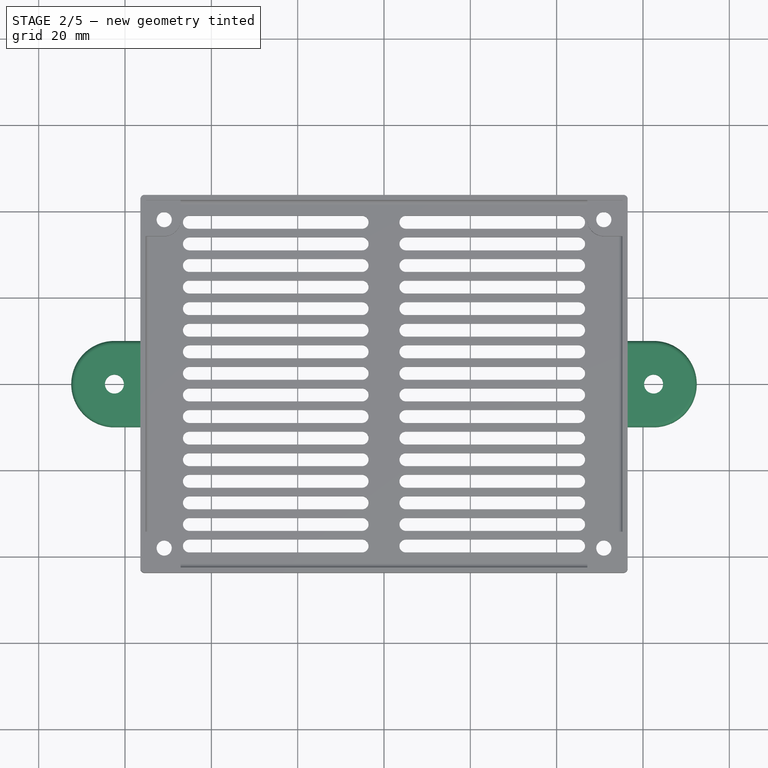
[diagram: stage 2 of 5 — top view after this stage's code; geometry added in this stage tinted green]
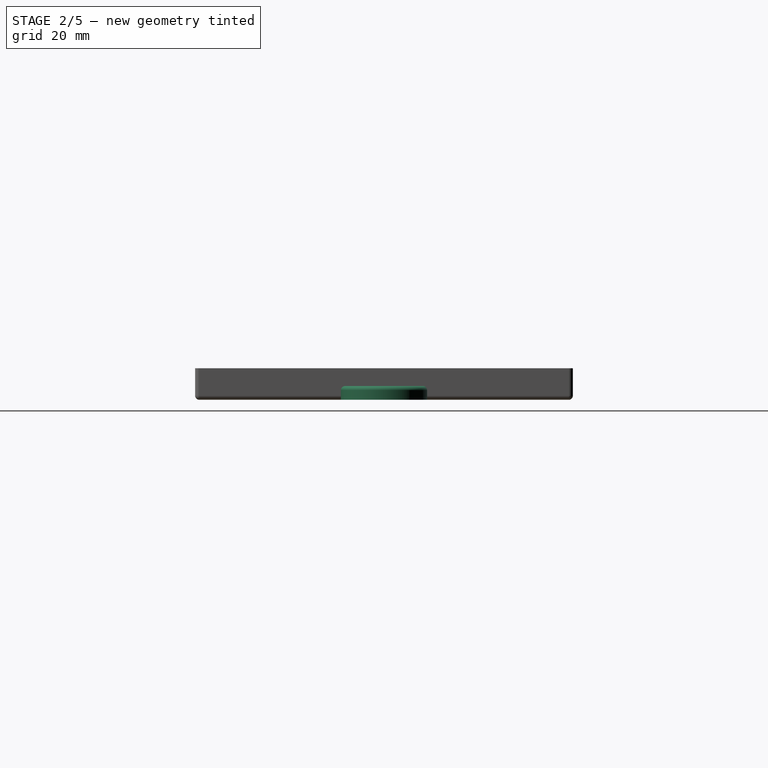
[diagram: stage 2 of 5 — right view after this stage's code; geometry added in this stage tinted green]
FEATURE [PartDesign::FeatureBase] Clone
  BaseFeature = -> Pad003
FEATURE [PartDesign::Body] Body  label="BaseBody"
  Group = -> [Sketch,Sketch001,Pad,Sketch002,Pad001,Sketch003,Pad002,Sketch004,Pad003,Sketch005,Pad004,Fillet]
  Origin = -> Origin001
  Placement = pos=(0,0,38.92) rot=(1,0,0;3.14159rad)
  Tip = -> Fillet
FEATURE [App::Part] Part
  Group = -> [Body,Body001]
  Origin = -> Origin
FEATURE [PartDesign::Pad] Pad008
  BaseFeature = -> Clone
  Length = 3.2
  Length2 = 100
  Profile = -> Sketch013
  Refine = true
  Type = 0
FEATURE [PartDesign::Fillet] Fillet002
  Base = -> Pad008 [Edge50,Edge41,Edge51,Edge80,Edge53,Edge49,Edge64,Edge247,Edge251,Edge65,Edge74,Edge63,Edge62,Edge61,Edge239,Edge243]
  BaseFeature = -> Pad008
  Radius = 1
FEATURE [PartDesign::Body] Body004
  BaseFeature = -> Pad003
  Group = -> [Clone,Sketch013,Pad008,Fillet002]
  Origin = -> Origin005
  Tip = -> Fillet002
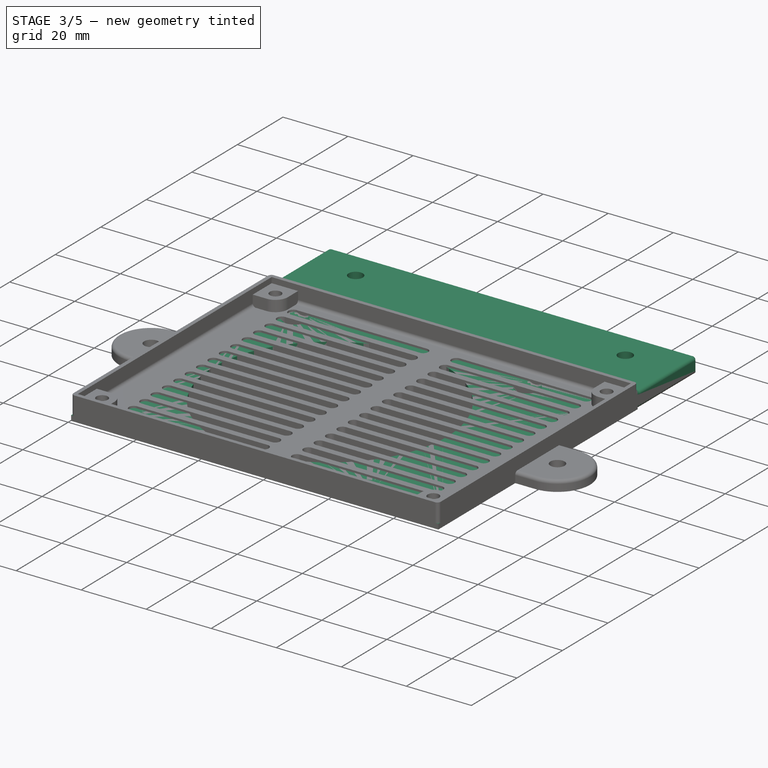
[diagram: stage 3 of 5 — iso view after this stage's code; geometry added in this stage tinted green]
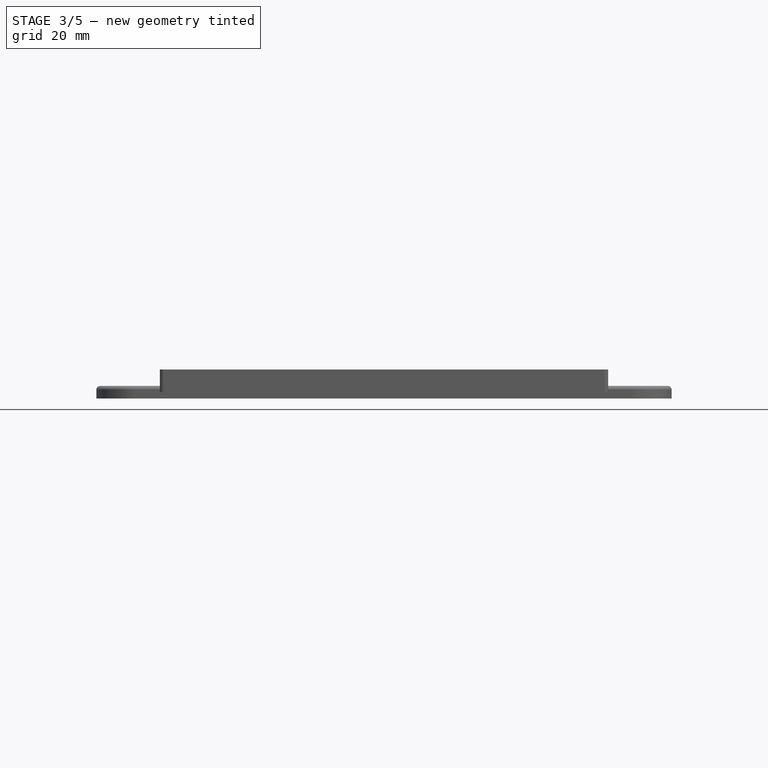
[diagram: stage 3 of 5 — front view after this stage's code; geometry added in this stage tinted green]
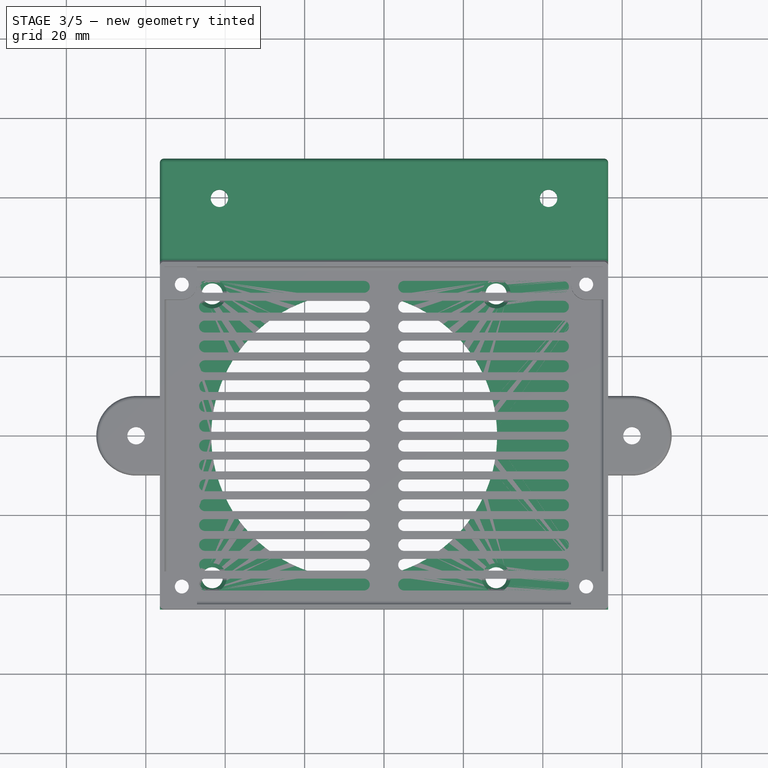
[diagram: stage 3 of 5 — top view after this stage's code; geometry added in this stage tinted green]
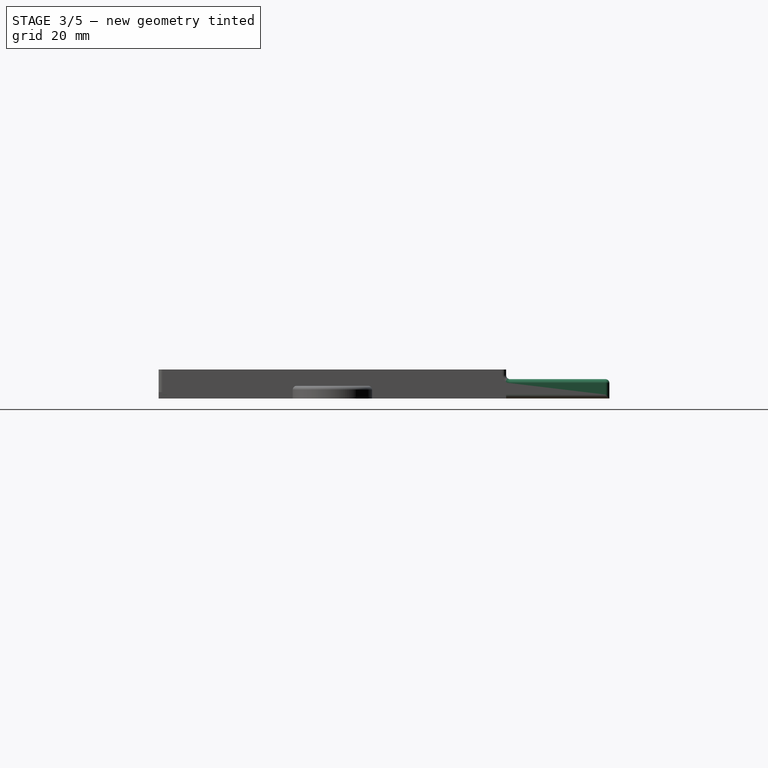
[diagram: stage 3 of 5 — right view after this stage's code; geometry added in this stage tinted green]
FEATURE [Spreadsheet::Sheet] Spreadsheet
FEATURE [Spreadsheet::Sheet] Spreadsheet001  label="Screws"
  cells = B4=M25Radius; C4(M25Radius)==1.45mm; B5=M25HeadRadius; C5(M25HeadRadius)==2.4mm; B6=MHeadHeight; C6(MHeadHeight)==3mm; B7=M25NutRadius; C7(M25NutRadius)==3.1mm; B8=M25NutHeight; C8(M25NutHeight)==2.2mm; B9=M3Radius; C9(M3Radius)==1.75mm; B10=M3HeadRadius; C10(M3HeadRadius)==3mm; B11=M3HeadHeight; C11(M3HeadHeight)==3.4mm; B12=M3NutRadius; C12(M3NutRadius)==3.4mm; B13=M3NutHeight; C13(M3NutHeight)==2.6mm; B14=M3NutDuctWidth; C14(M3NutDuctWidth)==6mm; B15=M4Radius; C15(M4Radius)==2.2mm; B16=M4HeadRadius; C16(M4HeadRadius)==3.7mm; B17=M4HeadHeight; C17(M4HeadHeight)==4mm; B18=M4NutRadius; C18(M4NutRadius)==4.2mm; B19=M4NutHeight; C19(M4NutHeight)==3.3mm; B20=M5Radius; C20(M5Radius)==2.66mm; B21=M5HeadRadius; C21(M5HeadRadius)==4.5mm; B22=M5HeadHeight; C22(M5HeadHeight)==5mm; B23=M5NutRadius; C23(M5NutRadius)==4.75mm; B24=M5NutHeight; C24(M5NutHeight)==4mm
FEATURE [Sketcher::SketchObject] Sketch006  label="Top"
  MapMode = 5
  Support = -> [XY_Plane002]
  expr: Constraints[138] = Template.Constraints.Tolerance
  expr: Constraints[139] = Template.Constraints.WallThickness
  expr: Constraints[19] = Template.Constraints.HoleDistanceShort
  expr: Constraints[16] = Screws.M3HeadRadius
  expr: Constraints[12] = Template.Constraints.PCBLong
  expr: Constraints[17] = Template.Constraints.PCBShort
  expr: Constraints[18] = Template.Constraints.HoleDistanceLong
  expr: Constraints.CapScrewChannelRadius = Screws.M3HeadRadius + 0.41mm
  sketch-geometry (67):
    g0: LineSegment [constr] StartX=-54.835 StartY=42.15 StartZ=0 EndX=54.835 EndY=42.15 EndZ=0
    g1: LineSegment [constr] StartX=54.835 StartY=42.15 StartZ=0 EndX=54.835 EndY=-42.15 EndZ=0
    g2: LineSegment [constr] StartX=54.835 StartY=-42.15 StartZ=0 EndX=-54.835 EndY=-42.15 EndZ=0
    g3: LineSegment [constr] StartX=-54.835 StartY=-42.15 StartZ=0 EndX=-54.835 EndY=42.15 EndZ=0
    g4: Circle CenterX=-50.925 CenterY=38.05 CenterZ=0 NormalX=0 NormalY=0 NormalZ=1 AngleXU=0 Radius=3
    g5: Circle CenterX=50.925 CenterY=38.05 CenterZ=0 NormalX=0 NormalY=0 NormalZ=1 AngleXU=0 Radius=3
    g6: Circle CenterX=-50.925 CenterY=-38.05 CenterZ=0 NormalX=0 NormalY=0 NormalZ=1 AngleXU=0 Radius=3
    g7: Circle CenterX=50.925 CenterY=-38.05 CenterZ=0 NormalX=0 NormalY=0 NormalZ=1 AngleXU=0 Radius=3
    g8: LineSegment [constr] StartX=-55.235 StartY=42.55 StartZ=0 EndX=-47.515 EndY=42.55 EndZ=0
    g9: LineSegment [constr] StartX=-47.515 StartY=42.55 StartZ=0 EndX=47.515 EndY=42.55 EndZ=0
    g10: LineSegment [constr] StartX=47.515 StartY=42.55 StartZ=0 EndX=55.235 EndY=42.55 EndZ=0
    g11: LineSegment [constr] StartX=-55.235 StartY=42.55 StartZ=0 EndX=-55.235 EndY=34.64 EndZ=0
    g12: LineSegment [constr] StartX=-55.235 StartY=34.64 StartZ=0 EndX=-55.235 EndY=-34.64 EndZ=0
    g13: LineSegment [constr] StartX=-55.235 StartY=-34.64 StartZ=0 EndX=-55.235 EndY=-42.55 EndZ=0
    g14: LineSegment [constr] StartX=-55.235 StartY=-42.55 StartZ=0 EndX=-47.515 EndY=-42.55 EndZ=0
    g15: LineSegment [constr] StartX=-47.515 StartY=-42.55 StartZ=0 EndX=47.515 EndY=-42.55 EndZ=0
    g16: LineSegment [constr] StartX=47.515 StartY=-42.55 StartZ=0 EndX=55.235 EndY=-42.55 EndZ=0
    g17: LineSegment [constr] StartX=55.235 StartY=-42.55 StartZ=0 EndX=55.235 EndY=-34.64 EndZ=0
    g18: LineSegment [constr] StartX=55.235 StartY=-34.64 StartZ=0 EndX=55.235 EndY=34.64 EndZ=0
    g19: LineSegment [constr] StartX=55.235 StartY=34.64 StartZ=0 EndX=55.235 EndY=42.55 EndZ=0
    g20: LineSegment [constr] StartX=-55.235 StartY=34.64 StartZ=0 EndX=-50.925 EndY=34.64 EndZ=0
    g21: LineSegment [constr] StartX=-47.515 StartY=42.55 StartZ=0 EndX=-47.515 EndY=38.05 EndZ=0
    g22: ArcOfCircle [constr] CenterX=-50.925 CenterY=38.05 CenterZ=0 NormalX=0 NormalY=0 NormalZ=1 AngleXU=0 Radius=3.41 StartAngle=4.71239 EndAngle=6.28319
    g23: LineSegment [constr] StartX=-50.925 StartY=38.05 StartZ=0 EndX=-50.925 EndY=34.64 EndZ=0
    g24: LineSegment [constr] StartX=-50.925 StartY=38.05 StartZ=0 EndX=-47.515 EndY=38.05 EndZ=0
    g25: LineSegment [constr] StartX=-54.835 StartY=42.15 StartZ=0 EndX=-54.835 EndY=42.55 EndZ=0
    g26: LineSegment [constr] StartX=-54.835 StartY=42.15 StartZ=0 EndX=-55.235 EndY=42.15 EndZ=0
    g27: LineSegment [constr] StartX=54.835 StartY=-42.15 StartZ=0 EndX=54.835 EndY=-42.55 EndZ=0
    g28: LineSegment [constr] StartX=54.835 StartY=-42.15 StartZ=0 EndX=55.235 EndY=-42.15 EndZ=0
    g29: LineSegment [constr] StartX=55.235 StartY=-34.64 StartZ=0 EndX=50.925 EndY=-34.64 EndZ=0
    g30: LineSegment [constr] StartX=47.515 StartY=-42.55 StartZ=0 EndX=47.515 EndY=-38.05 EndZ=0
    g31: ArcOfCircle [constr] CenterX=50.925 CenterY=-38.05 CenterZ=0 NormalX=0 NormalY=0 NormalZ=1 AngleXU=0 Radius=3.41 StartAngle=1.5708 EndAngle=3.14159
    g32: LineSegment [constr] StartX=50.925 StartY=-38.05 StartZ=0 EndX=50.925 EndY=-34.64 EndZ=0
    g33: LineSegment [constr] StartX=50.925 StartY=-38.05 StartZ=0 EndX=47.515 EndY=-38.05 EndZ=0
    g34: LineSegment [constr] StartX=47.515 StartY=42.55 StartZ=0 EndX=47.515 EndY=38.05 EndZ=0
    g35: LineSegment [constr] StartX=47.515 StartY=38.05 StartZ=0 EndX=50.925 EndY=38.05 EndZ=0
    g36: LineSegment [constr] StartX=55.235 StartY=34.64 StartZ=0 EndX=50.925 EndY=34.64 EndZ=0
    g37: LineSegment [constr] StartX=50.925 StartY=34.64 StartZ=0 EndX=50.925 EndY=38.05 EndZ=0
    g38: ArcOfCircle [constr] CenterX=50.925 CenterY=38.05 CenterZ=0 NormalX=0 NormalY=0 NormalZ=1 AngleXU=0 Radius=3.41 StartAngle=3.14159 EndAngle=4.71239
    g39: LineSegment [constr] StartX=-47.515 StartY=-42.55 StartZ=0 EndX=-47.515 EndY=-38.05 EndZ=0
    g40: LineSegment [constr] StartX=-47.515 StartY=-38.05 StartZ=0 EndX=-50.925 EndY=-38.05 EndZ=0
    g41: LineSegment [constr] StartX=-55.235 StartY=-34.64 StartZ=0 EndX=-50.925 EndY=-34.64 EndZ=0
    g42: LineSegment [constr] StartX=-50.925 StartY=-34.64 StartZ=0 EndX=-50.925 EndY=-38.05 EndZ=0
    g43: ArcOfCircle [constr] CenterX=-50.925 CenterY=-38.05 CenterZ=0 NormalX=0 NormalY=0 NormalZ=1 AngleXU=0 Radius=3.41 StartAngle=6e-16 EndAngle=1.5708
    g44: LineSegment StartX=-56.455 StartY=43.77 StartZ=0 EndX=56.455 EndY=43.77 EndZ=0
    g45: LineSegment StartX=56.455 StartY=43.77 StartZ=0 EndX=56.455 EndY=-43.77 EndZ=0
    g46: LineSegment StartX=56.455 StartY=-43.77 StartZ=0 EndX=-56.455 EndY=-43.77 EndZ=0
    g47: LineSegment StartX=-56.455 StartY=-43.77 StartZ=0 EndX=-56.455 EndY=43.77 EndZ=0
    g48: LineSegment [constr] StartX=-55.235 StartY=42.55 StartZ=0 EndX=-55.235 EndY=43.77 EndZ=0
    g49: LineSegment [constr] StartX=-55.235 StartY=42.55 StartZ=0 EndX=-56.455 EndY=42.55 EndZ=0
    g50: LineSegment [constr] StartX=55.235 StartY=-42.55 StartZ=0 EndX=56.455 EndY=-42.55 EndZ=0
    g51: LineSegment [constr] StartX=55.235 StartY=-42.55 StartZ=0 EndX=55.235 EndY=-43.77 EndZ=0
    g52: LineSegment [constr] StartX=-43.265 StartY=35.75 StartZ=0 EndX=28.235 EndY=35.75 EndZ=0
    g53: LineSegment [constr] StartX=28.235 StartY=35.75 StartZ=0 EndX=28.235 EndY=-35.75 EndZ=0
    g54: LineSegment [constr] StartX=28.235 StartY=-35.75 StartZ=0 EndX=-43.265 EndY=-35.75 EndZ=0
    g55: LineSegment [constr] StartX=-43.265 StartY=-35.75 StartZ=0 EndX=-43.265 EndY=35.75 EndZ=0
    g56: LineSegment [constr] StartX=-47.515 StartY=40 StartZ=0 EndX=32.485 EndY=40 EndZ=0
    g57: LineSegment [constr] StartX=32.485 StartY=40 StartZ=0 EndX=32.485 EndY=-40 EndZ=0
    g58: LineSegment [constr] StartX=32.485 StartY=-40 StartZ=0 EndX=-47.515 EndY=-40 EndZ=0
    g59: LineSegment [constr] StartX=-47.515 StartY=-40 StartZ=0 EndX=-47.515 EndY=40 EndZ=0
    g60: LineSegment [constr] StartX=-47.515 StartY=40 StartZ=0 EndX=32.485 EndY=-40 EndZ=0
    g61: LineSegment [constr] StartX=-47.515 StartY=-40 StartZ=0 EndX=32.485 EndY=40 EndZ=0
    g62: Circle CenterX=-43.265 CenterY=35.75 CenterZ=0 NormalX=0 NormalY=0 NormalZ=1 AngleXU=0 Radius=2.65
    g63: Circle CenterX=28.235 CenterY=35.75 CenterZ=0 NormalX=0 NormalY=0 NormalZ=1 AngleXU=0 Radius=2.65
    g64: Circle CenterX=28.235 CenterY=-35.75 CenterZ=0 NormalX=0 NormalY=0 NormalZ=1 AngleXU=0 Radius=2.65
    g65: Circle CenterX=-43.265 CenterY=-35.75 CenterZ=0 NormalX=0 NormalY=0 NormalZ=1 AngleXU=0 Radius=2.65
    g66: Circle CenterX=-7.515 CenterY=0 CenterZ=0 NormalX=0 NormalY=0 NormalZ=1 AngleXU=0 Radius=36
  constraints (180):
    c: Coincident(g0,g1)
    c: Coincident(g1,g2)
    c: Coincident(g2,g3)
    c: Coincident(g3,g0)
    c: Horizontal(g0)
    c: Horizontal(g2)
    c: Vertical(g1)
    c: Vertical(g3)
    c: Symmetric(g0,g1,g-1)
    c: Symmetric(g4,g5,g-2)
    c: Symmetric(g6,g7,g-2)
    c: Symmetric(g6,g4,g-1)
    c: DistanceX(g0,g0) = 109.67
    c: Equal(g4,g5)
    c: Equal(g5,g7)
    c: Equal(g7,g6)
    c: Radius(g4) = 3
    c: DistanceY(g3,g3) = 84.3
    c: DistanceX(g4,g5) = 101.85
    c: DistanceY(g6,g4) = 76.1
    c: Horizontal(g8)
    c: Coincident(g8,g9)
    c: Horizontal(g9)
    c: Coincident(g9,g10)
    c: Horizontal(g10)
    c: Coincident(g8,g11)
    c: Vertical(g11)
    c: Coincident(g11,g12)
    c: Vertical(g12)
    c: Coincident(g12,g13)
    c: Vertical(g13)
    c: Coincident(g13,g14)
    c: Horizontal(g14)
    c: Coincident(g14,g15)
    c: Horizontal(g15)
    c: Coincident(g15,g16)
    c: Horizontal(g16)
    c: Coincident(g16,g17)
    c: Vertical(g17)
    c: Coincident(g17,g18)
    c: Vertical(g18)
    c: Coincident(g18,g19)
    c: Coincident(g19,g10)
    c: Vertical(g19)
    c: Coincident(g20,g11)
    c: Horizontal(g20)
    c: Coincident(g21,g8)
    c: Vertical(g21)
    c: Coincident(g22,g4)
    c: Coincident(g22,g21)
    c: Coincident(g22,g20)
    c: Coincident(g23,g4)
    c: Coincident(g23,g20)
    c: Vertical(g23)
    c: Coincident(g24,g4)
    c: Coincident(g24,g21)
    c: Horizontal(g24)
    c: Coincident(g25,g0)
    c: PointOnObject(g25,g8)
    c: Vertical(g25)
    c: Coincident(g26,g0)
    c: PointOnObject(g26,g11)
    c: Horizontal(g26)
    c: Coincident(g27,g1)
    c: PointOnObject(g27,g16)
    c: Vertical(g27)
    c: Coincident(g28,g1)
    c: PointOnObject(g28,g17)
    c: Horizontal(g28)
    c: Equal(g28,g27)
    c: Equal(g27,g25)
    c: Equal(g25,g26)
    c: Coincident(g29,g17)
    c: Horizontal(g29)
    c: Coincident(g30,g15)
    c: Vertical(g30)
    c: Coincident(g31,g7)
    c: Coincident(g31,g29)
    c: Coincident(g31,g30)
    c: Coincident(g32,g7)
    c: Coincident(g32,g29)
    c: Vertical(g32)
    c: Coincident(g33,g7)
    c: Coincident(g33,g30)
    c: Horizontal(g33)
    c: Radius(g22) = 3.41  'CapScrewChannelRadius'
    c: Coincident(g34,g9)
    c: Vertical(g34)
    c: Coincident(g35,g34)
    c: Coincident(g35,g5)
    c: Horizontal(g35)
    c: Coincident(g36,g18)
    c: Horizontal(g36)
    c: Coincident(g37,g36)
    c: Coincident(g37,g5)
    c: Vertical(g37)
    c: Coincident(g38,g5)
    c: Coincident(g38,g34)
    c: Coincident(g38,g36)
    c: Coincident(g14,g39)
    c: Vertical(g39)
    c: Coincident(g39,g40)
    c: Coincident(g40,g6)
    c: Horizontal(g40)
    c: Coincident(g12,g41)
    c: Horizontal(g41)
    c: Coincident(g41,g42)
    c: Coincident(g42,g6)
    c: Vertical(g42)
    c: Coincident(g43,g6)
    c: Coincident(g43,g41)
    c: Coincident(g43,g39)
    c: Equal(g22,g38)
    c: Equal(g38,g31)
    c: Equal(g31,g43)
    c: Coincident(g44,g45)
    c: Coincident(g45,g46)
    c: Coincident(g46,g47)
    c: Coincident(g47,g44)
    c: Horizontal(g44)
    c: Horizontal(g46)
    c: Vertical(g45)
    c: Vertical(g47)
    c: Coincident(g48,g8)
    c: PointOnObject(g48,g44)
    c: Vertical(g48)
    c: Coincident(g49,g8)
    c: PointOnObject(g49,g47)
    c: Horizontal(g49)
    c: Coincident(g50,g16)
    c: PointOnObject(g50,g45)
    c: Horizontal(g50)
    c: Coincident(g51,g16)
    c: PointOnObject(g51,g46)
    c: Vertical(g51)
    c: Equal(g51,g50)
    c: Equal(g50,g48)
    c: Equal(g48,g49)
    c: DistanceX(g26,g26) = 0.4
    c: DistanceX(g49,g49) = 1.22
    c: Coincident(g52,g53)
    c: Coincident(g53,g54)
    c: Coincident(g54,g55)
    c: Coincident(g55,g52)
    c: Horizontal(g52)
    c: Horizontal(g54)
    c: Vertical(g53)
    c: Vertical(g55)
    c: Coincident(g56,g57)
    c: Coincident(g57,g58)
    c: Coincident(g58,g59)
    c: Coincident(g59,g56)
    c: Horizontal(g56)
    c: Horizontal(g58)
    c: Vertical(g57)
    c: Vertical(g59)
    c: Equal(g52,g55)
    c: Equal(g56,g59)
    c: DistanceX(g56,g56) = 80
    c: DistanceX(g52,g52) = 71.5
    c: Coincident(g60,g56)
    c: Coincident(g60,g57)
    c: Coincident(g61,g58)
    c: Coincident(g61,g56)
    c: PointOnObject(g52,g61)
    c: PointOnObject(g52,g60)
    c: Coincident(g62,g52)
    c: Coincident(g63,g52)
    c: Coincident(g64,g53)
    c: Coincident(g65,g54)
    c: Equal(g62,g63)
    c: Equal(g63,g64)
    c: Equal(g64,g65)
    c: Radius(g62) = 2.65
    c: PointOnObject(g66,g60)
    c: PointOnObject(g66,g61)
    c: Radius(g66) = 36
    c: PointOnObject(g58,g39)
    c: PointOnObject(g66,g-1)
    c: DistanceX(g15,g15) = 95.03  'MaxCutLong'
FEATURE [PartDesign::Pad] Pad005  label="Top_"
  Length = 1.6
  Length2 = 100
  Profile = -> Sketch006
  Type = 0
FEATURE [Sketcher::SketchObject] Sketch007  label="CapWalls1"
  AttachmentOffset = pos=(0,0,1.6) rot=(0,0,1;0rad)
  MapMode = 5
  Placement = pos=(0,0,1.6) rot=(0,0,1;0rad)
  Support = -> [XY_Plane002]
  expr: Constraints[85] = Top.Constraints.CapScrewChannelRadius
  expr: AttachmentOffset.Base.z = Top.AttachmentOffset.Base.z + Top_.Length
  expr: Constraints[16] = Screws.M3HeadRadius
  expr: Constraints[12] = Template.Constraints.PCBLong
  expr: Constraints[139] = Template.Constraints.WallThickness
  expr: Constraints[138] = Template.Constraints.Tolerance
  expr: Constraints[19] = Template.Constraints.HoleDistanceShort
  expr: Constraints[18] = Template.Constraints.HoleDistanceLong
  expr: Constraints[17] = Template.Constraints.PCBShort
  sketch-geometry (52):
    g0: LineSegment [constr] StartX=-54.835 StartY=42.15 StartZ=0 EndX=54.835 EndY=42.15 EndZ=0
    g1: LineSegment [constr] StartX=54.835 StartY=42.15 StartZ=0 EndX=54.835 EndY=-42.15 EndZ=0
    g2: LineSegment [constr] StartX=54.835 StartY=-42.15 StartZ=0 EndX=-54.835 EndY=-42.15 EndZ=0
    g3: LineSegment [constr] StartX=-54.835 StartY=-42.15 StartZ=0 EndX=-54.835 EndY=42.15 EndZ=0
    g4: Circle CenterX=-50.925 CenterY=38.05 CenterZ=0 NormalX=0 NormalY=0 NormalZ=1 AngleXU=0 Radius=3
    g5: Circle CenterX=50.925 CenterY=38.05 CenterZ=0 NormalX=0 NormalY=0 NormalZ=1 AngleXU=0 Radius=3
    g6: Circle CenterX=-50.925 CenterY=-38.05 CenterZ=0 NormalX=0 NormalY=0 NormalZ=1 AngleXU=0 Radius=3
    g7: Circle CenterX=50.925 CenterY=-38.05 CenterZ=0 NormalX=0 NormalY=0 NormalZ=1 AngleXU=0 Radius=3
    g8: LineSegment [constr] StartX=-55.235 StartY=42.55 StartZ=0 EndX=-47.515 EndY=42.55 EndZ=0
    g9: LineSegment StartX=-47.515 StartY=42.55 StartZ=0 EndX=47.515 EndY=42.55 EndZ=0
    g10: LineSegment [constr] StartX=47.515 StartY=42.55 StartZ=0 EndX=55.235 EndY=42.55 EndZ=0
    g11: LineSegment [constr] StartX=-55.235 StartY=42.55 StartZ=0 EndX=-55.235 EndY=34.64 EndZ=0
    g12: LineSegment StartX=-55.235 StartY=34.64 StartZ=0 EndX=-55.235 EndY=-34.64 EndZ=0
    g13: LineSegment [constr] StartX=-55.235 StartY=-34.64 StartZ=0 EndX=-55.235 EndY=-42.55 EndZ=0
    g14: LineSegment [constr] StartX=-55.235 StartY=-42.55 StartZ=0 EndX=-47.515 EndY=-42.55 EndZ=0
    g15: LineSegment StartX=-47.515 StartY=-42.55 StartZ=0 EndX=47.515 EndY=-42.55 EndZ=0
    g16: LineSegment [constr] StartX=47.515 StartY=-42.55 StartZ=0 EndX=55.235 EndY=-42.55 EndZ=0
    g17: LineSegment [constr] StartX=55.235 StartY=-42.55 StartZ=0 EndX=55.235 EndY=-34.64 EndZ=0
    g18: LineSegment StartX=55.235 StartY=-34.64 StartZ=0 EndX=55.235 EndY=34.64 EndZ=0
    g19: LineSegment [constr] StartX=55.235 StartY=34.64 StartZ=0 EndX=55.235 EndY=42.55 EndZ=0
    g20: LineSegment StartX=-55.235 StartY=34.64 StartZ=0 EndX=-50.925 EndY=34.64 EndZ=0
    g21: LineSegment StartX=-47.515 StartY=42.55 StartZ=0 EndX=-47.515 EndY=38.05 EndZ=0
    g22: ArcOfCircle CenterX=-50.925 CenterY=38.05 CenterZ=0 NormalX=0 NormalY=0 NormalZ=1 AngleXU=0 Radius=3.41 StartAngle=4.71239 EndAngle=6.28319
    g23: LineSegment [constr] StartX=-50.925 StartY=38.05 StartZ=0 EndX=-50.925 EndY=34.64 EndZ=0
    g24: LineSegment [constr] StartX=-50.925 StartY=38.05 StartZ=0 EndX=-47.515 EndY=38.05 EndZ=0
    g25: LineSegment [constr] StartX=-54.835 StartY=42.15 StartZ=0 EndX=-54.835 EndY=42.55 EndZ=0
    g26: LineSegment [constr] StartX=-54.835 StartY=42.15 StartZ=0 EndX=-55.235 EndY=42.15 EndZ=0
    g27: LineSegment [constr] StartX=54.835 StartY=-42.15 StartZ=0 EndX=54.835 EndY=-42.55 EndZ=0
    g28: LineSegment [constr] StartX=54.835 StartY=-42.15 StartZ=0 EndX=55.235 EndY=-42.15 EndZ=0
    g29: LineSegment StartX=55.235 StartY=-34.64 StartZ=0 EndX=50.925 EndY=-34.64 EndZ=0
    g30: LineSegment StartX=47.515 StartY=-42.55 StartZ=0 EndX=47.515 EndY=-38.05 EndZ=0
    g31: ArcOfCircle CenterX=50.925 CenterY=-38.05 CenterZ=0 NormalX=0 NormalY=0 NormalZ=1 AngleXU=0 Radius=3.41 StartAngle=1.5708 EndAngle=3.14159
    g32: LineSegment [constr] StartX=50.925 StartY=-38.05 StartZ=0 EndX=50.925 EndY=-34.64 EndZ=0
    g33: LineSegment [constr] StartX=50.925 StartY=-38.05 StartZ=0 EndX=47.515 EndY=-38.05 EndZ=0
    g34: LineSegment StartX=47.515 StartY=42.55 StartZ=0 EndX=47.515 EndY=38.05 EndZ=0
    g35: LineSegment [constr] StartX=47.515 StartY=38.05 StartZ=0 EndX=50.925 EndY=38.05 EndZ=0
    g36: LineSegment StartX=55.235 StartY=34.64 StartZ=0 EndX=50.925 EndY=34.64 EndZ=0
    g37: LineSegment [constr] StartX=50.925 StartY=34.64 StartZ=0 EndX=50.925 EndY=38.05 EndZ=0
    g38: ArcOfCircle CenterX=50.925 CenterY=38.05 CenterZ=0 NormalX=0 NormalY=0 NormalZ=1 AngleXU=0 Radius=3.41 StartAngle=3.14159 EndAngle=4.71239
    g39: LineSegment StartX=-47.515 StartY=-42.55 StartZ=0 EndX=-47.515 EndY=-38.05 EndZ=0
    g40: LineSegment [constr] StartX=-47.515 StartY=-38.05 StartZ=0 EndX=-50.925 EndY=-38.05 EndZ=0
    g41: LineSegment StartX=-55.235 StartY=-34.64 StartZ=0 EndX=-50.925 EndY=-34.64 EndZ=0
    g42: LineSegment [constr] StartX=-50.925 StartY=-34.64 StartZ=0 EndX=-50.925 EndY=-38.05 EndZ=0
    g43: ArcOfCircle CenterX=-50.925 CenterY=-38.05 CenterZ=0 NormalX=0 NormalY=0 NormalZ=1 AngleXU=0 Radius=3.41 StartAngle=2e-16 EndAngle=1.5708
    g44: LineSegment StartX=-56.455 StartY=43.77 StartZ=0 EndX=56.455 EndY=43.77 EndZ=0
    g45: LineSegment StartX=56.455 StartY=43.77 StartZ=0 EndX=56.455 EndY=-43.77 EndZ=0
    g46: LineSegment StartX=56.455 StartY=-43.77 StartZ=0 EndX=-56.455 EndY=-43.77 EndZ=0
    g47: LineSegment StartX=-56.455 StartY=-43.77 StartZ=0 EndX=-56.455 EndY=43.77 EndZ=0
    g48: LineSegment [constr] StartX=-55.235 StartY=42.55 StartZ=0 EndX=-55.235 EndY=43.77 EndZ=0
    g49: LineSegment [constr] StartX=-55.235 StartY=42.55 StartZ=0 EndX=-56.455 EndY=42.55 EndZ=0
    g50: LineSegment [constr] StartX=55.235 StartY=-42.55 StartZ=0 EndX=56.455 EndY=-42.55 EndZ=0
    g51: LineSegment [constr] StartX=55.235 StartY=-42.55 StartZ=0 EndX=55.235 EndY=-43.77 EndZ=0
  constraints (140):
    c: Coincident(g0,g1)
    c: Coincident(g1,g2)
    c: Coincident(g2,g3)
    c: Coincident(g3,g0)
    c: Horizontal(g0)
    c: Horizontal(g2)
    c: Vertical(g1)
    c: Vertical(g3)
    c: Symmetric(g0,g1,g-1)
    c: Symmetric(g4,g5,g-2)
    c: Symmetric(g6,g7,g-2)
    c: Symmetric(g6,g4,g-1)
    c: DistanceX(g0,g0) = 109.67
    c: Equal(g4,g5)
    c: Equal(g5,g7)
    c: Equal(g7,g6)
    c: Radius(g4) = 3
    c: DistanceY(g3,g3) = 84.3
    c: DistanceX(g4,g5) = 101.85
    c: DistanceY(g6,g4) = 76.1
    c: Horizontal(g8)
    c: Coincident(g8,g9)
    c: Horizontal(g9)
    c: Coincident(g9,g10)
    c: Horizontal(g10)
    c: Coincident(g8,g11)
    c: Vertical(g11)
    c: Coincident(g11,g12)
    c: Vertical(g12)
    c: Coincident(g12,g13)
    c: Vertical(g13)
    c: Coincident(g13,g14)
    c: Horizontal(g14)
    c: Coincident(g14,g15)
    c: Horizontal(g15)
    c: Coincident(g15,g16)
    c: Horizontal(g16)
    c: Coincident(g16,g17)
    c: Vertical(g17)
    c: Coincident(g17,g18)
    c: Vertical(g18)
    c: Coincident(g18,g19)
    c: Coincident(g19,g10)
    c: Vertical(g19)
    c: Coincident(g20,g11)
    c: Horizontal(g20)
    c: Coincident(g21,g8)
    c: Vertical(g21)
    c: Coincident(g22,g4)
    c: Coincident(g22,g21)
    c: Coincident(g22,g20)
    c: Coincident(g23,g4)
    c: Coincident(g23,g20)
    c: Vertical(g23)
    c: Coincident(g24,g4)
    c: Coincident(g24,g21)
    c: Horizontal(g24)
    c: Coincident(g25,g0)
    c: PointOnObject(g25,g8)
    c: Vertical(g25)
    c: Coincident(g26,g0)
    c: PointOnObject(g26,g11)
    c: Horizontal(g26)
    c: Coincident(g27,g1)
    c: PointOnObject(g27,g16)
    c: Vertical(g27)
    c: Coincident(g28,g1)
    c: PointOnObject(g28,g17)
    c: Horizontal(g28)
    c: Equal(g28,g27)
    c: Equal(g27,g25)
    c: Equal(g25,g26)
    c: Coincident(g29,g17)
    c: Horizontal(g29)
    c: Coincident(g30,g15)
    c: Vertical(g30)
    c: Coincident(g31,g7)
    c: Coincident(g31,g29)
    c: Coincident(g31,g30)
    c: Coincident(g32,g7)
    c: Coincident(g32,g29)
    c: Vertical(g32)
    c: Coincident(g33,g7)
    c: Coincident(g33,g30)
    c: Horizontal(g33)
    c: Radius(g22) = 3.41
    c: Coincident(g34,g9)
    c: Vertical(g34)
    c: Coincident(g35,g34)
    c: Coincident(g35,g5)
    c: Horizontal(g35)
    c: Coincident(g36,g18)
    c: Horizontal(g36)
    c: Coincident(g37,g36)
    c: Coincident(g37,g5)
    c: Vertical(g37)
    c: Coincident(g38,g5)
    c: Coincident(g38,g34)
    c: Coincident(g38,g36)
    c: Coincident(g14,g39)
    c: Vertical(g39)
    c: Coincident(g39,g40)
    c: Coincident(g40,g6)
    c: Horizontal(g40)
    c: Coincident(g12,g41)
    c: Horizontal(g41)
    c: Coincident(g41,g42)
    c: Coincident(g42,g6)
    c: Vertical(g42)
    c: Coincident(g43,g6)
    c: Coincident(g43,g41)
    c: Coincident(g43,g39)
    c: Equal(g22,g38)
    c: Equal(g38,g31)
    c: Equal(g31,g43)
    c: Coincident(g44,g45)
    c: Coincident(g45,g46)
    c: Coincident(g46,g47)
    c: Coincident(g47,g44)
    c: Horizontal(g44)
    c: Horizontal(g46)
    c: Vertical(g45)
    c: Vertical(g47)
    c: Coincident(g48,g8)
    c: PointOnObject(g48,g44)
    c: Vertical(g48)
    c: Coincident(g49,g8)
    c: PointOnObject(g49,g47)
    c: Horizontal(g49)
    c: Coincident(g50,g16)
    c: PointOnObject(g50,g45)
    c: Horizontal(g50)
    c: Coincident(g51,g16)
    c: PointOnObject(g51,g46)
    c: Vertical(g51)
    c: Equal(g51,g50)
    c: Equal(g50,g48)
    c: Equal(g48,g49)
    c: DistanceX(g26,g26) = 0.4
    c: DistanceX(g49,g49) = 1.22
FEATURE [PartDesign::Chamfer] Chamfer
  Base = -> Pad005 [Edge39,Edge36,Edge30,Edge33]
  BaseFeature = -> Pad005
  Size = 1
FEATURE [Sketcher::SketchObject] Sketch005  label="Flaps"
  MapMode = 5
  Support = -> [XY_Plane001]
  expr: Constraints[152] = Screws.M4Radius
  expr: Constraints[85] = Template.Constraints.SupportRadius
  expr: Constraints[16] = Screws.M3Radius
  expr: Constraints[12] = Template.Constraints.PCBLong
  expr: Constraints[139] = Template.Constraints.WallThickness
  expr: Constraints[138] = Template.Constraints.Tolerance
  expr: Constraints[19] = Template.Constraints.HoleDistanceShort
  expr: Constraints[18] = Template.Constraints.HoleDistanceLong
  expr: Constraints[17] = Template.Constraints.PCBShort
  sketch-geometry (59):
    g0: LineSegment [constr] StartX=-54.835 StartY=42.15 StartZ=0 EndX=54.835 EndY=42.15 EndZ=0
    g1: LineSegment [constr] StartX=54.835 StartY=42.15 StartZ=0 EndX=54.835 EndY=-42.15 EndZ=0
    g2: LineSegment [constr] StartX=54.835 StartY=-42.15 StartZ=0 EndX=-54.835 EndY=-42.15 EndZ=0
    g3: LineSegment [constr] StartX=-54.835 StartY=-42.15 StartZ=0 EndX=-54.835 EndY=42.15 EndZ=0
    g4: Circle [constr] CenterX=-50.925 CenterY=38.05 CenterZ=0 NormalX=0 NormalY=0 NormalZ=1 AngleXU=0 Radius=1.75
    g5: Circle [constr] CenterX=50.925 CenterY=38.05 CenterZ=0 NormalX=0 NormalY=0 NormalZ=1 AngleXU=0 Radius=1.75
    g6: Circle [constr] CenterX=-50.925 CenterY=-38.05 CenterZ=0 NormalX=0 NormalY=0 NormalZ=1 AngleXU=0 Radius=1.75
    g7: Circle [constr] CenterX=50.925 CenterY=-38.05 CenterZ=0 NormalX=0 NormalY=0 NormalZ=1 AngleXU=0 Radius=1.75
    g8: LineSegment [constr] StartX=-55.235 StartY=42.55 StartZ=0 EndX=-47.115 EndY=42.55 EndZ=0
    g9: LineSegment [constr] StartX=-47.115 StartY=42.55 StartZ=0 EndX=47.115 EndY=42.55 EndZ=0
    g10: LineSegment [constr] StartX=47.115 StartY=42.55 StartZ=0 EndX=55.235 EndY=42.55 EndZ=0
    g11: LineSegment [constr] StartX=-55.235 StartY=42.55 StartZ=0 EndX=-55.235 EndY=34.24 EndZ=0
    g12: LineSegment [constr] StartX=-55.235 StartY=34.24 StartZ=0 EndX=-55.235 EndY=-34.24 EndZ=0
    g13: LineSegment [constr] StartX=-55.235 StartY=-34.24 StartZ=0 EndX=-55.235 EndY=-42.55 EndZ=0
    g14: LineSegment [constr] StartX=-55.235 StartY=-42.55 StartZ=0 EndX=-47.115 EndY=-42.55 EndZ=0
    g15: LineSegment [constr] StartX=-47.115 StartY=-42.55 StartZ=0 EndX=47.115 EndY=-42.55 EndZ=0
    g16: LineSegment [constr] StartX=47.115 StartY=-42.55 StartZ=0 EndX=55.235 EndY=-42.55 EndZ=0
    g17: LineSegment [constr] StartX=55.235 StartY=-42.55 StartZ=0 EndX=55.235 EndY=-34.24 EndZ=0
    g18: LineSegment [constr] StartX=55.235 StartY=-34.24 StartZ=0 EndX=55.235 EndY=34.24 EndZ=0
    g19: LineSegment [constr] StartX=55.235 StartY=34.24 StartZ=0 EndX=55.235 EndY=42.55 EndZ=0
    g20: LineSegment [constr] StartX=-55.235 StartY=34.24 StartZ=0 EndX=-50.925 EndY=34.24 EndZ=0
    g21: LineSegment [constr] StartX=-47.115 StartY=42.55 StartZ=0 EndX=-47.115 EndY=38.05 EndZ=0
    g22: ArcOfCircle [constr] CenterX=-50.925 CenterY=38.05 CenterZ=0 NormalX=0 NormalY=0 NormalZ=1 AngleXU=0 Radius=3.81 StartAngle=4.71239 EndAngle=6.28319
    g23: LineSegment [constr] StartX=-50.925 StartY=38.05 StartZ=0 EndX=-50.925 EndY=34.24 EndZ=0
    g24: LineSegment [constr] StartX=-50.925 StartY=38.05 StartZ=0 EndX=-47.115 EndY=38.05 EndZ=0
    g25: LineSegment [constr] StartX=-54.835 StartY=42.15 StartZ=0 EndX=-54.835 EndY=42.55 EndZ=0
    g26: LineSegment [constr] StartX=-54.835 StartY=42.15 StartZ=0 EndX=-55.235 EndY=42.15 EndZ=0
    g27: LineSegment [constr] StartX=54.835 StartY=-42.15 StartZ=0 EndX=54.835 EndY=-42.55 EndZ=0
    g28: LineSegment [constr] StartX=54.835 StartY=-42.15 StartZ=0 EndX=55.235 EndY=-42.15 EndZ=0
    g29: LineSegment [constr] StartX=55.235 StartY=-34.24 StartZ=0 EndX=50.925 EndY=-34.24 EndZ=0
    g30: LineSegment [constr] StartX=47.115 StartY=-42.55 StartZ=0 EndX=47.115 EndY=-38.05 EndZ=0
    g31: ArcOfCircle [constr] CenterX=50.925 CenterY=-38.05 CenterZ=0 NormalX=0 NormalY=0 NormalZ=1 AngleXU=0 Radius=3.81 StartAngle=1.5708 EndAngle=3.14159
    g32: LineSegment [constr] StartX=50.925 StartY=-38.05 StartZ=0 EndX=50.925 EndY=-34.24 EndZ=0
    g33: LineSegment [constr] StartX=50.925 StartY=-38.05 StartZ=0 EndX=47.115 EndY=-38.05 EndZ=0
    g34: LineSegment [constr] StartX=47.115 StartY=42.55 StartZ=0 EndX=47.115 EndY=38.05 EndZ=0
    g35: LineSegment [constr] StartX=47.115 StartY=38.05 StartZ=0 EndX=50.925 EndY=38.05 EndZ=0
    g36: LineSegment [constr] StartX=55.235 StartY=34.24 StartZ=0 EndX=50.925 EndY=34.24 EndZ=0
    g37: LineSegment [constr] StartX=50.925 StartY=34.24 StartZ=0 EndX=50.925 EndY=38.05 EndZ=0
    g38: ArcOfCircle [constr] CenterX=50.925 CenterY=38.05 CenterZ=0 NormalX=0 NormalY=0 NormalZ=1 AngleXU=0 Radius=3.81 StartAngle=3.14159 EndAngle=4.71239
    g39: LineSegment [constr] StartX=-47.115 StartY=-42.55 StartZ=0 EndX=-47.115 EndY=-38.05 EndZ=0
    g40: LineSegment [constr] StartX=-47.115 StartY=-38.05 StartZ=0 EndX=-50.925 EndY=-38.05 EndZ=0
    g41: LineSegment [constr] StartX=-55.235 StartY=-34.24 StartZ=0 EndX=-50.925 EndY=-34.24 EndZ=0
    g42: LineSegment [constr] StartX=-50.925 StartY=-34.24 StartZ=0 EndX=-50.925 EndY=-38.05 EndZ=0
    g43: ArcOfCircle [constr] CenterX=-50.925 CenterY=-38.05 CenterZ=0 NormalX=0 NormalY=0 NormalZ=1 AngleXU=0 Radius=3.81 StartAngle=2e-16 EndAngle=1.5708
    g44: LineSegment StartX=-56.455 StartY=43.77 StartZ=0 EndX=56.455 EndY=43.77 EndZ=0
    g45: LineSegment [constr] StartX=56.455 StartY=43.77 StartZ=0 EndX=56.455 EndY=-43.77 EndZ=0
    g46: LineSegment [constr] StartX=56.455 StartY=-43.77 StartZ=0 EndX=-56.455 EndY=-43.77 EndZ=0
    g47: LineSegment [constr] StartX=-56.455 StartY=-43.77 StartZ=0 EndX=-56.455 EndY=43.77 EndZ=0
    g48: LineSegment [constr] StartX=-55.235 StartY=42.55 StartZ=0 EndX=-55.235 EndY=43.77 EndZ=0
    g49: LineSegment [constr] StartX=-55.235 StartY=42.55 StartZ=0 EndX=-56.455 EndY=42.55 EndZ=0
    g50: LineSegment [constr] StartX=55.235 StartY=-42.55 StartZ=0 EndX=56.455 EndY=-42.55 EndZ=0
    g51: LineSegment [constr] StartX=55.235 StartY=-42.55 StartZ=0 EndX=55.235 EndY=-43.77 EndZ=0
    g52: LineSegment StartX=-56.455 StartY=43.77 StartZ=0 EndX=-56.455 EndY=69.77 EndZ=0
    g53: LineSegment StartX=-56.455 StartY=69.77 StartZ=0 EndX=56.455 EndY=69.77 EndZ=0
    g54: LineSegment StartX=56.455 StartY=69.77 StartZ=0 EndX=56.455 EndY=43.77 EndZ=0
    g55: LineSegment [constr] StartX=-56.455 StartY=59.77 StartZ=0 EndX=56.455 EndY=59.77 EndZ=0
    g56: Circle CenterX=-41.455 CenterY=59.77 CenterZ=0 NormalX=0 NormalY=0 NormalZ=1 AngleXU=0 Radius=2.2
    g57: Circle CenterX=41.455 CenterY=59.77 CenterZ=0 NormalX=0 NormalY=0 NormalZ=1 AngleXU=0 Radius=2.2
    g58: LineSegment [constr] StartX=56.455 StartY=49.77 StartZ=0 EndX=-56.455 EndY=49.77 EndZ=0
  constraints (160):
    c: Coincident(g0,g1)
    c: Coincident(g1,g2)
    c: Coincident(g2,g3)
    c: Coincident(g3,g0)
    c: Horizontal(g0)
    c: Horizontal(g2)
    c: Vertical(g1)
    c: Vertical(g3)
    c: Symmetric(g0,g1,g-1)
    c: Symmetric(g4,g5,g-2)
    c: Symmetric(g6,g7,g-2)
    c: Symmetric(g6,g4,g-1)
    c: DistanceX(g0,g0) = 109.67
    c: Equal(g4,g5)
    c: Equal(g5,g7)
    c: Equal(g7,g6)
    c: Radius(g4) = 1.75
    c: DistanceY(g3,g3) = 84.3
    c: DistanceX(g4,g5) = 101.85
    c: DistanceY(g6,g4) = 76.1
    c: Horizontal(g8)
    c: Coincident(g8,g9)
    c: Horizontal(g9)
    c: Coincident(g9,g10)
    c: Horizontal(g10)
    c: Coincident(g8,g11)
    c: Vertical(g11)
    c: Coincident(g11,g12)
    c: Vertical(g12)
    c: Coincident(g12,g13)
    c: Vertical(g13)
    c: Coincident(g13,g14)
    c: Horizontal(g14)
    c: Coincident(g14,g15)
    c: Horizontal(g15)
    c: Coincident(g15,g16)
    c: Horizontal(g16)
    c: Coincident(g16,g17)
    c: Vertical(g17)
    c: Coincident(g17,g18)
    c: Vertical(g18)
    c: Coincident(g18,g19)
    c: Coincident(g19,g10)
    c: Vertical(g19)
    c: Coincident(g20,g11)
    c: Horizontal(g20)
    c: Coincident(g21,g8)
    c: Vertical(g21)
    c: Coincident(g22,g4)
    c: Coincident(g22,g21)
    c: Coincident(g22,g20)
    c: Coincident(g23,g4)
    c: Coincident(g23,g20)
    c: Vertical(g23)
    c: Coincident(g24,g4)
    c: Coincident(g24,g21)
    c: Horizontal(g24)
    c: Coincident(g25,g0)
    c: PointOnObject(g25,g8)
    c: Vertical(g25)
    c: Coincident(g26,g0)
    c: PointOnObject(g26,g11)
    c: Horizontal(g26)
    c: Coincident(g27,g1)
    c: PointOnObject(g27,g16)
    c: Vertical(g27)
    c: Coincident(g28,g1)
    c: PointOnObject(g28,g17)
    c: Horizontal(g28)
    c: Equal(g28,g27)
    c: Equal(g27,g25)
    c: Equal(g25,g26)
    c: Coincident(g29,g17)
    c: Horizontal(g29)
    c: Coincident(g30,g15)
    c: Vertical(g30)
    c: Coincident(g31,g7)
    c: Coincident(g31,g29)
    c: Coincident(g31,g30)
    c: Coincident(g32,g7)
    c: Coincident(g32,g29)
    c: Vertical(g32)
    c: Coincident(g33,g7)
    c: Coincident(g33,g30)
    c: Horizontal(g33)
    c: Radius(g22) = 3.81
    c: Coincident(g34,g9)
    c: Vertical(g34)
    c: Coincident(g35,g34)
    c: Coincident(g35,g5)
    c: Horizontal(g35)
    c: Coincident(g36,g18)
    c: Horizontal(g36)
    c: Coincident(g37,g36)
    c: Coincident(g37,g5)
    c: Vertical(g37)
    c: Coincident(g38,g5)
    c: Coincident(g38,g34)
    c: Coincident(g38,g36)
    c: Coincident(g14,g39)
    c: Vertical(g39)
    c: Coincident(g39,g40)
    c: Coincident(g40,g6)
    c: Horizontal(g40)
    c: Coincident(g12,g41)
    c: Horizontal(g41)
    c: Coincident(g41,g42)
    c: Coincident(g42,g6)
    c: Vertical(g42)
    c: Coincident(g43,g6)
    c: Coincident(g43,g41)
    c: Coincident(g43,g39)
    c: Equal(g22,g38)
    c: Equal(g38,g31)
    c: Equal(g31,g43)
    c: Coincident(g44,g45)
    c: Coincident(g45,g46)
    c: Coincident(g46,g47)
    c: Coincident(g47,g44)
    c: Horizontal(g44)
    c: Horizontal(g46)
    c: Vertical(g45)
    c: Vertical(g47)
    c: Coincident(g48,g8)
    c: PointOnObject(g48,g44)
    c: Vertical(g48)
    c: Coincident(g49,g8)
    c: PointOnObject(g49,g47)
    c: Horizontal(g49)
    c: Coincident(g50,g16)
    c: PointOnObject(g50,g45)
    c: Horizontal(g50)
    c: Coincident(g51,g16)
    c: PointOnObject(g51,g46)
    c: Vertical(g51)
    c: Equal(g51,g50)
    c: Equal(g50,g48)
    c: Equal(g48,g49)
    c: DistanceX(g26,g26) = 0.4
    c: DistanceX(g49,g49) = 1.22
    c: Coincident(g44,g52)
    c: Vertical(g52)
    c: Coincident(g52,g53)
    c: Horizontal(g53)
    c: Coincident(g53,g54)
    c: Coincident(g54,g44)
    c: Vertical(g54)
    c: PointOnObject(g55,g52)
    c: PointOnObject(g55,g54)
    c: PointOnObject(g56,g55)
    c: Equal(g57,g56)
    c: Symmetric(g56,g57,g-2)
    c: Radius(g56) = 2.2
    c: DistanceX(g55,g56) = 15
    c: PointOnObject(g58,g54)
    c: PointOnObject(g58,g52)
    c: Horizontal(g58)
    c: DistanceY(g44,g58) = 6
    c: DistanceY(g58,g53) = 20
    c: Symmetric(g58,g53,g55)
FEATURE [PartDesign::Pad] Pad004  label="Flaps_"
  BaseFeature = -> Pad003
  Length = 4.88
  Length2 = 100
  Profile = -> Sketch005
  Refine = true
  Type = 0
  expr: Length = (PCBWalls.AttachmentOffset.Base.z + PCBWalls_.Length) * 2 / 3
FEATURE [PartDesign::Fillet] Fillet
  Base = -> Pad004 [Edge47,Edge45,Edge44,Edge43,Edge60,Edge59,Edge46,Edge50,Edge51,Edge484,Edge52,Edge61,Edge48,Edge224,Edge228,Edge220,Edge232]
  BaseFeature = -> Pad004
  Radius = 1
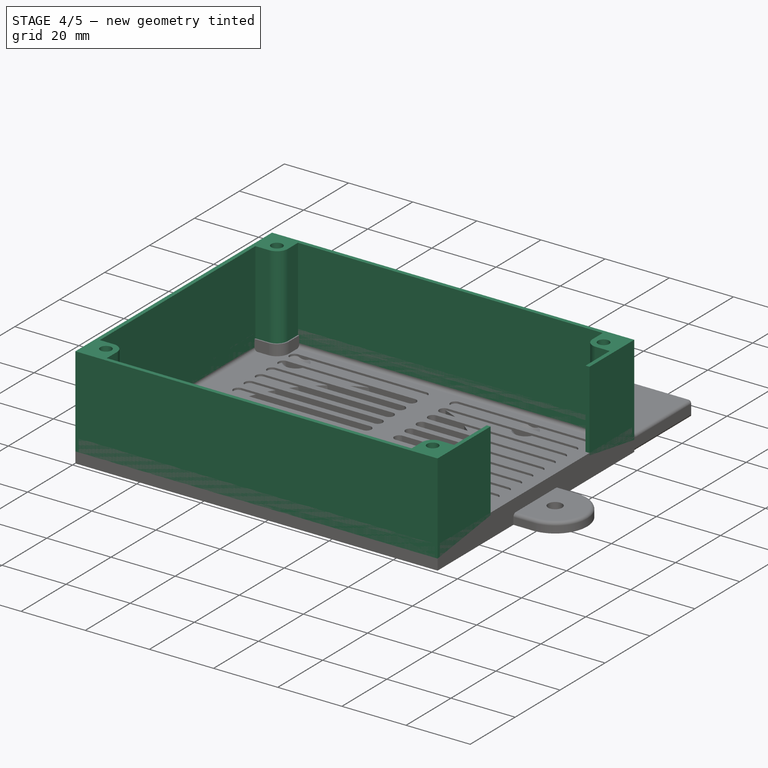
[diagram: stage 4 of 5 — iso view after this stage's code; geometry added in this stage tinted green]
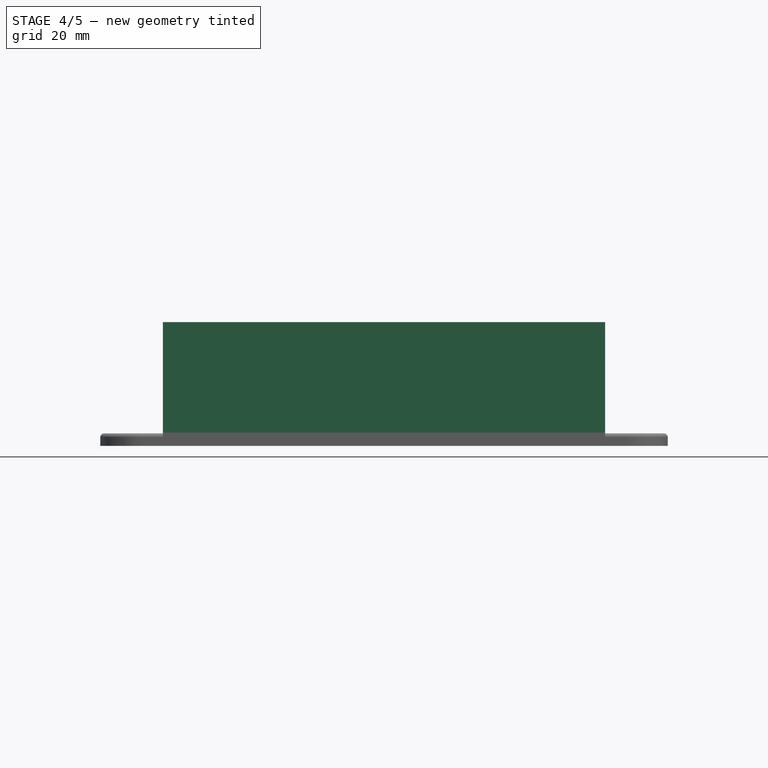
[diagram: stage 4 of 5 — front view after this stage's code; geometry added in this stage tinted green]
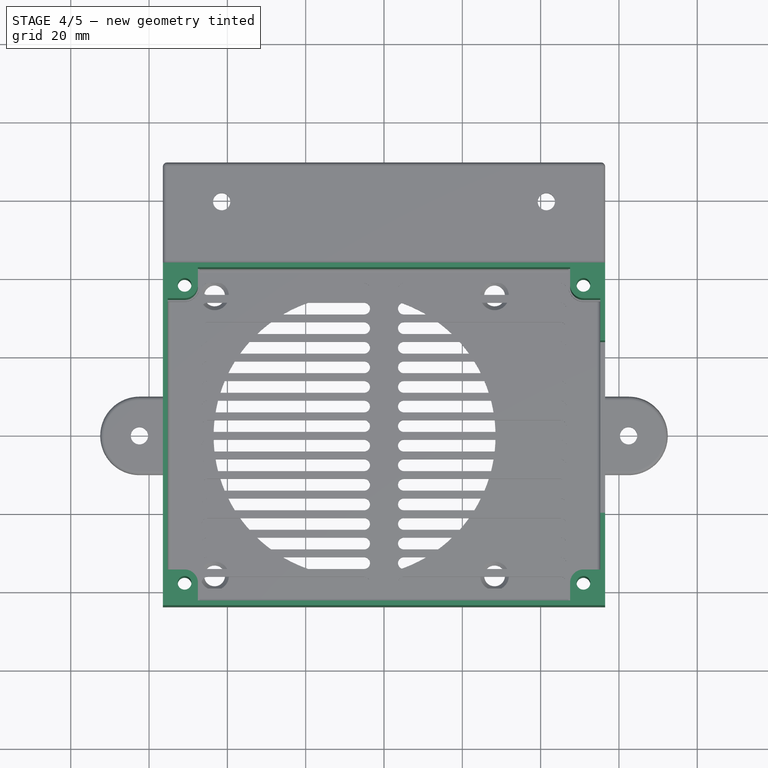
[diagram: stage 4 of 5 — top view after this stage's code; geometry added in this stage tinted green]
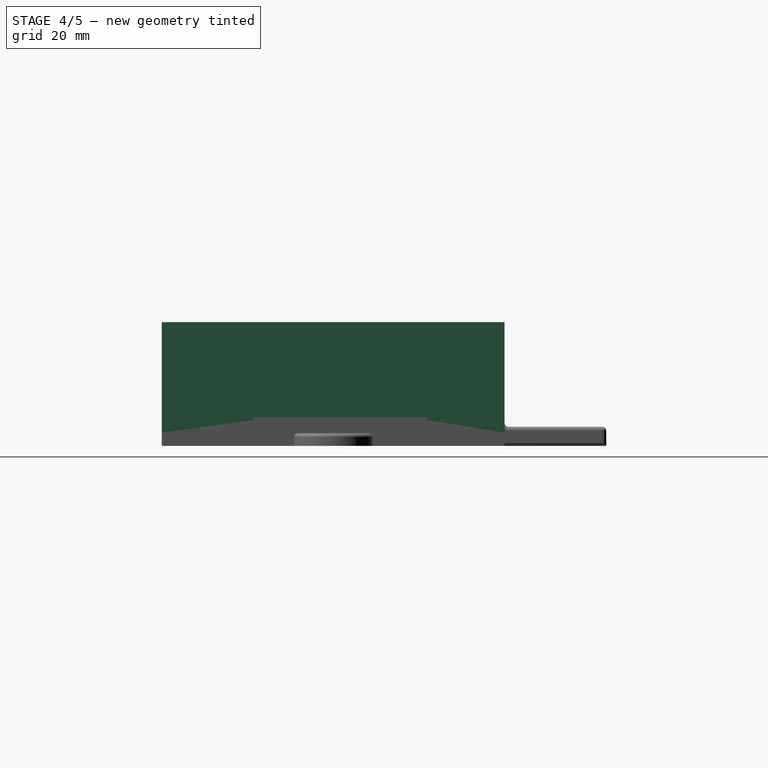
[diagram: stage 4 of 5 — right view after this stage's code; geometry added in this stage tinted green]
FEATURE [PartDesign::Pad] Pad006  label="CapWalls1_"
  BaseFeature = -> Chamfer
  Length = 1.8
  Length2 = 100
  Profile = -> Sketch007
  Type = 0
  expr: Length = Screws.M3HeadHeight - Top_.Length
FEATURE [Sketcher::SketchObject] Sketch008  label="DisplayCut"
  AttachmentOffset = pos=(0,1.6,56.455) rot=(0,0,1;0rad)
  MapMode = 5
  Placement = pos=(56.455,-1.22e-14,1.6) rot=(0.57735,0.57735,0.57735;2.0944rad)
  Support = -> [YZ_Plane002]
  expr: AttachmentOffset.Base.y = Top_.Length
  expr: Constraints.TotalHeight = CapWalls1_.Length + CapWalls2_.Length
  expr: AttachmentOffset.Base.z = Template.Constraints.TotalLong / 2
  expr: Constraints[5] = Template.Constraints.PCBShort
  sketch-geometry (9):
    g0: LineSegment [constr] StartX=-42.15 StartY=0 StartZ=0 EndX=42.15 EndY=0 EndZ=0
    g1: LineSegment [constr] StartX=42.15 StartY=0 StartZ=0 EndX=42.15 EndY=30 EndZ=0
    g2: LineSegment [constr] StartX=-42.15 StartY=30 StartZ=0 EndX=-42.15 EndY=0 EndZ=0
    g3: LineSegment StartX=-20.15 StartY=30 StartZ=0 EndX=23.85 EndY=30 EndZ=0
    g4: LineSegment StartX=-20.15 StartY=30 StartZ=0 EndX=-20.15 EndY=5 EndZ=0
    g5: LineSegment StartX=-20.15 StartY=5 StartZ=0 EndX=23.85 EndY=5 EndZ=0
    g6: LineSegment StartX=23.85 StartY=5 StartZ=0 EndX=23.85 EndY=30 EndZ=0
    g7: LineSegment [constr] StartX=-42.15 StartY=30 StartZ=0 EndX=-20.15 EndY=30 EndZ=0
    g8: LineSegment [constr] StartX=23.85 StartY=30 StartZ=0 EndX=42.15 EndY=30 EndZ=0
  constraints (25):
    c: Coincident(g0,g1)
    c: Coincident(g2,g0)
    c: Vertical(g1)
    c: Vertical(g2)
    c: PointOnObject(g0,g-1)
    c: DistanceX(g2,g1) = 84.3
    c: DistanceY(g2,g2) = 30  'TotalHeight'
    c: Symmetric(g0,g0,g-2)
    c: Horizontal(g3)
    c: DistanceX(g2,g3) = 22
    c: DistanceX(g3,g3) = 44
    c: Vertical(g4)
    c: Coincident(g4,g5)
    c: Horizontal(g5)
    c: Coincident(g5,g6)
    c: Vertical(g6)
    c: Coincident(g6,g3)
    c: Coincident(g3,g4)
    c: DistanceY(g5,g1) = 25
    c: Coincident(g7,g2)
    c: Coincident(g7,g3)
    c: Horizontal(g7)
    c: Coincident(g8,g3)
    c: Coincident(g8,g1)
    c: Horizontal(g8)
FEATURE [Sketcher::SketchObject] Sketch009  label="CapWalls2"
  AttachmentOffset = pos=(0,0,3.4) rot=(0,0,1;0rad)
  MapMode = 5
  Placement = pos=(0,0,3.4) rot=(0,0,1;0rad)
  Support = -> [XY_Plane002]
  expr: AttachmentOffset.Base.z = CapWalls1.AttachmentOffset.Base.z + CapWalls1_.Length
  expr: Constraints[16] = Screws.M3Radius
  expr: Constraints[12] = Template.Constraints.PCBLong
  expr: Constraints[139] = Template.Constraints.WallThickness
  expr: Constraints[138] = Template.Constraints.Tolerance
  expr: Constraints[19] = Template.Constraints.HoleDistanceShort
  expr: Constraints[85] = Top.Constraints.CapScrewChannelRadius
  expr: Constraints[18] = Template.Constraints.HoleDistanceLong
  expr: Constraints[17] = Template.Constraints.PCBShort
  sketch-geometry (52):
    g0: LineSegment [constr] StartX=-54.835 StartY=42.15 StartZ=0 EndX=54.835 EndY=42.15 EndZ=0
    g1: LineSegment [constr] StartX=54.835 StartY=42.15 StartZ=0 EndX=54.835 EndY=-42.15 EndZ=0
    g2: LineSegment [constr] StartX=54.835 StartY=-42.15 StartZ=0 EndX=-54.835 EndY=-42.15 EndZ=0
    g3: LineSegment [constr] StartX=-54.835 StartY=-42.15 StartZ=0 EndX=-54.835 EndY=42.15 EndZ=0
    g4: Circle CenterX=-50.925 CenterY=38.05 CenterZ=0 NormalX=0 NormalY=0 NormalZ=1 AngleXU=0 Radius=1.75
    g5: Circle CenterX=50.925 CenterY=38.05 CenterZ=0 NormalX=0 NormalY=0 NormalZ=1 AngleXU=0 Radius=1.75
    g6: Circle CenterX=-50.925 CenterY=-38.05 CenterZ=0 NormalX=0 NormalY=0 NormalZ=1 AngleXU=0 Radius=1.75
    g7: Circle CenterX=50.925 CenterY=-38.05 CenterZ=0 NormalX=0 NormalY=0 NormalZ=1 AngleXU=0 Radius=1.75
    g8: LineSegment [constr] StartX=-55.235 StartY=42.55 StartZ=0 EndX=-47.515 EndY=42.55 EndZ=0
    g9: LineSegment StartX=-47.515 StartY=42.55 StartZ=0 EndX=47.515 EndY=42.55 EndZ=0
    g10: LineSegment [constr] StartX=47.515 StartY=42.55 StartZ=0 EndX=55.235 EndY=42.55 EndZ=0
    g11: LineSegment [constr] StartX=-55.235 StartY=42.55 StartZ=0 EndX=-55.235 EndY=34.64 EndZ=0
    g12: LineSegment StartX=-55.235 StartY=34.64 StartZ=0 EndX=-55.235 EndY=-34.64 EndZ=0
    g13: LineSegment [constr] StartX=-55.235 StartY=-34.64 StartZ=0 EndX=-55.235 EndY=-42.55 EndZ=0
    g14: LineSegment [constr] StartX=-55.235 StartY=-42.55 StartZ=0 EndX=-47.515 EndY=-42.55 EndZ=0
    g15: LineSegment StartX=-47.515 StartY=-42.55 StartZ=0 EndX=47.515 EndY=-42.55 EndZ=0
    g16: LineSegment [constr] StartX=47.515 StartY=-42.55 StartZ=0 EndX=55.235 EndY=-42.55 EndZ=0
    g17: LineSegment [constr] StartX=55.235 StartY=-42.55 StartZ=0 EndX=55.235 EndY=-34.64 EndZ=0
    g18: LineSegment StartX=55.235 StartY=-34.64 StartZ=0 EndX=55.235 EndY=34.64 EndZ=0
    g19: LineSegment [constr] StartX=55.235 StartY=34.64 StartZ=0 EndX=55.235 EndY=42.55 EndZ=0
    g20: LineSegment StartX=-55.235 StartY=34.64 StartZ=0 EndX=-50.925 EndY=34.64 EndZ=0
    g21: LineSegment StartX=-47.515 StartY=42.55 StartZ=0 EndX=-47.515 EndY=38.05 EndZ=0
    g22: ArcOfCircle CenterX=-50.925 CenterY=38.05 CenterZ=0 NormalX=0 NormalY=0 NormalZ=1 AngleXU=0 Radius=3.41 StartAngle=4.71239 EndAngle=6.28319
    g23: LineSegment [constr] StartX=-50.925 StartY=38.05 StartZ=0 EndX=-50.925 EndY=34.64 EndZ=0
    g24: LineSegment [constr] StartX=-50.925 StartY=38.05 StartZ=0 EndX=-47.515 EndY=38.05 EndZ=0
    g25: LineSegment [constr] StartX=-54.835 StartY=42.15 StartZ=0 EndX=-54.835 EndY=42.55 EndZ=0
    g26: LineSegment [constr] StartX=-54.835 StartY=42.15 StartZ=0 EndX=-55.235 EndY=42.15 EndZ=0
    g27: LineSegment [constr] StartX=54.835 StartY=-42.15 StartZ=0 EndX=54.835 EndY=-42.55 EndZ=0
    g28: LineSegment [constr] StartX=54.835 StartY=-42.15 StartZ=0 EndX=55.235 EndY=-42.15 EndZ=0
    g29: LineSegment StartX=55.235 StartY=-34.64 StartZ=0 EndX=50.925 EndY=-34.64 EndZ=0
    g30: LineSegment StartX=47.515 StartY=-42.55 StartZ=0 EndX=47.515 EndY=-38.05 EndZ=0
    g31: ArcOfCircle CenterX=50.925 CenterY=-38.05 CenterZ=0 NormalX=0 NormalY=0 NormalZ=1 AngleXU=0 Radius=3.41 StartAngle=1.5708 EndAngle=3.14159
    g32: LineSegment [constr] StartX=50.925 StartY=-38.05 StartZ=0 EndX=50.925 EndY=-34.64 EndZ=0
    g33: LineSegment [constr] StartX=50.925 StartY=-38.05 StartZ=0 EndX=47.515 EndY=-38.05 EndZ=0
    g34: LineSegment StartX=47.515 StartY=42.55 StartZ=0 EndX=47.515 EndY=38.05 EndZ=0
    g35: LineSegment [constr] StartX=47.515 StartY=38.05 StartZ=0 EndX=50.925 EndY=38.05 EndZ=0
    g36: LineSegment StartX=55.235 StartY=34.64 StartZ=0 EndX=50.925 EndY=34.64 EndZ=0
    g37: LineSegment [constr] StartX=50.925 StartY=34.64 StartZ=0 EndX=50.925 EndY=38.05 EndZ=0
    g38: ArcOfCircle CenterX=50.925 CenterY=38.05 CenterZ=0 NormalX=0 NormalY=0 NormalZ=1 AngleXU=0 Radius=3.41 StartAngle=3.14159 EndAngle=4.71239
    g39: LineSegment StartX=-47.515 StartY=-42.55 StartZ=0 EndX=-47.515 EndY=-38.05 EndZ=0
    g40: LineSegment [constr] StartX=-47.515 StartY=-38.05 StartZ=0 EndX=-50.925 EndY=-38.05 EndZ=0
    g41: LineSegment StartX=-55.235 StartY=-34.64 StartZ=0 EndX=-50.925 EndY=-34.64 EndZ=0
    g42: LineSegment [constr] StartX=-50.925 StartY=-34.64 StartZ=0 EndX=-50.925 EndY=-38.05 EndZ=0
    g43: ArcOfCircle CenterX=-50.925 CenterY=-38.05 CenterZ=0 NormalX=0 NormalY=0 NormalZ=1 AngleXU=0 Radius=3.41 StartAngle=2e-16 EndAngle=1.5708
    g44: LineSegment StartX=-56.455 StartY=43.77 StartZ=0 EndX=56.455 EndY=43.77 EndZ=0
    g45: LineSegment StartX=56.455 StartY=43.77 StartZ=0 EndX=56.455 EndY=-43.77 EndZ=0
    g46: LineSegment StartX=56.455 StartY=-43.77 StartZ=0 EndX=-56.455 EndY=-43.77 EndZ=0
    g47: LineSegment StartX=-56.455 StartY=-43.77 StartZ=0 EndX=-56.455 EndY=43.77 EndZ=0
    g48: LineSegment [constr] StartX=-55.235 StartY=42.55 StartZ=0 EndX=-55.235 EndY=43.77 EndZ=0
    g49: LineSegment [constr] StartX=-55.235 StartY=42.55 StartZ=0 EndX=-56.455 EndY=42.55 EndZ=0
    g50: LineSegment [constr] StartX=55.235 StartY=-42.55 StartZ=0 EndX=56.455 EndY=-42.55 EndZ=0
    g51: LineSegment [constr] StartX=55.235 StartY=-42.55 StartZ=0 EndX=55.235 EndY=-43.77 EndZ=0
  constraints (140):
    c: Coincident(g0,g1)
    c: Coincident(g1,g2)
    c: Coincident(g2,g3)
    c: Coincident(g3,g0)
    c: Horizontal(g0)
    c: Horizontal(g2)
    c: Vertical(g1)
    c: Vertical(g3)
    c: Symmetric(g0,g1,g-1)
    c: Symmetric(g4,g5,g-2)
    c: Symmetric(g6,g7,g-2)
    c: Symmetric(g6,g4,g-1)
    c: DistanceX(g0,g0) = 109.67
    c: Equal(g4,g5)
    c: Equal(g5,g7)
    c: Equal(g7,g6)
    c: Radius(g4) = 1.75
    c: DistanceY(g3,g3) = 84.3
    c: DistanceX(g4,g5) = 101.85
    c: DistanceY(g6,g4) = 76.1
    c: Horizontal(g8)
    c: Coincident(g8,g9)
    c: Horizontal(g9)
    c: Coincident(g9,g10)
    c: Horizontal(g10)
    c: Coincident(g8,g11)
    c: Vertical(g11)
    c: Coincident(g11,g12)
    c: Vertical(g12)
    c: Coincident(g12,g13)
    c: Vertical(g13)
    c: Coincident(g13,g14)
    c: Horizontal(g14)
    c: Coincident(g14,g15)
    c: Horizontal(g15)
    c: Coincident(g15,g16)
    c: Horizontal(g16)
    c: Coincident(g16,g17)
    c: Vertical(g17)
    c: Coincident(g17,g18)
    c: Vertical(g18)
    c: Coincident(g18,g19)
    c: Coincident(g19,g10)
    c: Vertical(g19)
    c: Coincident(g20,g11)
    c: Horizontal(g20)
    c: Coincident(g21,g8)
    c: Vertical(g21)
    c: Coincident(g22,g4)
    c: Coincident(g22,g21)
    c: Coincident(g22,g20)
    c: Coincident(g23,g4)
    c: Coincident(g23,g20)
    c: Vertical(g23)
    c: Coincident(g24,g4)
    c: Coincident(g24,g21)
    c: Horizontal(g24)
    c: Coincident(g25,g0)
    c: PointOnObject(g25,g8)
    c: Vertical(g25)
    c: Coincident(g26,g0)
    c: PointOnObject(g26,g11)
    c: Horizontal(g26)
    c: Coincident(g27,g1)
    c: PointOnObject(g27,g16)
    c: Vertical(g27)
    c: Coincident(g28,g1)
    c: PointOnObject(g28,g17)
    c: Horizontal(g28)
    c: Equal(g28,g27)
    c: Equal(g27,g25)
    c: Equal(g25,g26)
    c: Coincident(g29,g17)
    c: Horizontal(g29)
    c: Coincident(g30,g15)
    c: Vertical(g30)
    c: Coincident(g31,g7)
    c: Coincident(g31,g29)
    c: Coincident(g31,g30)
    c: Coincident(g32,g7)
    c: Coincident(g32,g29)
    c: Vertical(g32)
    c: Coincident(g33,g7)
    c: Coincident(g33,g30)
    c: Horizontal(g33)
    c: Radius(g22) = 3.41
    c: Coincident(g34,g9)
    c: Vertical(g34)
    c: Coincident(g35,g34)
    c: Coincident(g35,g5)
    c: Horizontal(g35)
    c: Coincident(g36,g18)
    c: Horizontal(g36)
    c: Coincident(g37,g36)
    c: Coincident(g37,g5)
    c: Vertical(g37)
    c: Coincident(g38,g5)
    c: Coincident(g38,g34)
    c: Coincident(g38,g36)
    c: Coincident(g14,g39)
    c: Vertical(g39)
    c: Coincident(g39,g40)
    c: Coincident(g40,g6)
    c: Horizontal(g40)
    c: Coincident(g12,g41)
    c: Horizontal(g41)
    c: Coincident(g41,g42)
    c: Coincident(g42,g6)
    c: Vertical(g42)
    c: Coincident(g43,g6)
    c: Coincident(g43,g41)
    c: Coincident(g43,g39)
    c: Equal(g22,g38)
    c: Equal(g38,g31)
    c: Equal(g31,g43)
    c: Coincident(g44,g45)
    c: Coincident(g45,g46)
    c: Coincident(g46,g47)
    c: Coincident(g47,g44)
    c: Horizontal(g44)
    c: Horizontal(g46)
    c: Vertical(g45)
    c: Vertical(g47)
    c: Coincident(g48,g8)
    c: PointOnObject(g48,g44)
    c: Vertical(g48)
    c: Coincident(g49,g8)
    c: PointOnObject(g49,g47)
    c: Horizontal(g49)
    c: Coincident(g50,g16)
    c: PointOnObject(g50,g45)
    c: Horizontal(g50)
    c: Coincident(g51,g16)
    c: PointOnObject(g51,g46)
    c: Vertical(g51)
    c: Equal(g51,g50)
    c: Equal(g50,g48)
    c: Equal(g48,g49)
    c: DistanceX(g26,g26) = 0.4
    c: DistanceX(g49,g49) = 1.22
FEATURE [PartDesign::Pad] Pad007  label="CapWalls2_"
  BaseFeature = -> Pad006
  Length = 28.2
  Length2 = 100
  Profile = -> Sketch009
  Type = 0
  expr: Length = 30mm - CapWalls1_.Length
FEATURE [PartDesign::Pocket] Pocket  label="DisplayCut_"
  BaseFeature = -> Pad007
  Length = 1.22
  Length2 = 100
  Profile = -> Sketch008
  Type = 0
  expr: Length = Template.Constraints.WallThickness
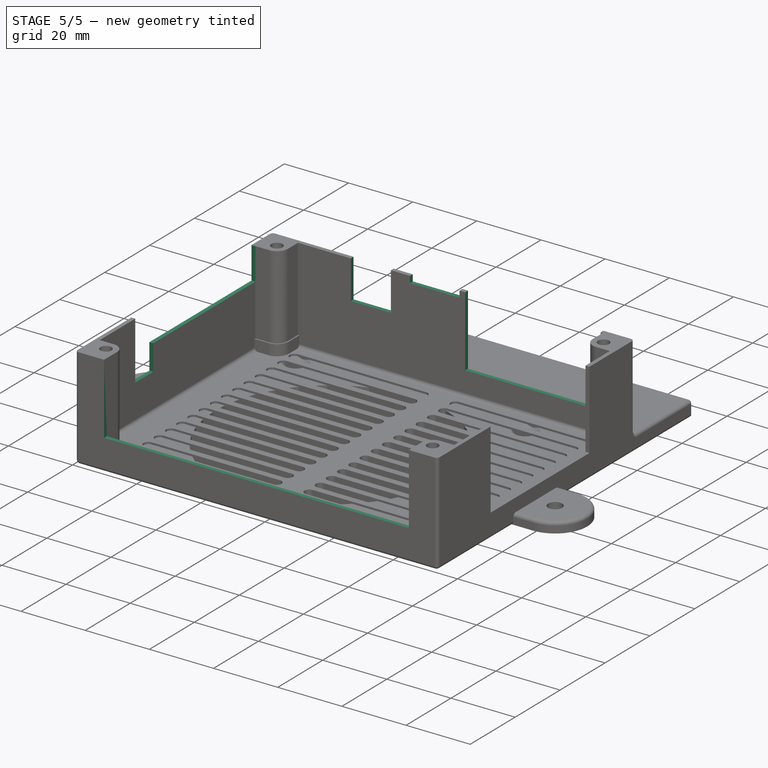
[diagram: stage 5 of 5 — iso view after this stage's code; geometry added in this stage tinted green]
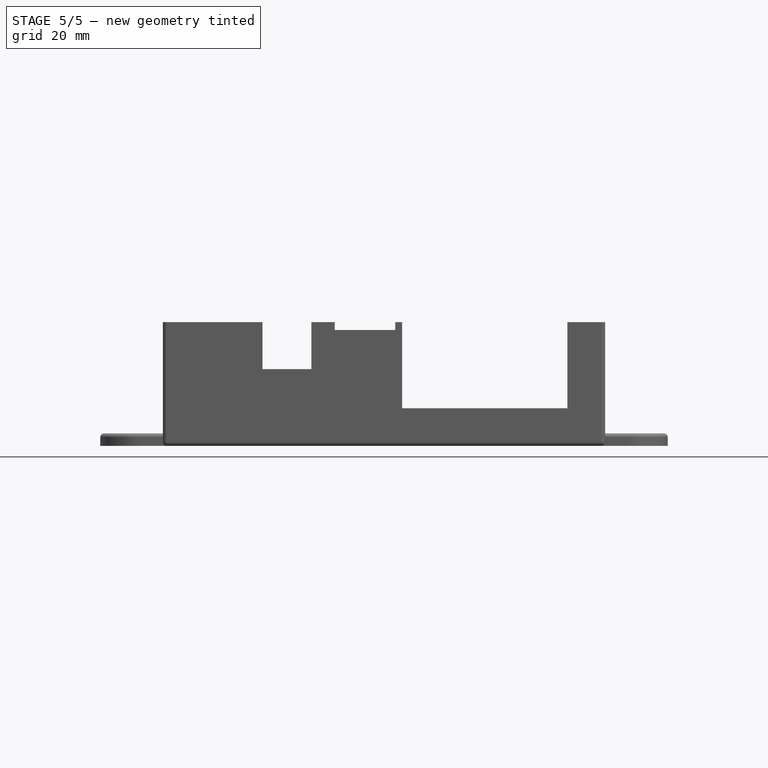
[diagram: stage 5 of 5 — front view after this stage's code; geometry added in this stage tinted green]
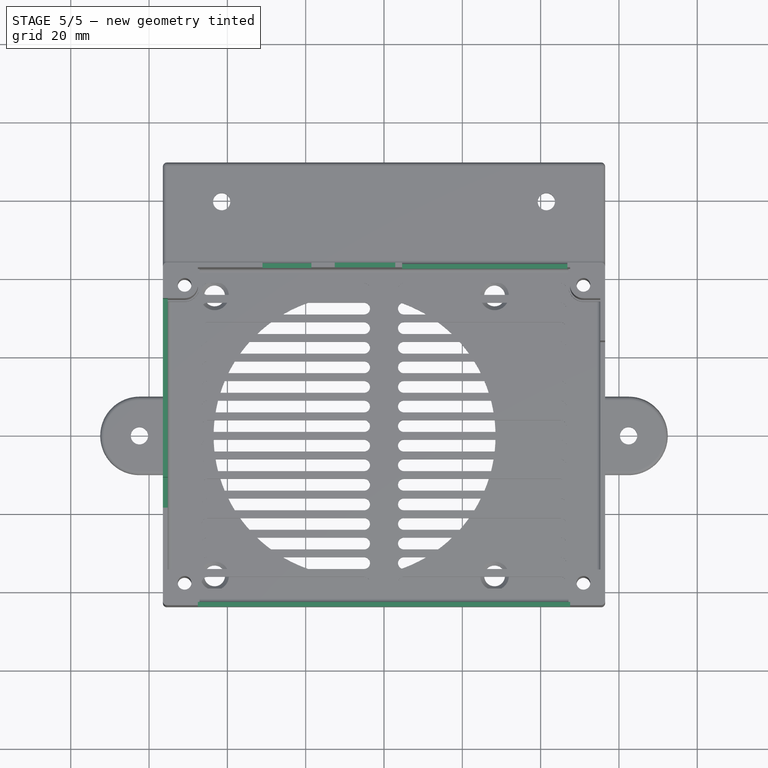
[diagram: stage 5 of 5 — top view after this stage's code; geometry added in this stage tinted green]
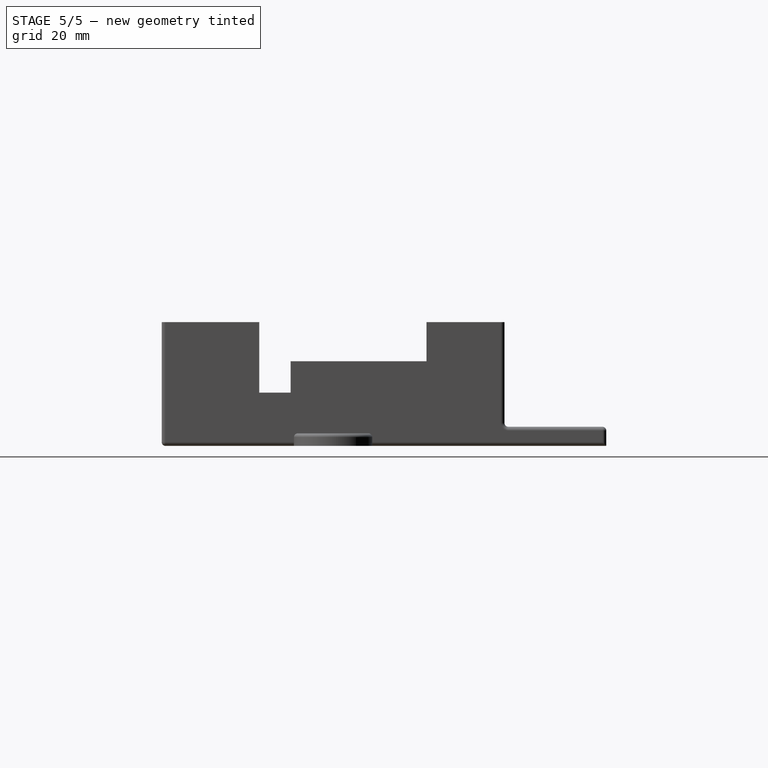
[diagram: stage 5 of 5 — right view after this stage's code; geometry added in this stage tinted green]
FEATURE [Sketcher::SketchObject] Sketch010  label="PowerCut"
  AttachmentOffset = pos=(0,1.6,-56.455) rot=(0,1,0;3.14159rad)
  MapMode = 5
  Placement = pos=(-56.455,1.29e-14,1.6) rot=(-0.57735,0.57735,0.57735;4.18879rad)
  Support = -> [YZ_Plane002]
  expr: AttachmentOffset.Base.y = Top_.Length
  expr: Constraints[6] = CapWalls1_.Length + CapWalls2_.Length
  expr: Constraints[5] = Template.Constraints.PCBShort
  expr: AttachmentOffset.Base.z = -Template.Constraints.TotalLong / 2
  sketch-geometry (11):
    g0: LineSegment [constr] StartX=-42.15 StartY=0 StartZ=0 EndX=42.15 EndY=0 EndZ=0
    g1: LineSegment [constr] StartX=42.15 StartY=0 StartZ=0 EndX=42.15 EndY=30 EndZ=0
    g2: LineSegment [constr] StartX=-42.15 StartY=30 StartZ=0 EndX=-42.15 EndY=0 EndZ=0
    g3: LineSegment StartX=-34.65 StartY=30 StartZ=0 EndX=18.85 EndY=30 EndZ=0
    g4: LineSegment StartX=-34.65 StartY=30 StartZ=0 EndX=-34.65 EndY=20 EndZ=0
    g5: LineSegment StartX=-34.65 StartY=20 StartZ=0 EndX=10.85 EndY=20 EndZ=0
    g6: LineSegment StartX=18.85 StartY=12 StartZ=0 EndX=18.85 EndY=30 EndZ=0
    g7: LineSegment [constr] StartX=-42.15 StartY=30 StartZ=0 EndX=-34.65 EndY=30 EndZ=0
    g8: LineSegment [constr] StartX=18.85 StartY=30 StartZ=0 EndX=42.15 EndY=30 EndZ=0
    g9: LineSegment StartX=18.85 StartY=12 StartZ=0 EndX=10.85 EndY=12 EndZ=0
    g10: LineSegment StartX=10.85 StartY=12 StartZ=0 EndX=10.85 EndY=20 EndZ=0
  constraints (31):
    c: Coincident(g0,g1)
    c: Coincident(g2,g0)
    c: Vertical(g1)
    c: Vertical(g2)
    c: PointOnObject(g0,g-1)
    c: DistanceX(g2,g1) = 84.3
    c: DistanceY(g2,g2) = 30
    c: Symmetric(g0,g0,g-2)
    c: Horizontal(g3)
    c: DistanceX(g2,g3) = 7.5
    c: DistanceX(g3,g3) = 53.5
    c: Vertical(g4)
    c: Coincident(g4,g5)
    c: Horizontal(g5)
    c: Vertical(g6)
    c: Coincident(g6,g3)
    c: Coincident(g3,g4)
    c: Coincident(g7,g2)
    c: Coincident(g7,g4)
    c: Horizontal(g7)
    c: Coincident(g8,g6)
    c: Coincident(g8,g1)
    c: Horizontal(g8)
    c: DistanceY(g4,g4) = 10
    c: Coincident(g6,g9)
    c: Horizontal(g9)
    c: Coincident(g9,g10)
    c: Coincident(g10,g5)
    c: Vertical(g10)
    c: DistanceX(g9,g9) = 8
    c: DistanceY(g6,g6) = 18
FEATURE [PartDesign::Pocket] Pocket001  label="PowerCut_"
  BaseFeature = -> Pocket
  Length = 1.22
  Length2 = 100
  Profile = -> Sketch010
  Type = 0
  expr: Length = Template.Constraints.WallThickness
FEATURE [Sketcher::SketchObject] Sketch011  label="StepperCut"
  AttachmentOffset = pos=(0,1.6,43.77) rot=(0,0,1;0rad)
  MapMode = 5
  Placement = pos=(0,-43.77,1.6) rot=(1,0,0;1.5708rad)
  Support = -> [XZ_Plane002]
  expr: Constraints[4] = DisplayCut.Constraints.TotalHeight
  expr: Constraints[1] = Top.Constraints.MaxCutLong
  expr: AttachmentOffset.Base.y = PowerCut.Placement.Base.z
  expr: AttachmentOffset.Base.z = Template.Constraints.TotalShort / 2
  sketch-geometry (7):
    g0: LineSegment [constr] StartX=-47.515 StartY=0 StartZ=0 EndX=47.515 EndY=0 EndZ=0
    g1: LineSegment StartX=47.515 StartY=30 StartZ=0 EndX=-47.515 EndY=30 EndZ=0
    g2: LineSegment [constr] StartX=-47.515 StartY=0 StartZ=0 EndX=-47.515 EndY=8 EndZ=0
    g3: LineSegment StartX=-47.515 StartY=8 StartZ=0 EndX=-47.515 EndY=30 EndZ=0
    g4: LineSegment [constr] StartX=47.515 StartY=0 StartZ=0 EndX=47.515 EndY=8 EndZ=0
    g5: LineSegment StartX=47.515 StartY=8 StartZ=0 EndX=47.515 EndY=30 EndZ=0
    g6: LineSegment StartX=-47.515 StartY=8 StartZ=0 EndX=47.515 EndY=8 EndZ=0
  constraints (19):
    c: Horizontal(g1)
    c: DistanceX(g0,g0) = 95.03
    c: Symmetric(g0,g0,g-2)
    c: PointOnObject(g-1,g0)
    c: DistanceY(g0,g1) = 30
    c: Coincident(g0,g2)
    c: Vertical(g2)
    c: Coincident(g2,g3)
    c: Coincident(g3,g1)
    c: Vertical(g3)
    c: Coincident(g0,g4)
    c: Vertical(g4)
    c: Coincident(g4,g5)
    c: Coincident(g5,g1)
    c: Vertical(g5)
    c: Coincident(g6,g2)
    c: Coincident(g6,g4)
    c: Horizontal(g6)
    c: DistanceY(g2,g2) = 8
FEATURE [PartDesign::Pocket] Pocket002  label="StepperCut_"
  BaseFeature = -> Pocket001
  Length = 1.22
  Length2 = 100
  Profile = -> Sketch011
  Type = 0
  expr: Length = Template.Constraints.WallThickness
FEATURE [Sketcher::SketchObject] Sketch012  label="USBCut"
  AttachmentOffset = pos=(0,1.6,-43.77) rot=(0,1,0;3.14159rad)
  MapMode = 5
  Placement = pos=(0,43.77,1.6) rot=(0,0.707107,0.707107;3.14159rad)
  Support = -> [XZ_Plane002]
  expr: Constraints[35] = DisplayCut.Constraints.TotalHeight
  expr: Constraints[0] = Top.Constraints.MaxCutLong
  expr: Constraints[16] = Template.Constraints.PCBLong
  expr: AttachmentOffset.Base.z = -Template.Constraints.TotalShort / 2
  expr: AttachmentOffset.Base.y = PowerCut.Placement.Base.z
  sketch-geometry (25):
    g0: LineSegment [constr] StartX=-47.515 StartY=0 StartZ=0 EndX=47.515 EndY=0 EndZ=0
    g1: LineSegment [constr] StartX=-47.515 StartY=0 StartZ=0 EndX=-47.515 EndY=30 EndZ=0
    g2: LineSegment [constr] StartX=47.515 StartY=0 StartZ=0 EndX=47.515 EndY=30 EndZ=0
    g3: LineSegment StartX=-46.835 StartY=30 StartZ=0 EndX=-4.635 EndY=30 EndZ=0
    g4: LineSegment StartX=-46.835 StartY=8 StartZ=0 EndX=-4.635 EndY=8 EndZ=0
    g5: LineSegment StartX=-4.635 StartY=8 StartZ=0 EndX=-4.635 EndY=30 EndZ=0
    g6: LineSegment [constr] StartX=-47.515 StartY=0 StartZ=0 EndX=-54.835 EndY=0 EndZ=0
    g7: LineSegment [constr] StartX=47.515 StartY=0 StartZ=0 EndX=54.835 EndY=0 EndZ=0
    g8: LineSegment [constr] StartX=-54.835 StartY=0 StartZ=0 EndX=-54.835 EndY=30 EndZ=0
    g9: LineSegment [constr] StartX=-54.835 StartY=30 StartZ=0 EndX=-47.515 EndY=30 EndZ=0
    g10: LineSegment [constr] StartX=54.835 StartY=0 StartZ=0 EndX=54.835 EndY=30 EndZ=0
    g11: LineSegment [constr] StartX=54.835 StartY=30 StartZ=0 EndX=47.515 EndY=30 EndZ=0
    g12: LineSegment [constr] StartX=-47.515 StartY=30 StartZ=0 EndX=-46.835 EndY=30 EndZ=0
    g13: LineSegment StartX=-46.835 StartY=8 StartZ=0 EndX=-46.835 EndY=30 EndZ=0
    g14: LineSegment [constr] StartX=-4.635 StartY=30 StartZ=0 EndX=-2.865 EndY=30 EndZ=0
    g15: LineSegment StartX=-2.865 StartY=30 StartZ=0 EndX=-2.865 EndY=28 EndZ=0
    g16: LineSegment StartX=-2.865 StartY=28 StartZ=0 EndX=12.575 EndY=28 EndZ=0
    g17: LineSegment StartX=12.575 StartY=28 StartZ=0 EndX=12.575 EndY=30 EndZ=0
    g18: LineSegment StartX=12.575 StartY=30 StartZ=0 EndX=-2.865 EndY=30 EndZ=0
    g19: LineSegment [constr] StartX=47.515 StartY=30 StartZ=0 EndX=31.035 EndY=30 EndZ=0
    g20: LineSegment StartX=31.035 StartY=30 StartZ=0 EndX=18.535 EndY=30 EndZ=0
    g21: LineSegment [constr] StartX=18.535 StartY=30 StartZ=0 EndX=12.575 EndY=30 EndZ=0
    g22: LineSegment StartX=18.535 StartY=30 StartZ=0 EndX=18.535 EndY=18 EndZ=0
    g23: LineSegment StartX=18.535 StartY=18 StartZ=0 EndX=31.035 EndY=18 EndZ=0
    g24: LineSegment StartX=31.035 StartY=18 StartZ=0 EndX=31.035 EndY=30 EndZ=0
  constraints (69):
    c: DistanceX(g0,g0) = 95.03
    c: Symmetric(g0,g0,g-2)
    c: PointOnObject(g-1,g0)
    c: Coincident(g0,g1)
    c: Vertical(g1)
    c: Coincident(g0,g2)
    c: Vertical(g2)
    c: Horizontal(g3)
    c: Horizontal(g4)
    c: Coincident(g4,g5)
    c: Vertical(g5)
    c: Coincident(g6,g0)
    c: Horizontal(g6)
    c: Coincident(g7,g0)
    c: Horizontal(g7)
    c: Equal(g7,g6)
    c: DistanceX(g6,g7) = 109.67
    c: Coincident(g6,g8)
    c: Vertical(g8)
    c: Coincident(g8,g9)
    c: Horizontal(g9)
    c: Coincident(g7,g10)
    c: Vertical(g10)
    c: Coincident(g10,g11)
    c: Horizontal(g11)
    c: Coincident(g1,g9)
    c: Coincident(g12,g1)
    c: Coincident(g12,g3)
    c: Horizontal(g12)
    c: Coincident(g13,g4)
    c: Coincident(g13,g3)
    c: Vertical(g13)
    c: DistanceX(g8,g3) = 8
    c: Coincident(g14,g3)
    c: Horizontal(g14)
    c: DistanceY(g8,g8) = 30
    c: Coincident(g14,g15)
    c: Vertical(g15)
    c: Coincident(g15,g16)
    c: Horizontal(g16)
    c: Coincident(g16,g17)
    c: Vertical(g17)
    c: Coincident(g17,g18)
    c: Coincident(g18,g15)
    c: Horizontal(g18)
    c: DistanceY(g15,g15) = 2
    c: Horizontal(g19)
    c: Coincident(g20,g19)
    c: Horizontal(g20)
    c: Coincident(g21,g20)
    c: Coincident(g21,g17)
    c: Horizontal(g21)
    c: Coincident(g3,g5)
    c: DistanceX(g19,g10) = 23.8
    c: DistanceX(g20,g10) = 36.3
    c: DistanceX(g17,g10) = 42.26
    c: DistanceX(g15,g10) = 57.7
    c: DistanceX(g8,g3) = 50.2
    c: Coincident(g20,g22)
    c: Vertical(g22)
    c: Coincident(g22,g23)
    c: Horizontal(g23)
    c: Coincident(g23,g24)
    c: Vertical(g24)
    c: DistanceY(g24,g24) = 12
    c: Coincident(g19,g24)
    c: DistanceY(g6,g4) = 8
    c: Coincident(g2,g11)
    c: Coincident(g2,g19)
FEATURE [PartDesign::Pocket] Pocket003  label="USBCut_"
  BaseFeature = -> Pocket002
  Length = 1.22
  Length2 = 100
  Profile = -> Sketch012
  Refine = true
  Type = 0
  expr: Length = Template.Constraints.WallThickness
FEATURE [PartDesign::Fillet] Fillet001
  Base = -> Pocket003 [Edge154,Edge113,Edge114,Edge106,Edge107,Edge115,Edge158,Edge105,Edge126,Edge124,Edge128,Edge138,Edge130,Edge136,Edge134,Edge132]
  BaseFeature = -> Pocket003
  Radius = 1
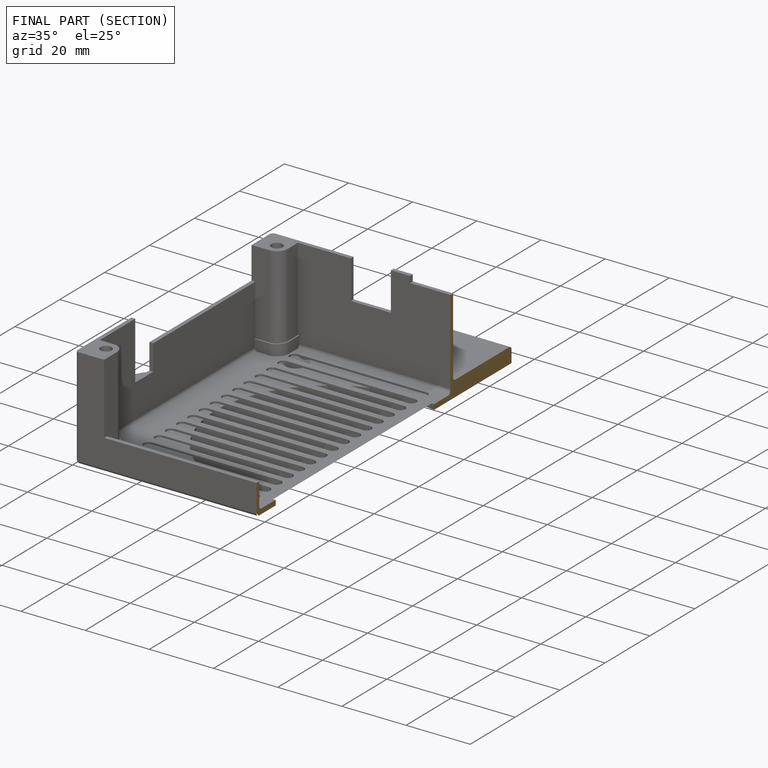
[diagram: finished part — half-section view (interior)]
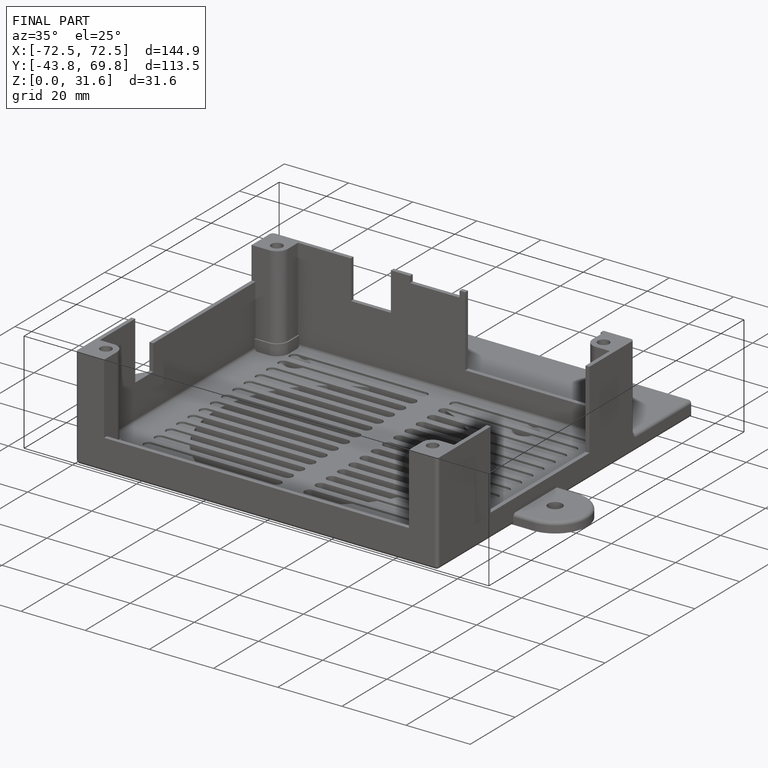
[diagram: finished part — iso view with bounding-box wireframe]
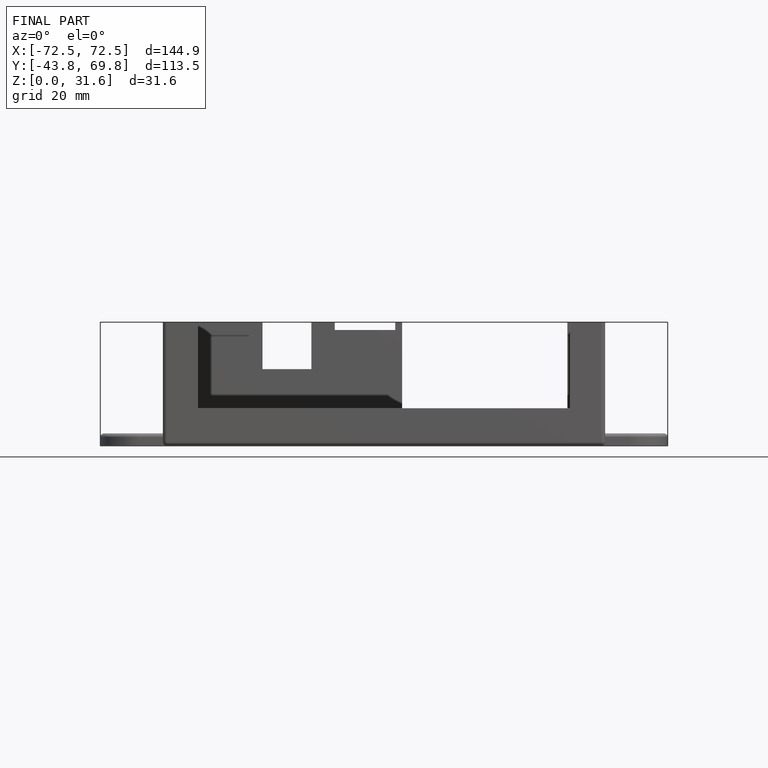
[diagram: finished part — front view with bounding-box wireframe]
